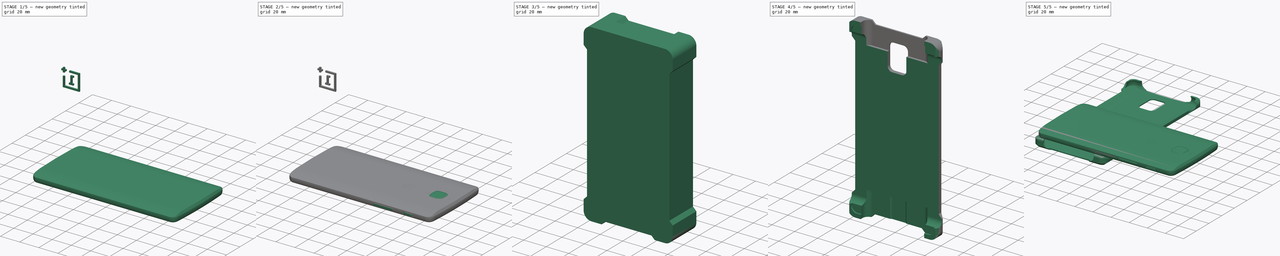
[diagram: build sequence overview — one tinted view per stage of 5, left to right]
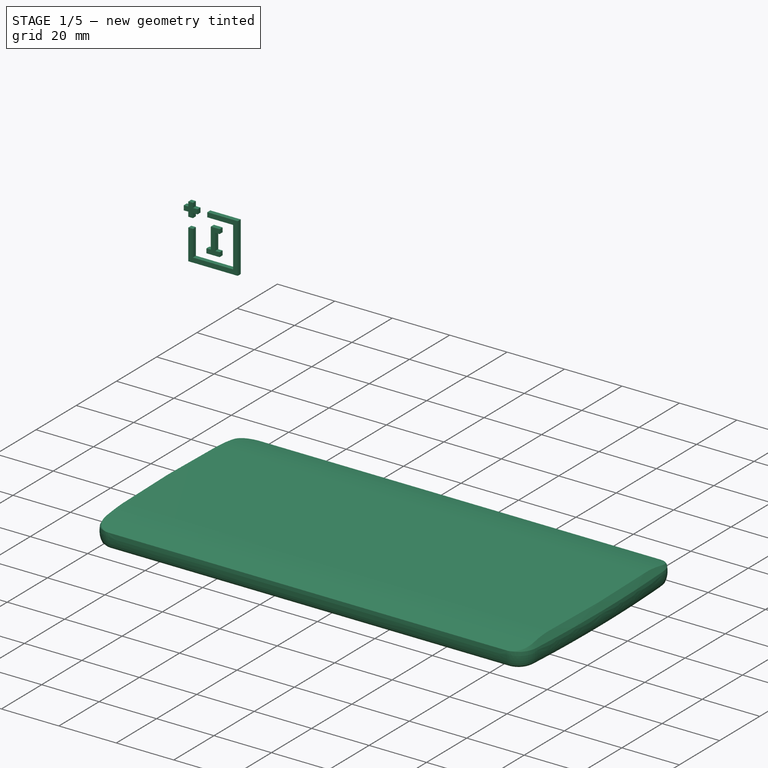
[diagram: stage 1 of 5 — iso view after this stage's code; geometry added in this stage tinted green]
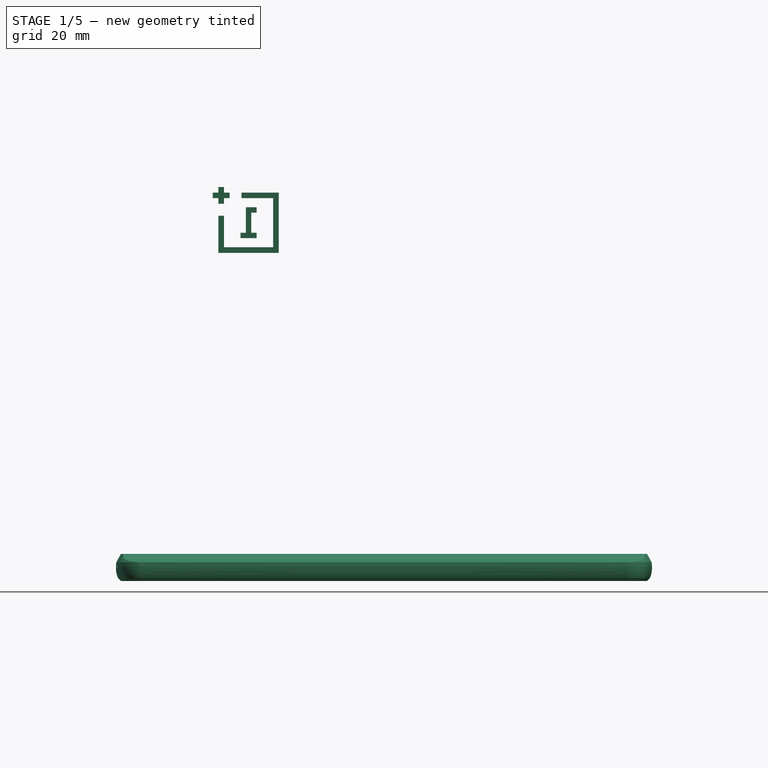
[diagram: stage 1 of 5 — front view after this stage's code; geometry added in this stage tinted green]
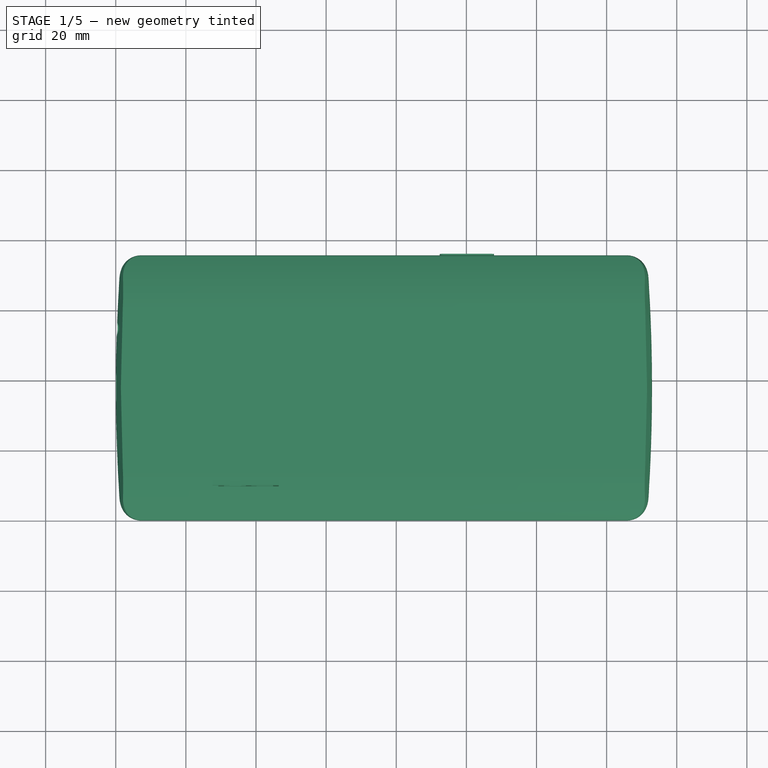
[diagram: stage 1 of 5 — top view after this stage's code; geometry added in this stage tinted green]
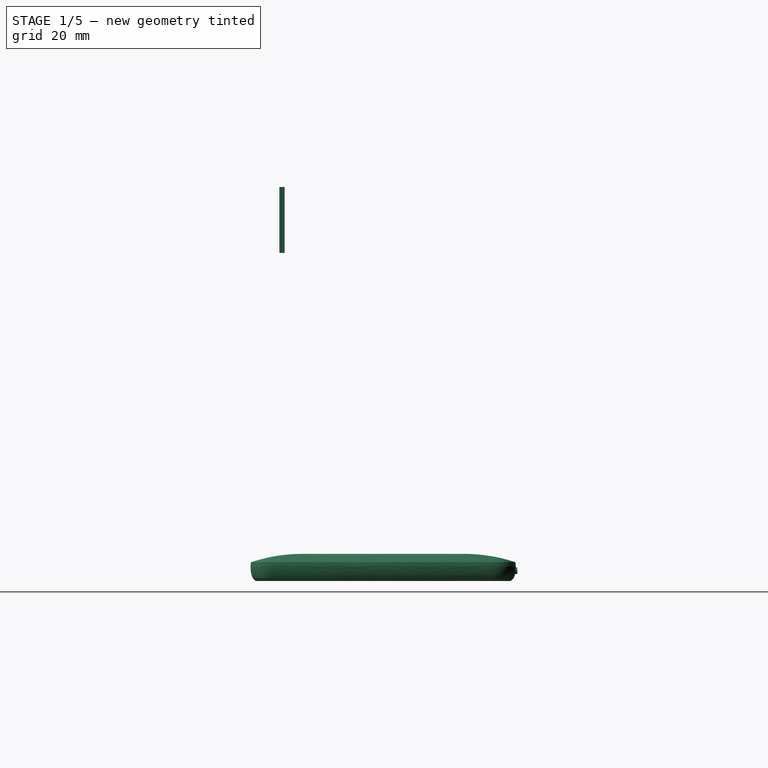
[diagram: stage 1 of 5 — right view after this stage's code; geometry added in this stage tinted green]
FCSTD DOCUMENT  (FreeCAD 0.17R13541 (Git))
Label: test108_op3
License: All rights reserved
LicenseURL: http://en.wikipedia.org/wiki/All_rights_reserved
objects: Sketcher::SketchObject×38, PartDesign::Plane×11, PartDesign::Pocket×11, Part::Extrusion×8, Part::Cut×7, PartDesign::Pad×6, PartDesign::SubtractivePipe×6, Part::FeaturePython×6, PartDesign::Chamfer×3, PartDesign::LinearPattern×2, Part::Feature×2, Spreadsheet::Sheet×1, PartDesign::Body×1, Part::MultiCommon×1, Part::Fillet×1, Part::Chamfer×1
note: 127 computed .brp shape members not serialized (recipe doc carries the construction recipe); baked Part::Feature solids carry a one-line shape summary decoded from their .brp

FEATURE [Sketcher::SketchObject] Sketch036
  Placement = pos=(0,0,0) rot=(0.57735,0.57735,0.57735;2.0944rad)
  sketch-geometry (12):
    g0: LineSegment StartX=0 StartY=0 StartZ=0 EndX=75.75 EndY=0 EndZ=0
    g1: LineSegment [constr] StartX=75.75 StartY=0 StartZ=0 EndX=75.75 EndY=7.75 EndZ=0
    g2: LineSegment [constr] StartX=0 StartY=7.75 StartZ=0 EndX=0 EndY=0 EndZ=0
    g3: LineSegment StartX=0 StartY=0 StartZ=0 EndX=5.8e-11 EndY=5.3 EndZ=0
    g4: LineSegment StartX=75.75 StartY=0 StartZ=0 EndX=75.75 EndY=5.3 EndZ=0
    g5: LineSegment [constr] StartX=5.8e-11 StartY=5.3 StartZ=0 EndX=75.75 EndY=5.3 EndZ=0
    g6: LineSegment [constr] StartX=0 StartY=7.75 StartZ=0 EndX=37.875 EndY=7.75 EndZ=0
    g7: LineSegment [constr] StartX=37.875 StartY=7.75 StartZ=0 EndX=75.75 EndY=7.75 EndZ=0
    g8: ArcOfCircle CenterX=14.7985 CenterY=-38.1682 CenterZ=0 NormalX=0 NormalY=0 NormalZ=1 AngleXU=0 Radius=45.9182 StartAngle=1.5708 EndAngle=1.89893
    g9: LineSegment StartX=14.7986 StartY=7.75 StartZ=0 EndX=37.875 EndY=7.75 EndZ=0
    g10: LineSegment StartX=37.875 StartY=7.75 StartZ=0 EndX=60.9514 EndY=7.75 EndZ=0
    g11: ArcOfCircle CenterX=60.9514 CenterY=-38.1684 CenterZ=0 NormalX=0 NormalY=0 NormalZ=1 AngleXU=0 Radius=45.9184 StartAngle=1.24266 EndAngle=1.5708
  constraints (34):
    c: Coincident(g0,g1)
    c: Coincident(g2,g0)
    c: Horizontal(g0)
    c: Vertical(g1)
    c: Vertical(g2)
    c: Coincident(g0,g-1)
    c: DistanceY(g1,g1) = 7.75
    c: Coincident(g3,g-1)
    c: PointOnObject(g3,g2)
    c: Coincident(g4,g0)
    c: PointOnObject(g4,g1)
    c: Distance(g3,g-1) = 5.3
    c: Coincident(g5,g3)
    c: Coincident(g5,g4)
    c: Horizontal(g5)
    c: DistanceX(g0,g0) = 75.75
    c: Coincident(g6,g2)
    c: Coincident(g7,g6)
    c: Coincident(g7,g1)
    c: Equal(g6,g7)
    c: Horizontal(g6)
    c: Coincident(g8,g3)
    c: Coincident(g9,g8)
    c: Coincident(g9,g6)
    c: Horizontal(g7)
    c: Tangent(g8,g9)
    c: Distance(g3,g8) = 15
    c: Horizontal(g9)
    c: Coincident(g10,g6)
    c: Horizontal(g10)
    c: Equal(g10,g9)
    c: Coincident(g11,g4)
    c: Coincident(g11,g10)
    c: Tangent(g11,g10)
FEATURE [Sketcher::SketchObject] Sketch038
  MapMode = 5
  Placement = pos=(0,0,0) rot=(0.57735,0.57735,-0.57735;2.0944rad)
  sketch-geometry (8):
    g0: LineSegment StartX=-3.5 StartY=0 StartZ=0 EndX=-7.75 EndY=0.74939 EndZ=0
    g1: LineSegment [constr] StartX=-7.75 StartY=0 StartZ=0 EndX=-6.69236 EndY=0 EndZ=0
    g2: LineSegment StartX=-7.75 StartY=0 StartZ=0 EndX=-7.75 EndY=0.74939 EndZ=0
    g3: LineSegment StartX=-7.75 StartY=0 StartZ=0 EndX=-3.5 EndY=0 EndZ=0
    g4: LineSegment StartX=-3.5 StartY=153 StartZ=0 EndX=-7.75 EndY=152.251 EndZ=0
    g5: LineSegment StartX=-7.75 StartY=152.251 StartZ=0 EndX=-7.75 EndY=153 EndZ=0
    g6: LineSegment [constr] StartX=-6.69236 StartY=153 StartZ=0 EndX=-7.75 EndY=153 EndZ=0
    g7: LineSegment StartX=-3.5 StartY=153 StartZ=0 EndX=-7.75 EndY=153 EndZ=0
  constraints (10):
    c: Coincident(g2,g1)
    c: Coincident(g2,g0)
    c: Vertical(g2)
    c: Coincident(g3,g1)
    c: Coincident(g3,g0)
    c: Coincident(g4,g5)
    c: Coincident(g5,g6)
    c: Vertical(g5)
    c: Coincident(g7,g4)
    c: Coincident(g7,g5)
FEATURE [Sketcher::SketchObject] Sketch039
  MapMode = 5
  Placement = pos=(0,0,0) rot=(0.707107,0.707107,0;3.14159rad)
  expr: Constraints[10] = Spreadsheet.Width
  expr: Constraints[9] = Spreadsheet.Length
  sketch-geometry (4):
    g0: LineSegment StartX=0 StartY=0 StartZ=0 EndX=75.75 EndY=0 EndZ=0
    g1: LineSegment StartX=75.75 StartY=0 StartZ=0 EndX=75.75 EndY=153 EndZ=0
    g2: LineSegment StartX=75.75 StartY=153 StartZ=0 EndX=0 EndY=153 EndZ=0
    g3: LineSegment StartX=0 StartY=153 StartZ=0 EndX=0 EndY=0 EndZ=0
  constraints (11):
    c: Coincident(g0,g1)
    c: Coincident(g1,g2)
    c: Coincident(g2,g3)
    c: Coincident(g3,g0)
    c: Horizontal(g0)
    c: Horizontal(g2)
    c: Vertical(g1)
    c: Vertical(g3)
    c: Coincident(g0,g-1)
    c: DistanceY(g1,g1) = 153
    c: DistanceX(g2,g2) = 75.75
FEATURE [Sketcher::SketchObject] Sketch037
  ExternalGeometry = -> [Sketch039,Sketch036]
  MapMode = 5
  Placement = pos=(0,0,0) rot=(0.707107,0.707107,0;3.14159rad)
  expr: Constraints[0] = Spreadsheet.BaseRound
  sketch-geometry (8):
    g0: ArcOfCircle CenterX=7 CenterY=7 CenterZ=0 NormalX=0 NormalY=0 NormalZ=1 AngleXU=0 Radius=7 StartAngle=3.1416 EndAngle=4.71239
    g1: ArcOfCircle CenterX=68.75 CenterY=7 CenterZ=0 NormalX=0 NormalY=0 NormalZ=1 AngleXU=0 Radius=7 StartAngle=4.71239 EndAngle=6.28318
    g2: ArcOfCircle CenterX=68.75 CenterY=146 CenterZ=0 NormalX=0 NormalY=0 NormalZ=1 AngleXU=0 Radius=7 StartAngle=3.05977e-06 EndAngle=1.57079
    g3: ArcOfCircle CenterX=7 CenterY=146 CenterZ=0 NormalX=0 NormalY=0 NormalZ=1 AngleXU=0 Radius=7 StartAngle=1.5708 EndAngle=3.14159
    g4: LineSegment StartX=6.99998 StartY=153 StartZ=0 EndX=68.75 EndY=153 EndZ=0
    g5: LineSegment StartX=75.75 StartY=146 StartZ=0 EndX=75.75 EndY=6.99998 EndZ=0
    g6: LineSegment StartX=68.75 StartY=3.3e-11 StartZ=0 EndX=6.99998 EndY=3.3e-11 EndZ=0
    g7: LineSegment StartX=3.3e-11 StartY=6.99998 StartZ=0 EndX=3.3e-11 EndY=146 EndZ=0
  constraints (28):
    c: Radius(g0) = 7
    c: PointOnObject(g0,g-1)
    c: PointOnObject(g0,g-2)
    c: PointOnObject(g2,g-5)
    c: PointOnObject(g3,g-6)
    c: Coincident(g4,g3)
    c: Coincident(g4,g2)
    c: Coincident(g5,g2)
    c: Coincident(g5,g1)
    c: Coincident(g6,g1)
    c: Coincident(g6,g0)
    c: Tangent(g6,g0)
    c: Coincident(g7,g0)
    c: Coincident(g7,g3)
    c: Tangent(g6,g1)
    c: Tangent(g5,g2)
    c: Tangent(g4,g3)
    c: Tangent(g7,g0)
    c: Horizontal(g6)
    c: Horizontal(g4)
    c: Vertical(g7)
    c: Vertical(g5)
    c: Equal(g1,g0)
    c: Equal(g3,g2)
    c: Equal(g3,g0)
    c: Tangent(g2,g4)
    c: Tangent(g3,g7)
    c: Tangent(g1,g5)
FEATURE [PartDesign::Plane] DatumPlane003
  MapMode = 2
  Placement = pos=(0,0,0) rot=(0.707107,0.707107,0;3.14159rad)
  Support = -> [Sketch039]
FEATURE [PartDesign::Plane] DatumPlane004
  MapMode = 2
  Placement = pos=(0,0,0) rot=(0.57735,-0.57735,-0.57735;2.0944rad)
  Support = -> [Sketch036]
FEATURE [PartDesign::Plane] DatumPlane005
  MapMode = 45
  Placement = pos=(3.3e-11,37.875,0) rot=(0,0.707107,0.707107;3.14159rad)
  Support = -> [Sketch037]
FEATURE [Sketcher::SketchObject] Sketch040
  ExternalGeometry = -> [Sketch036]
  MapMode = 5
  Placement = pos=(3.3e-11,37.875,0) rot=(0,0.707107,0.707107;3.14159rad)
  Support = -> [DatumPlane005]
  sketch-geometry (35):
    g0: LineSegment [constr] StartX=0 StartY=1.5 StartZ=0 EndX=0 EndY=0 EndZ=0
    g1: LineSegment [constr] StartX=0 StartY=0 StartZ=0 EndX=-1.5 EndY=0 EndZ=0
    g2: LineSegment [constr] StartX=0 StartY=1.5 StartZ=0 EndX=-1.5 EndY=0 EndZ=0
    g3-g6: Circle [constr] x4 (B-spline internal-alignment scaffolding for g7; pole/knot coordinates omitted)
    g7: BSplineCurve [constr] PolesCount=4 KnotsCount=2 Degree=3 IsPeriodic=0
    g8: GeomPoint [constr] X=-1.09685 Y=7.75 Z=0
    g9: GeomPoint [constr] X=-0.692588 Y=0.807412 Z=0
    g10: LineSegment [constr] StartX=-1.5 StartY=0 StartZ=0 EndX=-3.65347 EndY=0 EndZ=0
    g11: LineSegment [constr] StartX=-3.65347 StartY=0 StartZ=0 EndX=-3.65347 EndY=7.75 EndZ=0
    g12: LineSegment [constr] StartX=-3.65347 StartY=7.75 StartZ=0 EndX=-1.09685 EndY=7.75 EndZ=0
    g13: LineSegment StartX=3.70023 StartY=-1.29107 StartZ=0 EndX=3.70023 EndY=8.64985 EndZ=0
    g14: LineSegment [constr] StartX=-1.09685 StartY=7.75 StartZ=0 EndX=-1.09685 EndY=8.64985 EndZ=0
    g15: LineSegment StartX=-1.09685 StartY=8.64985 StartZ=0 EndX=3.70023 EndY=8.64985 EndZ=0
    g16: LineSegment StartX=-1.7353 StartY=-1.29107 StartZ=0 EndX=3.70023 EndY=-1.29107 EndZ=0
    g17: LineSegment StartX=-0.692588 StartY=0.807412 StartZ=0 EndX=-1.05094 EndY=0.449059 EndZ=0
    g18: LineSegment StartX=-1.05094 StartY=0.449059 StartZ=0 EndX=-1.13767 EndY=0.449059 EndZ=0
    g19: LineSegment StartX=-1.13767 StartY=0.449059 StartZ=0 EndX=-1.13767 EndY=0.362329 EndZ=0
    g20: LineSegment StartX=-1.13767 StartY=0.362329 StartZ=0 EndX=-1.31031 EndY=0.189687 EndZ=0
    g21: LineSegment StartX=-1.31031 StartY=0.189687 StartZ=0 EndX=-1.33362 EndY=0.189687 EndZ=0
    g22: LineSegment StartX=-1.33362 StartY=0.189687 StartZ=0 EndX=-1.33362 EndY=0.166384 EndZ=0
    g23: ArcOfCircle CenterX=-1.7353 CenterY=0.568071 CenterZ=0 NormalX=0 NormalY=0 NormalZ=1 AngleXU=0 Radius=0.568071 StartAngle=4.71239 EndAngle=5.49779
    g24: LineSegment StartX=-1.7353 StartY=0 StartZ=0 EndX=-1.7353 EndY=-1.29107 EndZ=0
    g25-g28: Circle [constr] x4 (B-spline internal-alignment scaffolding for g29; pole/knot coordinates omitted)
    g29: BSplineCurve PolesCount=4 KnotsCount=2 Degree=3 IsPeriodic=0
    g30: GeomPoint [constr] X=-0.692588 Y=0.807412 Z=0
    g31: GeomPoint [constr] X=-0.177275 Y=5.40587 Z=0
    g32: LineSegment StartX=-1.09685 StartY=8.64985 StartZ=0 EndX=-1.46249 EndY=8.64985 EndZ=0
    g33: LineSegment StartX=-1.46249 StartY=8.64985 StartZ=0 EndX=-1.46249 EndY=7.75 EndZ=0
    g34: LineSegment StartX=-0.177275 StartY=5.40587 StartZ=0 EndX=-1.46249 EndY=7.75 EndZ=0
  constraints (66):
    c: Distance(g0) = 1.5
    c: PointOnObject(g0,g-2)
    c: Horizontal(g1)
    c: Equal(g1,g0)
    c: Coincident(g2,g1)
    c: Coincident(g1,g0)
    c: Radius(g3) = 0.4
    c: PointOnObject(g6,g2)
    c: InternalAlignment(g3-g6 -> g7) x4
    c: InternalAlignment(g8,g7)
    c: InternalAlignment(g9,g7)
    c: Coincident(g1,g10)
    c: Horizontal(g10)
    c: Coincident(g10,g11)
    c: Vertical(g11)
    c: Coincident(g11,g12)
    c: Horizontal(g12)
    c: Coincident(g2,g0)
    c: PointOnObject(g0,g-2)
    c: Coincident(g0,g-1)
    c: Distance(g11) = 7.75
    c: Coincident(g3,g12)
    c: Vertical(g13)
    c: Coincident(g14,g3)
    c: Vertical(g14)
    c: Coincident(g14,g15)
    c: Coincident(g15,g13)
    c: Horizontal(g15)
    c: Coincident(g16,g13)
    c: Horizontal(g16)
    c: Coincident(g17,g6)
    c: PointOnObject(g17,g2)
    c: Coincident(g17,g18)
    c: Horizontal(g18)
    c: Coincident(g18,g19)
    c: PointOnObject(g19,g2)
    c: Vertical(g19)
    c: Coincident(g19,g20)
    c: PointOnObject(g20,g2)
    c: Coincident(g20,g21)
    c: Horizontal(g21)
    c: Coincident(g21,g22)
    c: PointOnObject(g22,g2)
    c: Vertical(g22)
    c: Coincident(g23,g22)
    c: PointOnObject(g23,g10)
    c: Coincident(g24,g23)
    c: Vertical(g24)
    c: Coincident(g16,g24)
    c: Tangent(g10,g23)
    c: Tangent(g2,g23)
    c: Coincident(g25,g6)
    c: Radius(g25) = 0.4
    c: Equal(g25,g26)
    c: Equal(g25,g27)
    c: Equal(g25,g28)
    c: InternalAlignment(g25-g28 -> g29) x4
    c: InternalAlignment(g30,g29)
    c: InternalAlignment(g31,g29)
    c: Coincident(g32,g14)
    c: Horizontal(g32)
    c: Coincident(g33,g32)
    c: PointOnObject(g33,g12)
    c: Vertical(g33)
    c: Coincident(g34,g28)
    c: Coincident(g34,g33)
FEATURE [Sketcher::SketchObject] Sketch
  ExternalGeometry = -> [Sketch037]
  MapMode = 5
  Placement = pos=(0,0,0) rot=(0.707107,0.707107,0;3.14159rad)
  Support = -> [DatumPlane003]
  expr: Constraints[137] = Spreadsheet.Length1
  expr: Constraints[138] = Spreadsheet.Length2
  expr: Constraints[106] = Spreadsheet.Length1
  expr: Constraints[107] = Spreadsheet.Length2
  expr: Constraints[67] = Spreadsheet.Length1
  expr: Constraints[51] = Spreadsheet.Length2
  expr: Constraints[122] = Spreadsheet.SmallRound
  expr: Constraints[17] = Spreadsheet.SmallRound
  expr: Constraints[68] = Spreadsheet.Length2
  expr: Constraints[89] = Spreadsheet.SmallRound
  expr: Constraints[50] = Spreadsheet.Length1
  expr: Constraints[36] = Spreadsheet.SmallRound
  sketch-geometry (68):
    g0: ArcOfCircle [constr] CenterX=7 CenterY=7 CenterZ=0 NormalX=0 NormalY=0 NormalZ=1 AngleXU=0 Radius=6.60217 StartAngle=3.1416 EndAngle=4.68677
    g1: GeomPoint X=37.875 Y=3.3e-11 Z=0
    g2: Circle [constr] CenterX=6.83087 CenterY=0.4 CenterZ=0 NormalX=0 NormalY=0 NormalZ=1 AngleXU=0 Radius=3
    g3: Circle [constr] CenterX=22.4375 CenterY=3.3e-11 CenterZ=0 NormalX=0 NormalY=0 NormalZ=1 AngleXU=0 Radius=3
    g4: Circle [constr] CenterX=37.875 CenterY=3.3e-11 CenterZ=0 NormalX=0 NormalY=0 NormalZ=1 AngleXU=0 Radius=3
    g5: BSplineCurve PolesCount=3 KnotsCount=2 Degree=2 IsPeriodic=0
    g6: GeomPoint [constr] X=6.83087 Y=0.4 Z=0
    g7: GeomPoint [constr] X=37.875 Y=3.3e-11 Z=0
    g8: LineSegment [constr] StartX=3.3e-11 StartY=6.99998 StartZ=0 EndX=7 EndY=7 EndZ=0
    g9: LineSegment [constr] StartX=6.83087 StartY=0.4 StartZ=0 EndX=22.4375 EndY=3.3e-11 EndZ=0
    g10: Circle [constr] CenterX=37.875 CenterY=3.3e-11 CenterZ=0 NormalX=0 NormalY=0 NormalZ=1 AngleXU=0 Radius=2
    g11: Circle [constr] CenterX=53.3125 CenterY=3.3e-11 CenterZ=0 NormalX=0 NormalY=0 NormalZ=1 AngleXU=0 Radius=2
    g12: Circle [constr] CenterX=68.9191 CenterY=0.4 CenterZ=0 NormalX=0 NormalY=0 NormalZ=1 AngleXU=0 Radius=2
    g13: BSplineCurve PolesCount=3 KnotsCount=2 Degree=2 IsPeriodic=0
    g14: GeomPoint [constr] X=37.875 Y=3.3e-11 Z=0
    g15: GeomPoint [constr] X=68.9191 Y=0.4 Z=0
    g16: ArcOfCircle [constr] CenterX=68.75 CenterY=7 CenterZ=0 NormalX=0 NormalY=0 NormalZ=1 AngleXU=0 Radius=6.60217 StartAngle=4.73801 EndAngle=6.28318
    g17: LineSegment [constr] StartX=68.75 StartY=7 StartZ=0 EndX=75.75 EndY=6.99998 EndZ=0
    g18: LineSegment [constr] StartX=68.9191 StartY=0.4 StartZ=0 EndX=53.3125 EndY=3.3e-11 EndZ=0
    g19-g22: Circle [constr] x4 (B-spline internal-alignment scaffolding for g23; pole/knot coordinates omitted)
    g23: BSplineCurve PolesCount=4 KnotsCount=2 Degree=3 IsPeriodic=0
    g24: GeomPoint [constr] X=6.83087 Y=0.4 Z=0
    g25: GeomPoint [constr] X=3.3e-11 Y=6.99998 Z=0
    g26-g29: Circle [constr] x4 (B-spline internal-alignment scaffolding for g30; pole/knot coordinates omitted)
    g30: BSplineCurve PolesCount=4 KnotsCount=2 Degree=3 IsPeriodic=0
    g31: GeomPoint [constr] X=68.9191 Y=0.4 Z=0
    g32: GeomPoint [constr] X=75.75 Y=6.99998 Z=0
    g33: GeomPoint X=75.75 Y=0 Z=0
    g34: LineSegment StartX=3.3e-11 StartY=6.99998 StartZ=0 EndX=3.3e-11 EndY=146 EndZ=0
    g35: LineSegment StartX=75.75 StartY=6.99998 StartZ=0 EndX=75.75 EndY=146 EndZ=0
    g36: ArcOfCircle [constr] CenterX=7 CenterY=146 CenterZ=0 NormalX=0 NormalY=0 NormalZ=1 AngleXU=0 Radius=6.60217 StartAngle=1.59642 EndAngle=3.14159
    g37: ArcOfCircle [constr] CenterX=68.75 CenterY=146 CenterZ=0 NormalX=0 NormalY=0 NormalZ=1 AngleXU=0 Radius=6.60217 StartAngle=3.05977e-06 EndAngle=1.54518
    g38: Circle [constr] CenterX=37.875 CenterY=153 CenterZ=0 NormalX=0 NormalY=0 NormalZ=1 AngleXU=0 Radius=3
    g39: Circle [constr] CenterX=22.4375 CenterY=153 CenterZ=0 NormalX=0 NormalY=0 NormalZ=1 AngleXU=0 Radius=3
    g40: Circle [constr] CenterX=6.83084 CenterY=152.6 CenterZ=0 NormalX=0 NormalY=0 NormalZ=1 AngleXU=0 Radius=3
    g41: BSplineCurve PolesCount=3 KnotsCount=2 Degree=2 IsPeriodic=0
    g42: GeomPoint [constr] X=37.875 Y=153 Z=0
    g43: GeomPoint [constr] X=6.83084 Y=152.6 Z=0
    g44: LineSegment [constr] StartX=6.83084 StartY=152.6 StartZ=0 EndX=22.4375 EndY=153 EndZ=0
    g45-g48: Circle [constr] x4 (B-spline internal-alignment scaffolding for g49; pole/knot coordinates omitted)
    g49: BSplineCurve PolesCount=4 KnotsCount=2 Degree=3 IsPeriodic=0
    g50: GeomPoint [constr] X=6.83084 Y=152.6 Z=0
    g51: GeomPoint [constr] X=3.3e-11 Y=146 Z=0
    g52: LineSegment [constr] StartX=68.9191 StartY=152.6 StartZ=0 EndX=53.3125 EndY=153 EndZ=0
    g53: Circle [constr] CenterX=68.9191 CenterY=152.6 CenterZ=0 NormalX=0 NormalY=0 NormalZ=1 AngleXU=0 Radius=3
    g54: Circle [constr] CenterX=53.3125 CenterY=153 CenterZ=0 NormalX=0 NormalY=0 NormalZ=1 AngleXU=0 Radius=3
    g55: Circle [constr] CenterX=37.875 CenterY=153 CenterZ=0 NormalX=0 NormalY=0 NormalZ=1 AngleXU=0 Radius=3
    g56: BSplineCurve PolesCount=3 KnotsCount=2 Degree=2 IsPeriodic=0
    g57: GeomPoint [constr] X=68.9191 Y=152.6 Z=0
    g58: GeomPoint [constr] X=37.875 Y=153 Z=0
    g59-g62: Circle [constr] x4 (B-spline internal-alignment scaffolding for g63; pole/knot coordinates omitted)
    g63: BSplineCurve PolesCount=4 KnotsCount=2 Degree=3 IsPeriodic=0
    g64: GeomPoint [constr] X=68.9191 Y=152.6 Z=0
    g65: GeomPoint [constr] X=75.75 Y=146 Z=0
    g66: LineSegment [constr] StartX=75.75 StartY=146 StartZ=0 EndX=68.75 EndY=146 EndZ=0
    g67: LineSegment [constr] StartX=7 StartY=146 StartZ=0 EndX=3.3e-11 EndY=146 EndZ=0
  constraints (135):
    c: Coincident(g0,g-4)
    c: Symmetric(g-4,g-3,g1)
    c: Coincident(g2,g0)
    c: Radius(g2) = 3
    c: Equal(g2,g3)
    c: Equal(g2,g4)
    c: Coincident(g4,g1)
    c: InternalAlignment(g2,g5)
    c: InternalAlignment(g3,g5)
    c: InternalAlignment(g4,g5)
    c: InternalAlignment(g6,g5)
    c: InternalAlignment(g7,g5)
    c: PointOnObject(g0,g8)
    c: Symmetric(g-7,g1,g3)
    c: Coincident(g9,g0)
    c: Tangent(g9,g0)
    c: Coincident(g9,g3)
    c: DistanceY(g-7,g0) = 0.4
    c: Coincident(g10,g1)
    c: Radius(g10) = 2
    c: Equal(g10,g11)
    c: Equal(g10,g12)
    c: InternalAlignment(g10,g13)
    c: InternalAlignment(g11,g13)
    c: InternalAlignment(g12,g13)
    c: InternalAlignment(g14,g13)
    c: InternalAlignment(g15,g13)
    c: Coincident(g16,g-3)
    c: Coincident(g17,g16)
    c: Coincident(g17,g-3)
    c: PointOnObject(g16,g17)
    c: Coincident(g18,g16)
    c: Coincident(g12,g16)
    c: Symmetric(g-7,g1,g11)
    c: Coincident(g18,g11)
    c: Tangent(g16,g18)
    c: DistanceY(g-7,g12) = 0.4
    c: Coincident(g19,g0)
    c: Radius(g19) = 0.4
    c: Equal(g19,g20)
    c: Equal(g19,g21)
    c: Equal(g19,g22)
    c: Coincident(g22,g8)
    c: InternalAlignment(g19-g22 -> g23) x4
    c: InternalAlignment(g24,g23)
    c: InternalAlignment(g25,g23)
    c: PointOnObject(g21,g-8)
    c: DistanceX(g-1,g20) = 1
    c: DistanceY(g21,g8) = 1.5
    c: Coincident(g26,g12)
    c: Radius(g26) = 0.6
    c: Equal(g26,g27)
    c: Equal(g26,g28)
    c: Equal(g26,g29)
    c: Coincident(g29,g17)
    c: InternalAlignment(g26-g29 -> g30) x4
    c: InternalAlignment(g31,g30)
    c: InternalAlignment(g32,g30)
    c: PointOnObject(g28,g-9)
    c: PointOnObject(g33,g-1)
    c: PointOnObject(g33,g-9)
    c: DistanceX(g27,g33) = 1
    c: DistanceY(g28,g17) = 1.5
    c: Coincident(g34,g8)
    c: Coincident(g35,g17)
    c: Coincident(g36,g-5)
    c: Coincident(g37,g-6)
    c: Coincident(g35,g-9)
    c: Coincident(g34,g-8)
    c: Radius(g38) = 3
    c: Equal(g38,g39)
    c: Equal(g38,g40)
    c: Coincident(g40,g36)
    c: InternalAlignment(g38,g41)
    c: InternalAlignment(g39,g41)
    c: InternalAlignment(g40,g41)
    c: InternalAlignment(g42,g41)
    c: InternalAlignment(g43,g41)
    c: Symmetric(g-10,g-10,g38)
    c: Symmetric(g-10,g38,g39)
    c: Coincident(g44,g36)
    c: Coincident(g44,g39)
    c: Tangent(g36,g44,g36) = 1.5708
    c: DistanceY(g36,g-10) = 0.4
    c: Coincident(g45,g36)
    c: Radius(g45) = 0.6
    c: Equal(g45,g46)
    c: Equal(g45,g47)
    c: Equal(g45,g48)
    c: Coincident(g48,g34)
    c: InternalAlignment(g45-g48 -> g49) x4
    c: InternalAlignment(g50,g49)
    c: InternalAlignment(g51,g49)
    c: PointOnObject(g47,g34)
    c: PointOnObject(g46,g44)
    c: PointOnObject(g27,g18)
    c: PointOnObject(g20,g9)
    c: Distance(g46,g-2) = 1
    c: DistanceY(g34,g47) = 1.5
    c: Coincident(g52,g37)
    c: Tangent(g37,g52)
    c: Coincident(g53,g37)
    c: Radius(g53) = 3
    c: Equal(g53,g54)
    c: Equal(g53,g55)
    c: Coincident(g55,g38)
    c: InternalAlignment(g53,g56)
    c: InternalAlignment(g54,g56)
    c: InternalAlignment(g55,g56)
    c: InternalAlignment(g57,g56)
    c: InternalAlignment(g58,g56)
    c: Symmetric(g-10,g38,g54)
    c: Coincident(g52,g54)
    c: DistanceY(g37,g-10) = 0.4
    c: Coincident(g59,g37)
    c: Radius(g59) = 0.5
    c: Equal(g59,g60)
    c: Equal(g59,g61)
    c: Equal(g59,g62)
    c: Coincident(g62,g35)
    c: InternalAlignment(g59-g62 -> g63) x4
    c: InternalAlignment(g64,g63)
    c: InternalAlignment(g65,g63)
    c: PointOnObject(g61,g35)
    c: PointOnObject(g60,g52)
    c: DistanceX(g60,g35) = 1
    c: DistanceY(g35,g61) = 1.5
    c: Coincident(g66,g35)
    c: Coincident(g66,g37)
    c: PointOnObject(g37,g66)
    c: Coincident(g67,g36)
    c: Coincident(g67,g34)
    c: PointOnObject(g36,g67)
    c: Coincident(g8,g-4)
    c: Coincident(g8,g0)
FEATURE [Spreadsheet::Sheet] Spreadsheet
  cells = A1=Rounding; B1=Sketch; D1=Phone; E1=Sketch039; G1=UsbHole; H1=Sketch043; J1=Headphone; K1=Sketch044; M1=SideSpeaker; N1=Sketch045; P1=SideMic; Q1=Sketch046; S1=PowerButton; T1=Sketch047; V1=SimSlot; W1=Sketch048; Y1=SimKey; Z1=Sketch049; AB1=Volume; AC1=Sketch050; AE1=Alert; AF1=Sketch051-055; AH1=MicBack; AI1=Sketch056; AK1=Camera; AN1=Flash; AQ1=Oplogo; AT1=HomeButton; AW1=FrontSpeaker; A2="SmallRound"; B2(SmallRound)=0.40000000000000002; D2="Length"; E2(Length)=153; G2="UsbHoleTop"; H2(UsbHoleTop)=2.9500000000000002; J2="HeadphoneTop"; K2(HeadphoneTop)=2.2000000000000002; M2="SideSpeakerRight"; N2(SideSpeakerRight)=14.4; P2="SideMicTop"; Q2(SideMicTop)=4; S2="PowerButtonRight"; T2(PowerButtonRight)=47; V2="SimSlotRight"; W2(SimSlotRight)=21.100000000000001; Y2="SimKeyRight"; Z2(SimKeyRight)==W2 + AA2; AA2=17.300000000000001; AB2="VolumeLeft"; AC2(VolumeLeft)=40.700000000000003; AE2="AlertLeft"; AF2(AlertLeft)=19.699999999999999; AH2="MicBackTop"; AI2(MicBackTop)=7.0999999999999996; AK2="CameraTop"; AL2(CameraTop)==AI2 + AM2; AM2=5.4000000000000004; AN2="FlashTop"; AO2(FlashTop)==AL2 + AP2; AP2=16; AQ2="OplogoLineWidth"; AR2(OplogoLineWidth)=0.80000000000000004; AT2="HomeButtonBot"; AU2(HomeButtonBot)=5.0999999999999996; AW2="FrontSpeakerTop"; AX2(FrontSpeakerTop)=6; A3="Length1"; B3(Length1)=1; D3="Width"; E3(Width)=75.75; G3="UsbHoleHeight"; H3(UsbHoleHeight)=2.5; J3="HeadphoneLeft"; K3(HeadphoneLeft)=19.100000000000001; M3="SideSpeakerD"; N3(SideSpeakerD)=1.5; P3="SideMicLeft"; Q3(SideMicLeft)=26; S3="PowerButtonTop"; T3(PowerButtonTop)=2; V3="SimSlotTop"; W3(SimSlotTop)=1.8999999999999999; Y3="SimKeyD"; Z3(SimKeyD)=1.1000000000000001; AB3="VolumeTop"; AC3(VolumeTop)=2; AE3="AlertTop"; AF3(AlertTop)=2; AH3="MicBackD"; AI3(MicBackD)=0.90000000000000002; AK3="CameraSide"; AL3(CameraSide)=14; AN3="FlashSide"; AO3(FlashSide)=3.3999999999999999; AQ3="OplogoOneTop"; AR3(OplogoOneTop)=1.3; AT3="HomeButtonHeight"; AU3(HomeButtonHeight)=6.7999999999999998; AW3="FrontSpeakerHeight"; AX3(FrontSpeakerHeight)=1.2; A4="Length2"; B4(Length2)=1.5; G4="UsbHoleWidth"; H4(UsbHoleWidth)=8.5999999999999996; J4="HeadphoneD"; K4(HeadphoneD)=4; M4="SideSpeakerLength"; N4(SideSpeakerLength)=12; P4="SideMicD"; Q4(SideMicD)=1.2; S4="PowerButtonLength"; T4(PowerButtonLength)=11.699999999999999; V4="SimSlotLength"; W4(SimSlotLength)=16.800000000000001; Y4="SimKeyDepth"; Z4(SimKeyDepth)=8; AB4="VolumeLength"; AC4(VolumeLength)=20.199999999999999; AE4="AlertHoleLength"; AF4(AlertHoleLength)=11.25; AH4="MicBackDepth"; AI4(MicBackDepth)=0.29999999999999999; AK4="CameraHeightOuter"; AL4(CameraHeightOuter)=0.90000000000000002; AN4="FlashHeight"; AO4(FlashHeight)=0.10000000000000001; AQ4="OplogoOneLeft"; AR4(OplogoOneLeft)=2.3500000000000001; AT4="HomeButtonWidth"; AU4(HomeButtonWidth)=13.4; AW4="FrontSpeakerWidth"; AX4(FrontSpeakerWidth)=11; A5="BaseRound"; B5(BaseRound)=7; G5="UsbHoleDepth"; H5(UsbHoleDepth)=7; J5="HeadphoneDepth"; K5(HeadphoneDepth)=14; M5="SideSpeakerDepth"; N5(SideSpeakerDepth)=4; P5="SideMicDepth"; Q5(SideMicDepth)=1; S5="PowerButtonWidth"; T5(PowerButtonWidth)=1.8999999999999999; V5="SimSlotHeight"; W5(SimSlotHeight)=1.8999999999999999; Y5="SimKeyChamfer"; Z5(SimKeyChamfer)=0.10000000000000001; AB5="VolumeWidth"; AC5(VolumeWidth)=1.8999999999999999; AE5="AlertHoleWidth"; AF5(AlertHoleWidth)=1.8500000000000001; AK5="CameraHeightInner"; AL5(CameraHeightInner)==AL4 - AM5; AM5=0.20000000000000001; AN5="FlashSplineSteep"; AO5(FlashSplineSteep)=1; AQ5="OplogoSide"; AR5(OplogoSide)=8.5999999999999996; AW5="FrontspeakerDepth"; AX5(FrontspeakerDepth)=0.20000000000000001; G6="UsbHoleChamfer"; H6(UsbHoleChamfer)=0.20000000000000001; J6="HeadphoneChamfer"; K6(HeadphoneChamfer)=0.20000000000000001; M6="SideSpeakerTop"; N6(SideSpeakerTop)=3.7000000000000002; S6="PowerButtonDepth"; T6(PowerButtonDepth)=0.80000000000000004; V6="SimSlotDepth"; W6(SimSlotDepth)=2; AB6="VolumeDepth"; AC6(VolumeDepth)=0.80000000000000004; AE6="AlertWidth"; AF6(AlertWidth)=1.8; AK6="CameraSideOut"; AL6(CameraSideOut)=12.5; AN6="FlashSplineStrength"; AO6(FlashSplineStrength)=4; AQ6="OplogoGap"; AR6(OplogoGap)=1.7; AT6="HomeButtonDepth"; AU6(HomeButtonDepth)=0.45000000000000001; AW6="FrontSpeakerGap"; AX6(FrontSpeakerGap)=0.20000000000000001; M7="SideSpeakerChamfer"; N7(SideSpeakerChamfer)=0.20000000000000001; S7="PowerButtonChamfer"; T7(PowerButtonChamfer)=0.29999999999999999; V7="SimSlotThickness"; W7(SimSlotThickness)=0.10000000000000001; AB7="VolumeChamfer"; AC7(VolumeChamfer)=0.29999999999999999; AE7="AlertHoleDepth"; AF7(AlertHoleDepth)=0.59999999999999998; AK7="CameraBrim"; AL7(CameraBrim)=0.29999999999999999; AQ7="OplogoTop"; AR7(OplogoTop)==CameraTop + AS7; AS7=34; +19 more cells
FEATURE [PartDesign::Pad] Pad
  Length = 153
  Length2 = 100
  Placement = pos=(0,0,0) rot=(0.57735,0.57735,0.57735;2.0944rad)
  Profile = -> Sketch036
  Type = 0
  expr: Length = Spreadsheet.Length
FEATURE [PartDesign::SubtractivePipe] SubtractivePipe  label="BaseShape"
  AuxilleryCurvelinear = true
  AuxillerySpineTangent = false
  BaseFeature = -> Pad
  Binormal = (0,0,0)
  Mode = 0
  Placement = pos=(0,0,0) rot=(0.57735,0.57735,0.57735;2.0944rad)
  Profile = -> Sketch040
  Refine = true
  Spine = -> Sketch
  SpineTangent = false
  Transformation = 0
  Transition = 0
FEATURE [Sketcher::SketchObject] Sketch043
  ExternalGeometry = -> [Sketch036]
  MapMode = 5
  Placement = pos=(0,0,0) rot=(0.57735,-0.57735,-0.57735;2.0944rad)
  Support = -> [DatumPlane004]
  expr: Constraints[10] = Spreadsheet.UsbHoleHeight
  expr: Constraints[17] = Spreadsheet.UsbHoleWidth
  expr: Constraints[9] = Spreadsheet.UsbHoleTop
  sketch-geometry (8):
    g0: ArcOfCircle CenterX=-40.925 CenterY=4.2 CenterZ=0 NormalX=0 NormalY=0 NormalZ=1 AngleXU=0 Radius=1.25 StartAngle=1.5708 EndAngle=4.71239
    g1: ArcOfCircle CenterX=-34.825 CenterY=4.2 CenterZ=0 NormalX=0 NormalY=0 NormalZ=1 AngleXU=0 Radius=1.25 StartAngle=4.71239 EndAngle=7.85398
    g2: LineSegment StartX=-40.925 StartY=2.95 StartZ=0 EndX=-34.825 EndY=2.95 EndZ=0
    g3: LineSegment StartX=-40.925 StartY=5.45 StartZ=0 EndX=-34.825 EndY=5.45 EndZ=0
    g4: LineSegment [constr] StartX=-37.875 StartY=7.75 StartZ=0 EndX=-37.875 EndY=0 EndZ=0
    g5: GeomPoint X=-42.175 Y=4.2 Z=0
    g6: GeomPoint X=-33.575 Y=4.2 Z=0
    g7: LineSegment [constr] StartX=-40.925 StartY=4.2 StartZ=0 EndX=-34.825 EndY=4.2 EndZ=0
  constraints (19):
    c: Tangent(g0,g3) = 1.5708
    c: Tangent(g0,g2) = -1.5708
    c: Tangent(g2,g1) = -1.5708
    c: Tangent(g3,g1) = 1.5708
    c: Horizontal(g2)
    c: Equal(g0,g1)
    c: Coincident(g4,g-3)
    c: Vertical(g4)
    c: Symmetric(g0,g1,g4)
    c: Distance(g1,g-1) = 2.95
    c: Distance(g1,g1) = 2.5
    c: PointOnObject(g5,g0)
    c: PointOnObject(g6,g1)
    c: Coincident(g7,g0)
    c: Coincident(g7,g1)
    c: PointOnObject(g6,g7)
    c: PointOnObject(g5,g7)
    c: Distance(g5,g6) = 8.6
    c: PointOnObject(g4,g-1)
FEATURE [PartDesign::Pocket] Pocket
  BaseFeature = -> SubtractivePipe
  Length = 7
  Length2 = 100
  Placement = pos=(0,0,0) rot=(0.57735,0.57735,0.57735;2.0944rad)
  Profile = -> Sketch043
  Type = 0
  expr: Length = Spreadsheet.UsbHoleDepth
FEATURE [Sketcher::SketchObject] Sketch044
  ExternalGeometry = -> [Sketch036]
  MapMode = 5
  Placement = pos=(0,0,0) rot=(0.57735,-0.57735,-0.57735;2.0944rad)
  Support = -> [DatumPlane004]
  expr: Constraints[8] = 1 / 2 * Spreadsheet.HeadphoneD
  expr: Constraints[7] = Spreadsheet.HeadphoneTop
  expr: Constraints[5] = Spreadsheet.HeadphoneLeft
  sketch-geometry (3):
    g0: Circle CenterX=-54.65 CenterY=4.2 CenterZ=0 NormalX=0 NormalY=0 NormalZ=1 AngleXU=0 Radius=2
    g1: LineSegment [constr] StartX=-54.65 StartY=4.2 StartZ=0 EndX=-56.65 EndY=4.2 EndZ=0
    g2: LineSegment [constr] StartX=-54.65 StartY=4.2 StartZ=0 EndX=-54.65 EndY=2.2 EndZ=0
  constraints (9):
    c: Coincident(g1,g0)
    c: Coincident(g2,g0)
    c: Vertical(g2)
    c: PointOnObject(g2,g0)
    c: PointOnObject(g1,g0)
    c: DistanceX(g-3,g1) = 19.1
    c: Horizontal(g1)
    c: DistanceY(g-3,g2) = 2.2
    c: Radius(g0) = 2
FEATURE [Sketcher::SketchObject] Sketch045
  MapMode = 5
  Placement = pos=(0,0,0) rot=(0.57735,-0.57735,-0.57735;2.0944rad)
  Support = -> [DatumPlane004]
  expr: Constraints[7] = 0.5 * Spreadsheet.SideSpeakerD
  expr: Constraints[6] = Spreadsheet.SideSpeakerTop
  expr: Constraints[5] = Spreadsheet.SideSpeakerRight
  sketch-geometry (3):
    g0: Circle CenterX=-15.15 CenterY=4.45 CenterZ=0 NormalX=0 NormalY=0 NormalZ=1 AngleXU=0 Radius=0.75
    g1: LineSegment [constr] StartX=-15.15 StartY=4.45 StartZ=0 EndX=-14.4 EndY=4.45 EndZ=0
    g2: LineSegment [constr] StartX=-15.15 StartY=4.45 StartZ=0 EndX=-15.15 EndY=3.7 EndZ=0
  constraints (9):
    c: Coincident(g1,g0)
    c: PointOnObject(g1,g0)
    c: Coincident(g2,g0)
    c: PointOnObject(g2,g0)
    c: Vertical(g2)
    c: DistanceX(g1,g-1) = 14.4
    c: DistanceY(g-1,g2) = 3.7
    c: Radius(g0) = 0.75
    c: Horizontal(g1)
FEATURE [Sketcher::SketchObject] Sketch046
  ExternalGeometry = -> [Sketch036]
  MapMode = 5
  Placement = pos=(0,0,0) rot=(0.57735,-0.57735,-0.57735;2.0944rad)
  Support = -> [DatumPlane004]
  expr: Constraints[6] = Spreadsheet.SideMicD / 2
  expr: Constraints[5] = Spreadsheet.SideMicLeft
  expr: Constraints[4] = Spreadsheet.SideMicTop
  sketch-geometry (3):
    g0: Circle CenterX=-49.15 CenterY=4.6 CenterZ=0 NormalX=0 NormalY=0 NormalZ=1 AngleXU=0 Radius=0.6
    g1: LineSegment [constr] StartX=-49.75 StartY=4.6 StartZ=0 EndX=-49.15 EndY=4.6 EndZ=0
    g2: LineSegment [constr] StartX=-49.15 StartY=4 StartZ=0 EndX=-49.15 EndY=4.6 EndZ=0
  constraints (9):
    c: PointOnObject(g1,g0)
    c: Coincident(g1,g0)
    c: PointOnObject(g2,g0)
    c: Coincident(g2,g0)
    c: DistanceY(g-3,g2) = 4
    c: DistanceX(g-3,g1) = 26
    c: Radius(g0) = 0.6
    c: Horizontal(g1)
    c: Vertical(g2)
FEATURE [PartDesign::Pocket] Pocket003
  BaseFeature = -> Pocket
  Length = 1
  Length2 = 100
  Placement = pos=(0,0,0) rot=(0.57735,0.57735,0.57735;2.0944rad)
  Profile = -> Sketch046
  Type = 0
  expr: Length = Spreadsheet.SideMicDepth
FEATURE [PartDesign::Pocket] Pocket001
  BaseFeature = -> Pocket003
  Length = 14
  Length2 = 100
  Placement = pos=(0,0,0) rot=(0.57735,0.57735,0.57735;2.0944rad)
  Profile = -> Sketch044
  Type = 0
  expr: Length = Spreadsheet.HeadphoneDepth
FEATURE [PartDesign::Pocket] Pocket002
  BaseFeature = -> Pocket001
  Length = 4
  Length2 = 100
  Placement = pos=(0,0,0) rot=(0.57735,0.57735,0.57735;2.0944rad)
  Profile = -> Sketch045
  Type = 0
  expr: Length = Spreadsheet.SideSpeakerDepth
FEATURE [PartDesign::LinearPattern] LinearPattern
  BaseFeature = -> Pocket002
  Direction = -> Sketch045 [H_Axis]
  Length = 12
  Occurrences = 6
  Originals = -> [Pocket002]
  Placement = pos=(0,0,0) rot=(0.57735,0.57735,0.57735;2.0944rad)
  Reversed = true
  expr: Length = Spreadsheet.SideSpeakerLength
FEATURE [PartDesign::Plane] DatumPlane
  MapMode = 6
  Placement = pos=(0,75.75,0) rot=(-1,0,0;1.5708rad)
  Support = -> [Sketch036,DatumPlane005]
FEATURE [Sketcher::SketchObject] Sketch047
  ExternalGeometry = -> [Sketch039]
  MapMode = 5
  Placement = pos=(0,75.75,0) rot=(-1,0,0;1.5708rad)
  Support = -> [DatumPlane]
  expr: Constraints[15] = Spreadsheet.PowerButtonLength
  expr: Constraints[12] = Spreadsheet.PowerButtonWidth
  expr: Constraints[11] = Spreadsheet.PowerButtonTop
  expr: Constraints[9] = Spreadsheet.PowerButtonRight
  sketch-geometry (7):
    g0: ArcOfCircle CenterX=93.35 CenterY=-2.95 CenterZ=0 NormalX=0 NormalY=0 NormalZ=1 AngleXU=0 Radius=0.95 StartAngle=1.5708 EndAngle=4.71239
    g1: ArcOfCircle CenterX=106.95 CenterY=-2.95 CenterZ=0 NormalX=0 NormalY=0 NormalZ=1 AngleXU=0 Radius=0.95 StartAngle=4.71239 EndAngle=7.85398
    g2: LineSegment StartX=93.35 StartY=-3.9 StartZ=0 EndX=106.95 EndY=-3.9 EndZ=0
    g3: LineSegment StartX=93.35 StartY=-2 StartZ=0 EndX=106.95 EndY=-2 EndZ=0
    g4: LineSegment [constr] StartX=93.35 StartY=-2.95 StartZ=0 EndX=106.95 EndY=-2.95 EndZ=0
    g5: GeomPoint X=106 Y=-2.95 Z=0
    g6: GeomPoint X=94.3 Y=-2.95 Z=0
  constraints (16):
    c: Tangent(g0,g3) = 1.5708
    c: Tangent(g0,g2) = -1.5708
    c: Tangent(g2,g1) = -1.5708
    c: Tangent(g3,g1) = 1.5708
    c: Equal(g0,g1)
    c: Coincident(g4,g0)
    c: Coincident(g4,g1)
    c: Horizontal(g4)
    c: PointOnObject(g5,g4)
    c: DistanceX(g5,g-3) = 47
    c: PointOnObject(g5,g1)
    c: DistanceY(g1,g-3) = 2
    c: DistanceY(g1,g1) = 1.9
    c: PointOnObject(g6,g0)
    c: PointOnObject(g6,g4)
    c: DistanceX(g6,g5) = 11.7
FEATURE [PartDesign::Pad] Pad001
  BaseFeature = -> LinearPattern
  Length = 0.4
  Length2 = 5
  Placement = pos=(0,0,0) rot=(0.57735,0.57735,0.57735;2.0944rad)
  Profile = -> Sketch047
  Type = 4
  expr: Length = Spreadsheet.PowerButtonDepth - 0.40000000000000002
FEATURE [Sketcher::SketchObject] Sketch048
  ExternalGeometry = -> [Sketch039]
  MapMode = 5
  Placement = pos=(0,75.75,0) rot=(-1,0,0;1.5708rad)
  Support = -> [DatumPlane]
  expr: Constraints[24] = Spreadsheet.SimSlotThickness
  expr: Constraints[15] = Spreadsheet.SimSlotRight
  expr: Constraints[14] = Spreadsheet.SimSlotTop
  expr: Constraints[13] = Spreadsheet.SimSlotHeight
  expr: Constraints[12] = Spreadsheet.SimSlotLength
  sketch-geometry (11):
    g0: ArcOfCircle CenterX=116.05 CenterY=-2.85 CenterZ=0 NormalX=0 NormalY=0 NormalZ=1 AngleXU=0 Radius=0.95 StartAngle=1.5708 EndAngle=4.71239
    g1: ArcOfCircle CenterX=132.85 CenterY=-2.85 CenterZ=0 NormalX=0 NormalY=0 NormalZ=1 AngleXU=0 Radius=0.95 StartAngle=4.71239 EndAngle=7.85398
    g2: LineSegment StartX=116.05 StartY=-3.8 StartZ=0 EndX=132.85 EndY=-3.8 EndZ=0
    g3: LineSegment StartX=116.05 StartY=-1.9 StartZ=0 EndX=132.85 EndY=-1.9 EndZ=0
    g4: LineSegment [constr] StartX=116.05 StartY=-2.85 StartZ=0 EndX=132.85 EndY=-2.85 EndZ=0
    g5: GeomPoint X=131.9 Y=-2.85 Z=0
    g6: GeomPoint X=115.1 Y=-2.85 Z=0
    g7: ArcOfCircle CenterX=116.05 CenterY=-2.85 CenterZ=0 NormalX=0 NormalY=0 NormalZ=1 AngleXU=0 Radius=0.85 StartAngle=1.5708 EndAngle=4.71239
    g8: ArcOfCircle CenterX=132.85 CenterY=-2.85 CenterZ=0 NormalX=0 NormalY=0 NormalZ=1 AngleXU=0 Radius=0.85 StartAngle=4.71239 EndAngle=7.85398
    g9: LineSegment StartX=116.05 StartY=-3.7 StartZ=0 EndX=132.85 EndY=-3.7 EndZ=0
    g10: LineSegment StartX=116.05 StartY=-2 StartZ=0 EndX=132.85 EndY=-2 EndZ=0
  constraints (25):
    c: Tangent(g0,g3) = 1.5708
    c: Tangent(g0,g2) = -1.5708
    c: Tangent(g2,g1) = -1.5708
    c: Tangent(g3,g1) = 1.5708
    c: Horizontal(g2)
    c: Equal(g0,g1)
    c: Coincident(g4,g0)
    c: Coincident(g4,g1)
    c: PointOnObject(g5,g1)
    c: PointOnObject(g6,g0)
    c: PointOnObject(g6,g4)
    c: PointOnObject(g5,g4)
    c: DistanceX(g6,g5) = 16.8
    c: DistanceY(g1,g1) = 1.9
    c: DistanceY(g1,g-3) = 1.9
    c: DistanceX(g5,g-3) = 21.1
    c: Tangent(g7,g10) = 1.5708
    c: Tangent(g7,g9) = -1.5708
    c: Tangent(g9,g8) = -1.5708
    c: Tangent(g10,g8) = 1.5708
    c: Horizontal(g9)
    c: Equal(g7,g8)
    c: Coincident(g7,g0)
    c: Coincident(g8,g1)
    c: DistanceY(g8,g1) = 0.1
FEATURE [PartDesign::Pocket] Pocket004
  BaseFeature = -> Pad001
  Length = 2
  Length2 = 100
  Placement = pos=(0,0,0) rot=(0.57735,0.57735,0.57735;2.0944rad)
  Profile = -> Sketch048
  Type = 0
  expr: Length = Spreadsheet.SimSlotDepth
FEATURE [Sketcher::SketchObject] Sketch074
  Placement = pos=(0,0,0) rot=(1,0,0;1.5708rad)
  sketch-geometry (32):
    g0: LineSegment StartX=37.4917 StartY=100.767 StartZ=0 EndX=37.4917 EndY=104.4 EndZ=0
    g1: LineSegment StartX=37.4917 StartY=104.4 StartZ=0 EndX=39.025 EndY=104.4 EndZ=0
    g2: LineSegment StartX=39.025 StartY=104.4 StartZ=0 EndX=39.025 EndY=103.633 EndZ=0
    g3: LineSegment StartX=39.025 StartY=103.633 StartZ=0 EndX=38.2583 EndY=103.633 EndZ=0
    g4: LineSegment StartX=38.2583 StartY=103.633 StartZ=0 EndX=38.2583 EndY=100.767 EndZ=0
    g5: LineSegment StartX=38.2583 StartY=100.767 StartZ=0 EndX=39.025 EndY=100.767 EndZ=0
    g6: LineSegment StartX=39.025 StartY=100.767 StartZ=0 EndX=39.025 EndY=100 EndZ=0
    g7: LineSegment StartX=39.025 StartY=100 StartZ=0 EndX=36.725 EndY=100 EndZ=0
    g8: LineSegment StartX=36.725 StartY=100 StartZ=0 EndX=36.725 EndY=100.767 EndZ=0
    g9: LineSegment StartX=36.725 StartY=100.767 StartZ=0 EndX=37.4917 EndY=100.767 EndZ=0
    g10: LineSegment StartX=36.875 StartY=106.5 StartZ=0 EndX=42.175 EndY=106.5 EndZ=0
    g11: LineSegment StartX=42.175 StartY=106.5 StartZ=0 EndX=42.175 EndY=97.9 EndZ=0
    g12: LineSegment StartX=42.175 StartY=97.9 StartZ=0 EndX=33.575 EndY=97.9 EndZ=0
    g13: LineSegment StartX=33.575 StartY=97.9 StartZ=0 EndX=33.575 EndY=103.2 EndZ=0
    g14: LineSegment StartX=33.575 StartY=103.2 StartZ=0 EndX=34.375 EndY=103.2 EndZ=0
    g15: LineSegment StartX=34.375 StartY=103.2 StartZ=0 EndX=34.375 EndY=98.7 EndZ=0
    g16: LineSegment StartX=34.375 StartY=98.7 StartZ=0 EndX=41.375 EndY=98.7 EndZ=0
    g17: LineSegment StartX=41.375 StartY=98.7 StartZ=0 EndX=41.375 EndY=105.7 EndZ=0
    g18: LineSegment StartX=41.375 StartY=105.7 StartZ=0 EndX=36.875 EndY=105.7 EndZ=0
    g19: LineSegment StartX=36.875 StartY=105.7 StartZ=0 EndX=36.875 EndY=106.5 EndZ=0
    g20: LineSegment StartX=34.375 StartY=104.9 StartZ=0 EndX=34.375 EndY=105.7 EndZ=0
    g21: LineSegment StartX=34.375 StartY=105.7 StartZ=0 EndX=35.175 EndY=105.7 EndZ=0
    g22: LineSegment StartX=35.175 StartY=105.7 StartZ=0 EndX=35.175 EndY=106.5 EndZ=0
    g23: LineSegment StartX=35.175 StartY=106.5 StartZ=0 EndX=34.375 EndY=106.5 EndZ=0
    g24: LineSegment StartX=34.375 StartY=106.5 StartZ=0 EndX=34.375 EndY=107.3 EndZ=0
    g25: LineSegment StartX=34.375 StartY=107.3 StartZ=0 EndX=33.575 EndY=107.3 EndZ=0
    g26: LineSegment StartX=33.575 StartY=107.3 StartZ=0 EndX=33.575 EndY=106.5 EndZ=0
    g27: LineSegment StartX=33.575 StartY=106.5 StartZ=0 EndX=32.775 EndY=106.5 EndZ=0
    g28: LineSegment StartX=32.775 StartY=106.5 StartZ=0 EndX=32.775 EndY=105.7 EndZ=0
    g29: LineSegment StartX=32.775 StartY=105.7 StartZ=0 EndX=33.575 EndY=105.7 EndZ=0
    g30: LineSegment StartX=33.575 StartY=105.7 StartZ=0 EndX=33.575 EndY=104.9 EndZ=0
    g31: LineSegment StartX=33.575 StartY=104.9 StartZ=0 EndX=34.375 EndY=104.9 EndZ=0
  constraints (33):
    c: Coincident(g0,g1)
    c: Coincident(g1,g2)
    c: Coincident(g2,g3)
    c: Coincident(g3,g4)
    c: Coincident(g4,g5)
    c: Coincident(g5,g6)
    c: Coincident(g6,g7)
    c: Coincident(g7,g8)
    c: Coincident(g8,g9)
    c: Horizontal(g9)
    c: Coincident(g9,g0)
    c: Coincident(g10,g11)
    c: Coincident(g11,g12)
    c: Coincident(g12,g13)
    c: Coincident(g13,g14)
    c: Coincident(g14,g15)
    c: Coincident(g15,g16)
    c: Coincident(g16,g17)
    c: Coincident(g17,g18)
    c: Coincident(g18,g19)
    c: Coincident(g19,g10)
    c: Coincident(g20,g21)
    c: Coincident(g21,g22)
    c: Coincident(g22,g23)
    c: Coincident(g23,g24)
    c: Coincident(g24,g25)
    c: Coincident(g25,g26)
    c: Coincident(g26,g27)
    c: Coincident(g27,g28)
    c: Coincident(g28,g29)
    c: Coincident(g29,g30)
    c: Coincident(g30,g31)
    c: Coincident(g31,g20)
FEATURE [Part::Feature] Shell001
  shape: bbox 9.4 x 2e-07 x 9.4 mm, 3 faces, 0 solids (baked)
FEATURE [Part::FeaturePython] Scale  # Draft clone (typed FeaturePython)
  Fuse = false
  Objects = -> [Shell001]
  Placement = pos=(-37.875,0,-102.2) rot=(0,0,1;0rad)
  Scale = (2,2,2)
FEATURE [Part::FeaturePython] Clone002  label="Scale001"  # Draft clone (typed FeaturePython)
  AttacherType = Attacher::AttachEngine3D
  Fuse = false
  Objects = -> [Scale]
  Placement = pos=(-37.875,8.75,-102.2) rot=(0,0,1;0rad)
  Scale = (1,1,1)
FEATURE [Part::Extrusion] Extrude007
  Base = -> Clone002
  Dir = (0,1,0)
  DirMode = 2
  FaceMakerClass = Part::FaceMakerBullseye
  LengthFwd = 1
  LengthRev = 0.5
  Solid = false
  Symmetric = false
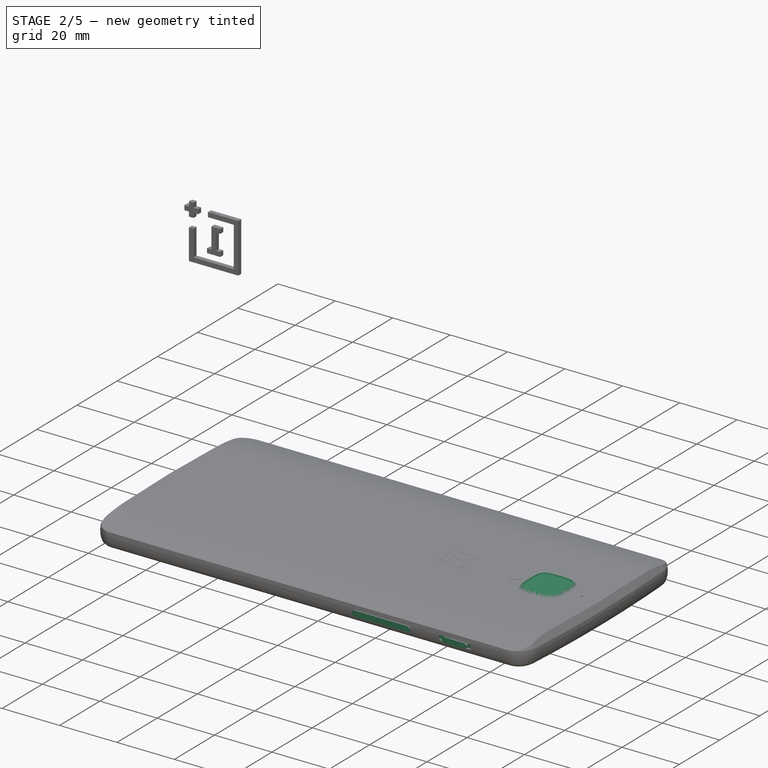
[diagram: stage 2 of 5 — iso view after this stage's code; geometry added in this stage tinted green]
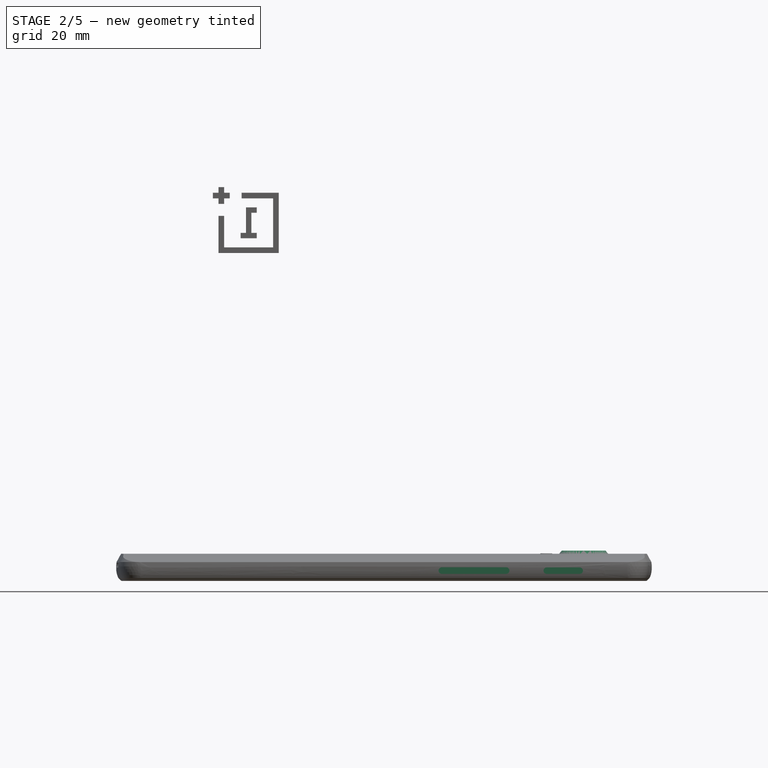
[diagram: stage 2 of 5 — front view after this stage's code; geometry added in this stage tinted green]
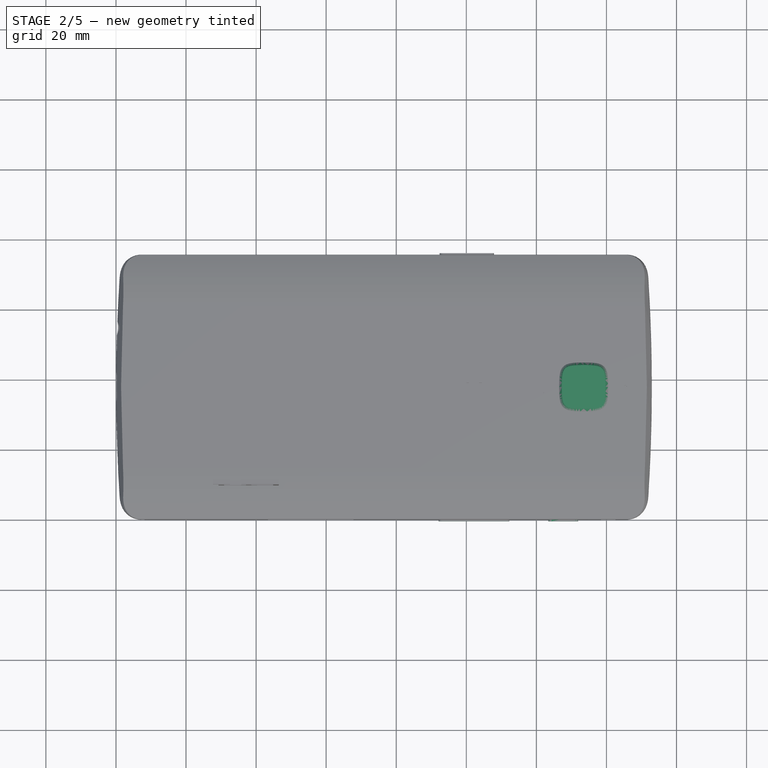
[diagram: stage 2 of 5 — top view after this stage's code; geometry added in this stage tinted green]
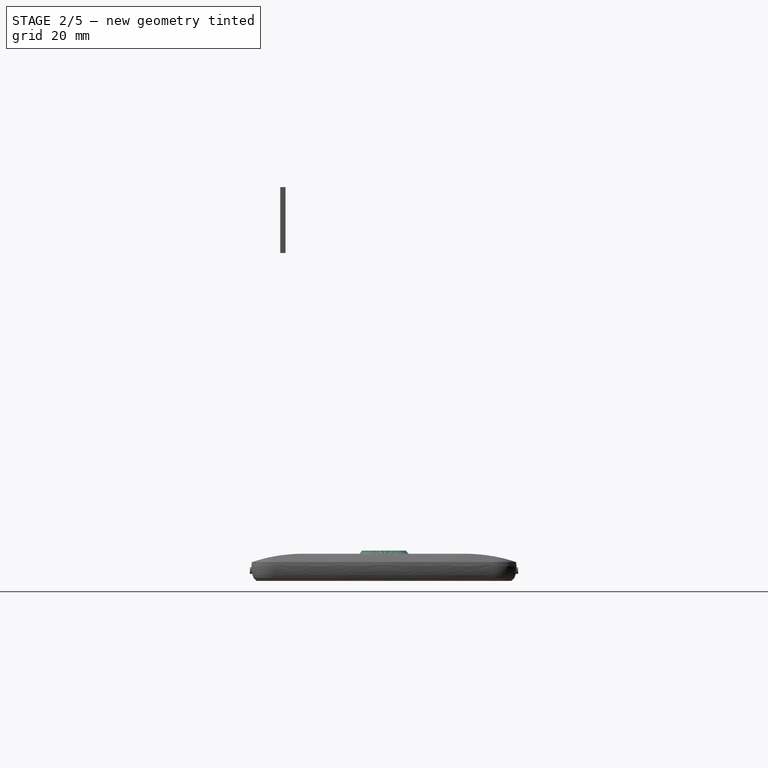
[diagram: stage 2 of 5 — right view after this stage's code; geometry added in this stage tinted green]
FEATURE [Sketcher::SketchObject] Sketch049
  ExternalGeometry = -> [Sketch039,Sketch048]
  MapMode = 5
  Placement = pos=(0,75.75,0) rot=(-1,0,0;1.5708rad)
  Support = -> [DatumPlane]
  expr: Constraints[6] = Spreadsheet.SimKeyD / 2
  expr: Constraints[5] = Spreadsheet.SimKeyRight
  sketch-geometry (3):
    g0: Circle CenterX=114.05 CenterY=-2.85 CenterZ=0 NormalX=0 NormalY=0 NormalZ=1 AngleXU=0 Radius=0.55
    g1: LineSegment [constr] StartX=116.05 StartY=-2.85 StartZ=0 EndX=132.85 EndY=-2.85 EndZ=0
    g2: GeomPoint X=114.6 Y=-2.85 Z=0
  constraints (7):
    c: Coincident(g1,g-5)
    c: Coincident(g1,g-4)
    c: PointOnObject(g0,g1)
    c: PointOnObject(g2,g0)
    c: PointOnObject(g2,g1)
    c: DistanceX(g2,g-3) = 38.4
    c: Radius(g0) = 0.55
FEATURE [PartDesign::Pocket] Pocket005
  BaseFeature = -> Pocket004
  Length = 8
  Length2 = 100
  Placement = pos=(0,0,0) rot=(0.57735,0.57735,0.57735;2.0944rad)
  Profile = -> Sketch049
  Type = 0
  expr: Length = Spreadsheet.SimKeyDepth
FEATURE [PartDesign::Plane] DatumPlane006
  MapMode = 6
  Placement = pos=(0,0,0) rot=(0,-0.707107,0.707107;3.14159rad)
  Support = -> [Sketch036,DatumPlane005]
FEATURE [Sketcher::SketchObject] Sketch050
  ExternalGeometry = -> [Sketch039]
  MapMode = 5
  Placement = pos=(0,0,0) rot=(0,-0.707107,0.707107;3.14159rad)
  Support = -> [DatumPlane006]
  expr: Constraints[15] = Spreadsheet.VolumeTop
  expr: Constraints[14] = Spreadsheet.VolumeWidth
  expr: Constraints[13] = Spreadsheet.VolumeLength
  expr: Constraints[12] = Spreadsheet.VolumeLeft
  sketch-geometry (7):
    g0: ArcOfCircle CenterX=-111.35 CenterY=-2.95 CenterZ=0 NormalX=0 NormalY=0 NormalZ=1 AngleXU=0 Radius=0.95 StartAngle=1.5708 EndAngle=4.71239
    g1: ArcOfCircle CenterX=-93.05 CenterY=-2.95 CenterZ=0 NormalX=0 NormalY=0 NormalZ=1 AngleXU=0 Radius=0.95 StartAngle=4.71239 EndAngle=7.85398
    g2: LineSegment StartX=-111.35 StartY=-3.9 StartZ=0 EndX=-93.05 EndY=-3.9 EndZ=0
    g3: LineSegment StartX=-111.35 StartY=-2 StartZ=0 EndX=-93.05 EndY=-2 EndZ=0
    g4: LineSegment [constr] StartX=-111.35 StartY=-2.95 StartZ=0 EndX=-93.05 EndY=-2.95 EndZ=0
    g5: GeomPoint X=-112.3 Y=-2.95 Z=0
    g6: GeomPoint X=-92.1 Y=-2.95 Z=0
  constraints (16):
    c: Tangent(g0,g3) = 1.5708
    c: Tangent(g0,g2) = -1.5708
    c: Tangent(g2,g1) = -1.5708
    c: Tangent(g3,g1) = 1.5708
    c: Horizontal(g2)
    c: Equal(g0,g1)
    c: Coincident(g4,g0)
    c: Coincident(g4,g1)
    c: PointOnObject(g5,g0)
    c: PointOnObject(g6,g1)
    c: PointOnObject(g5,g4)
    c: PointOnObject(g6,g4)
    c: DistanceX(g-3,g5) = 40.7
    c: DistanceX(g5,g6) = 20.2
    c: DistanceY(g0,g0) = 1.9
    c: DistanceY(g0,g-3) = 2
FEATURE [PartDesign::Pad] Pad002
  BaseFeature = -> Pocket005
  Length = 0.4
  Length2 = 10
  Placement = pos=(0,0,0) rot=(0.57735,0.57735,0.57735;2.0944rad)
  Profile = -> Sketch050
  Type = 4
  expr: Length = Spreadsheet.VolumeDepth - 0.40000000000000002
FEATURE [Sketcher::SketchObject] Sketch051
  ExternalGeometry = -> [Sketch039]
  MapMode = 5
  Placement = pos=(0,0,0) rot=(0,-0.707107,0.707107;3.14159rad)
  Support = -> [DatumPlane006]
  expr: Constraints[15] = Spreadsheet.AlertTop
  expr: Constraints[14] = Spreadsheet.AlertHoleWidth
  expr: Constraints[13] = Spreadsheet.AlertLeft
  expr: Constraints[12] = Spreadsheet.AlertHoleLength
  sketch-geometry (7):
    g0: ArcOfCircle CenterX=-132.375 CenterY=-2.925 CenterZ=0 NormalX=0 NormalY=0 NormalZ=1 AngleXU=0 Radius=0.925 StartAngle=1.5708 EndAngle=4.71239
    g1: ArcOfCircle CenterX=-122.975 CenterY=-2.925 CenterZ=0 NormalX=0 NormalY=0 NormalZ=1 AngleXU=0 Radius=0.925 StartAngle=4.71239 EndAngle=7.85398
    g2: LineSegment StartX=-132.375 StartY=-3.85 StartZ=0 EndX=-122.975 EndY=-3.85 EndZ=0
    g3: LineSegment StartX=-132.375 StartY=-2 StartZ=0 EndX=-122.975 EndY=-2 EndZ=0
    g4: LineSegment [constr] StartX=-132.375 StartY=-2.925 StartZ=0 EndX=-122.975 EndY=-2.925 EndZ=0
    g5: GeomPoint X=-133.3 Y=-2.925 Z=0
    g6: GeomPoint X=-122.05 Y=-2.925 Z=0
  constraints (16):
    c: Tangent(g0,g3) = 1.5708
    c: Tangent(g0,g2) = -1.5708
    c: Tangent(g2,g1) = -1.5708
    c: Tangent(g3,g1) = 1.5708
    c: Horizontal(g2)
    c: Equal(g0,g1)
    c: Coincident(g4,g0)
    c: Coincident(g4,g1)
    c: PointOnObject(g6,g1)
    c: PointOnObject(g5,g0)
    c: PointOnObject(g5,g4)
    c: PointOnObject(g6,g4)
    c: DistanceX(g5,g6) = 11.25
    c: DistanceX(g-3,g5) = 19.7
    c: DistanceY(g0,g0) = 1.85
    c: DistanceY(g0,g-3) = 2
FEATURE [PartDesign::Pocket] Pocket006
  BaseFeature = -> Pad002
  Length = 1
  Length2 = 100
  Placement = pos=(0,0,0) rot=(0.57735,0.57735,0.57735;2.0944rad)
  Profile = -> Sketch051
  Type = 0
  expr: Length = 0.40000000000000002 + Spreadsheet.AlertHoleDepth
FEATURE [PartDesign::Plane] DatumPlane007
  AttachmentOffset = pos=(0,0,0) rot=(0,0,1;3.14159rad)
  MapMode = 6
  Placement = pos=(0,1,0) rot=(0,-0.707107,0.707107;3.14159rad)
  Support = -> [Pocket006,Sketch039]
FEATURE [Sketcher::SketchObject] Sketch052
  ExternalGeometry = -> [Sketch039]
  MapMode = 5
  Placement = pos=(0,1,0) rot=(0,-0.707107,0.707107;3.14159rad)
  Support = -> [DatumPlane007]
  expr: Constraints[27] = Spreadsheet.AlertLeft
  expr: Constraints[28] = Spreadsheet.AlertTop
  expr: Constraints[25] = Spreadsheet.AlertHoleLength / 2
  expr: Constraints[21] = Spreadsheet.AlertHoleWidth
  expr: Constraints[13] = Spreadsheet.AlertLength
  expr: Constraints[8] = Spreadsheet.AlertWidth
  sketch-geometry (14):
    g0: LineSegment [constr] StartX=-126.884 StartY=-2.925 StartZ=0 EndX=-128.466 EndY=-2.925 EndZ=0
    g1: GeomPoint X=-127.675 Y=-2.925 Z=0
    g2: ArcOfCircle CenterX=-131.025 CenterY=-2.925 CenterZ=0 NormalX=0 NormalY=0 NormalZ=1 AngleXU=0 Radius=0.9 StartAngle=1.5708 EndAngle=4.71239
    g3: ArcOfCircle CenterX=-124.325 CenterY=-2.925 CenterZ=0 NormalX=0 NormalY=0 NormalZ=1 AngleXU=0 Radius=0.9 StartAngle=4.71239 EndAngle=7.85398
    g4: LineSegment StartX=-131.025 StartY=-3.825 StartZ=0 EndX=-124.325 EndY=-3.825 EndZ=0
    g5: LineSegment StartX=-131.025 StartY=-2.025 StartZ=0 EndX=-124.325 EndY=-2.025 EndZ=0
    g6: GeomPoint X=-131.925 Y=-2.925 Z=0
    g7: GeomPoint X=-123.425 Y=-2.925 Z=0
    g8: ArcOfCircle [constr] CenterX=-132.375 CenterY=-2.925 CenterZ=0 NormalX=0 NormalY=0 NormalZ=1 AngleXU=0 Radius=0.925 StartAngle=1.5708 EndAngle=4.71239
    g9: ArcOfCircle [constr] CenterX=-122.975 CenterY=-2.925 CenterZ=0 NormalX=0 NormalY=0 NormalZ=1 AngleXU=0 Radius=0.925 StartAngle=4.71239 EndAngle=7.85398
    g10: LineSegment [constr] StartX=-132.375 StartY=-3.85 StartZ=0 EndX=-122.975 EndY=-3.85 EndZ=0
    g11: LineSegment [constr] StartX=-132.375 StartY=-2 StartZ=0 EndX=-122.975 EndY=-2 EndZ=0
    g12: GeomPoint X=-122.05 Y=-2.925 Z=0
    g13: GeomPoint X=-133.3 Y=-2.925 Z=0
  constraints (29):
    c: Symmetric(g0,g0,g1)
    c: Tangent(g2,g5) = 1.5708
    c: Tangent(g2,g4) = -1.5708
    c: Tangent(g4,g3) = -1.5708
    c: Tangent(g5,g3) = 1.5708
    c: Horizontal(g4)
    c: PointOnObject(g2,g0)
    c: Symmetric(g2,g3,g1)
    c: DistanceY(g2,g2) = 1.8
    c: PointOnObject(g6,g2)
    c: PointOnObject(g7,g3)
    c: PointOnObject(g7,g0)
    c: PointOnObject(g6,g0)
    c: DistanceX(g6,g7) = 8.5
    c: Tangent(g8,g11) = 1.5708
    c: Tangent(g8,g10) = -1.5708
    c: Tangent(g10,g9) = -1.5708
    c: Tangent(g11,g9) = 1.5708
    c: Horizontal(g10)
    c: Equal(g8,g9)
    c: PointOnObject(g9,g0)
    c: DistanceY(g9,g9) = 1.85
    c: PointOnObject(g12,g9)
    c: Symmetric(g8,g9,g1)
    c: PointOnObject(g12,g0)
    c: DistanceX(g1,g12) = 5.625
    c: Symmetric(g13,g12,g1)
    c: DistanceX(g-3,g13) = 19.7
    c: DistanceY(g8,g-3) = 2
FEATURE [PartDesign::Pad] Pad003
  BaseFeature = -> Pocket006
  Length = 1.4
  Length2 = 100
  Placement = pos=(0,0,0) rot=(0.57735,0.57735,0.57735;2.0944rad)
  Profile = -> Sketch052
  Type = 0
  expr: Length = Spreadsheet.AlertDepth
FEATURE [PartDesign::Plane] DatumPlane008
  MapMode = 6
  Placement = pos=(0,-0.4,0) rot=(0.57735,-0.57735,0.57735;2.0944rad)
  Support = -> [Pad003,Sketch036]
FEATURE [Sketcher::SketchObject] Sketch053
  ExternalGeometry = -> [Sketch052]
  MapMode = 5
  Placement = pos=(0,-0.4,0) rot=(0.57735,-0.57735,0.57735;2.0944rad)
  Support = -> [DatumPlane008]
  sketch-geometry (4):
    g0: LineSegment StartX=0.813815 StartY=-134.036 StartZ=0 EndX=5.32845 EndY=-129.522 EndZ=0
    g1: LineSegment [constr] StartX=2.925 StartY=-131.025 StartZ=0 EndX=2.925 EndY=-124.325 EndZ=0
    g2: GeomPoint X=2.925 Y=-131.925 Z=0
    g3: LineSegment StartX=5.20298 StartY=-134.203 StartZ=0 EndX=0.746213 EndY=-129.746 EndZ=0
  constraints (4):
    c: PointOnObject(g2,g1)
    c: PointOnObject(g2,g0)
    c: Perpendicular(g0,g3)
    c: PointOnObject(g2,g3)
FEATURE [PartDesign::Plane] DatumPlane009
  MapMode = 7
  Placement = pos=(134.036,-0.4,0.813815) rot=(0.678598,0.678598,0.281085;2.59356rad)
  Support = -> [Sketch053]
FEATURE [PartDesign::Plane] DatumPlane010
  MapMode = 7
  Placement = pos=(134.203,-0.4,5.20298) rot=(0.357407,0.357407,0.862856;1.71777rad)
  Support = -> [Sketch053]
FEATURE [Sketcher::SketchObject] Sketch054
  MapMode = 5
  Placement = pos=(134.036,-0.4,0.813815) rot=(0.678598,0.678598,0.281085;2.59356rad)
  Support = -> [DatumPlane009]
  expr: Constraints[10] = Spreadsheet.RidgesTaper
  expr: Constraints[9] = Spreadsheet.RidgesDepth
  sketch-geometry (4):
    g0: LineSegment StartX=-0.1 StartY=0 StartZ=0 EndX=0 EndY=-0.214451 EndZ=0
    g1: LineSegment StartX=0 StartY=-0.214451 StartZ=0 EndX=0.1 EndY=0 EndZ=0
    g2: LineSegment StartX=0.1 StartY=0 StartZ=0 EndX=0 EndY=0.214451 EndZ=0
    g3: LineSegment StartX=0 StartY=0.214451 StartZ=0 EndX=-0.1 EndY=0 EndZ=0
  constraints (12):
    c: Coincident(g0,g1)
    c: Coincident(g1,g2)
    c: Coincident(g2,g3)
    c: Coincident(g3,g0)
    c: Equal(g0,g1)
    c: Equal(g0,g2)
    c: Equal(g0,g3)
    c: PointOnObject(g3,g-1)
    c: PointOnObject(g0,g-2)
    c: DistanceX(g-1,g1) = 0.1
    c: Angle(g-2,g2) = 0.436332
    c: PointOnObject(g1,g-1)
FEATURE [Sketcher::SketchObject] Sketch055
  MapMode = 5
  Placement = pos=(134.203,-0.4,5.20298) rot=(0.357407,0.357407,0.862856;1.71777rad)
  Support = -> [DatumPlane010]
  expr: Constraints[10] = Spreadsheet.RidgesTaper
  expr: Constraints[9] = Spreadsheet.RidgesDepth
  sketch-geometry (4):
    g0: LineSegment StartX=-0.1 StartY=0 StartZ=0 EndX=0 EndY=-0.214451 EndZ=0
    g1: LineSegment StartX=0 StartY=-0.214451 StartZ=0 EndX=0.1 EndY=0 EndZ=0
    g2: LineSegment StartX=0.1 StartY=0 StartZ=0 EndX=0 EndY=0.214451 EndZ=0
    g3: LineSegment StartX=0 StartY=0.214451 StartZ=0 EndX=-0.1 EndY=0 EndZ=0
  constraints (12):
    c: Coincident(g0,g1)
    c: Coincident(g1,g2)
    c: Coincident(g2,g3)
    c: Coincident(g3,g0)
    c: Equal(g0,g1)
    c: Equal(g0,g2)
    c: Equal(g0,g3)
    c: PointOnObject(g3,g-1)
    c: PointOnObject(g0,g-2)
    c: DistanceX(g-1,g1) = 0.1
    c: Angle(g-2,g2) = 0.436332
    c: PointOnObject(g1,g-1)
FEATURE [PartDesign::Plane] DatumPlane011
  MapMode = 1
  Placement = pos=(0,37.875,7.75) rot=(0,0,1;0rad)
  Support = -> [Sketch036]
FEATURE [Sketcher::SketchObject] Sketch056
  ExternalGeometry = -> [Sketch039]
  MapMode = 5
  Placement = pos=(0,37.875,7.75) rot=(0,0,1;0rad)
  Support = -> [DatumPlane011]
  expr: Constraints[4] = Spreadsheet.MicBackD / 2
  expr: Constraints[3] = Spreadsheet.MicBackTop
  sketch-geometry (2):
    g0: Circle CenterX=145.45 CenterY=0 CenterZ=0 NormalX=0 NormalY=0 NormalZ=1 AngleXU=0 Radius=0.45
    g1: GeomPoint X=145.9 Y=0 Z=0
  constraints (5):
    c: PointOnObject(g0,g-1)
    c: PointOnObject(g1,g0)
    c: PointOnObject(g1,g-1)
    c: Distance(g1,g-3) = 7.1
    c: Radius(g0) = 0.45
FEATURE [PartDesign::Pocket] Pocket007
  BaseFeature = -> Pad003
  Length = 0.3
  Length2 = 100
  Placement = pos=(0,0,0) rot=(0.57735,0.57735,0.57735;2.0944rad)
  Profile = -> Sketch056
  Type = 0
  expr: Length = Spreadsheet.MicBackDepth
FEATURE [Sketcher::SketchObject] Sketch057
  ExternalGeometry = -> [Sketch039]
  MapMode = 5
  Placement = pos=(0,37.875,7.75) rot=(0,0,1;0rad)
  Support = -> [DatumPlane011]
  expr: Constraints[31] = Spreadsheet.CameraSplineStrength
  expr: Constraints[30] = Spreadsheet.CameraSplineSteep
  expr: Constraints[13] = Spreadsheet.CameraTop
  expr: Constraints[12] = Spreadsheet.CameraSide
  sketch-geometry (35):
    g0: LineSegment [constr] StartX=126.5 StartY=7 StartZ=0 EndX=140.5 EndY=7 EndZ=0
    g1: LineSegment [constr] StartX=140.5 StartY=7 StartZ=0 EndX=140.5 EndY=-7 EndZ=0
    g2: LineSegment [constr] StartX=140.5 StartY=-7 StartZ=0 EndX=126.5 EndY=-7 EndZ=0
    g3: LineSegment [constr] StartX=126.5 StartY=-7 StartZ=0 EndX=126.5 EndY=7 EndZ=0
    g4: GeomPoint X=140.5 Y=0 Z=0
    g5-g8: Circle [constr] x4 (B-spline internal-alignment scaffolding for g9; pole/knot coordinates omitted)
    g9: BSplineCurve PolesCount=4 KnotsCount=2 Degree=3 IsPeriodic=0
    g10: GeomPoint [constr] X=126.5 Y=0 Z=0
    g11: GeomPoint [constr] X=133.5 Y=-7 Z=0
    g12: LineSegment [constr] StartX=126.5 StartY=-7 StartZ=0 EndX=140.5 EndY=7 EndZ=0
    g13: LineSegment [constr] StartX=126.5 StartY=7 StartZ=0 EndX=140.5 EndY=-7 EndZ=0
    g14-g17: Circle [constr] x4 (B-spline internal-alignment scaffolding for g18; pole/knot coordinates omitted)
    g18: BSplineCurve PolesCount=4 KnotsCount=2 Degree=3 IsPeriodic=0
    g19: GeomPoint [constr] X=126.5 Y=0 Z=0
    g20: GeomPoint [constr] X=133.5 Y=7 Z=0
    g21-g24: Circle [constr] x4 (B-spline internal-alignment scaffolding for g25; pole/knot coordinates omitted)
    g25: BSplineCurve PolesCount=4 KnotsCount=2 Degree=3 IsPeriodic=0
    g26: GeomPoint [constr] X=133.5 Y=7 Z=0
    g27: GeomPoint [constr] X=140.5 Y=0 Z=0
    g28-g31: Circle [constr] x4 (B-spline internal-alignment scaffolding for g32; pole/knot coordinates omitted)
    g32: BSplineCurve PolesCount=4 KnotsCount=2 Degree=3 IsPeriodic=0
    g33: GeomPoint [constr] X=140.5 Y=0 Z=0
    g34: GeomPoint [constr] X=133.5 Y=-7 Z=0
  constraints (63):
    c: Coincident(g0,g1)
    c: Coincident(g1,g2)
    c: Coincident(g2,g3)
    c: Coincident(g3,g0)
    c: Horizontal(g0)
    c: Horizontal(g2)
    c: Vertical(g1)
    c: Vertical(g3)
    c: PointOnObject(g4,g1)
    c: PointOnObject(g4,g-1)
    c: Equal(g1,g0)
    c: Symmetric(g0,g1,g4)
    c: Distance(g1) = 14
    c: Distance(g4,g-3) = 12.5
    c: Equal(g5,g8)
    c: InternalAlignment(g5-g8 -> g9) x4
    c: InternalAlignment(g10,g9)
    c: InternalAlignment(g11,g9)
    c: PointOnObject(g7,g2)
    c: PointOnObject(g8,g2)
    c: Symmetric(g2,g1,g8)
    c: Symmetric(g2,g0,g5)
    c: Coincident(g12,g2)
    c: Coincident(g12,g0)
    c: Coincident(g13,g0)
    c: Coincident(g13,g1)
    c: Symmetric(g6,g7,g12)
    c: Distance(g7,g8) = 5
    c: Radius(g6) = 4
    c: Equal(g6,g7)
    c: Coincident(g14,g5)
    c: Radius(g14) = 1
    c: Equal(g14,g17)
    c: InternalAlignment(g14-g17 -> g18) x4
    c: InternalAlignment(g19,g18)
    c: InternalAlignment(g20,g18)
    c: Coincident(g21,g17)
    c: Radius(g21) = 1
    c: Equal(g21,g24)
    c: Coincident(g24,g4)
    c: InternalAlignment(g21-g24 -> g25) x4
    c: InternalAlignment(g26,g25)
    c: InternalAlignment(g27,g25)
    c: Coincident(g28,g4)
    c: Radius(g28) = 1
    c: Equal(g28,g31)
    c: Coincident(g31,g8)
    c: InternalAlignment(g28-g31 -> g32) x4
    c: InternalAlignment(g33,g32)
    c: InternalAlignment(g34,g32)
    c: Symmetric(g0,g0,g17)
    c: Equal(g6,g15)
    c: Equal(g6,g16)
    c: Equal(g6,g22)
    c: Equal(g6,g23)
    c: Equal(g6,g29)
    c: Equal(g6,g30)
    c: Symmetric(g7,g30,g8)
    c: Symmetric(g6,g15,g5)
    c: Symmetric(g30,g29,g13)
    c: Symmetric(g29,g23,g4)
    c: Symmetric(g23,g22,g12)
    c: Symmetric(g22,g16,g17)
FEATURE [PartDesign::Pad] Pad004
  BaseFeature = -> Pocket007
  Length = 0.9
  Length2 = 100
  Placement = pos=(0,0,0) rot=(0.57735,0.57735,0.57735;2.0944rad)
  Profile = -> Sketch057
  Type = 0
  expr: Length = Spreadsheet.CameraHeightOuter
FEATURE [Sketcher::SketchObject] Sketch058
  ExternalGeometry = -> [Sketch057]
  MapMode = 5
  Placement = pos=(3.3e-11,37.875,0) rot=(0,0.707107,0.707107;3.14159rad)
  Support = -> [DatumPlane005]
  expr: Constraints[2] = Spreadsheet.CameraHeightOuter
  expr: Constraints[7] = Spreadsheet.CameraSideOut / 2
  sketch-geometry (6):
    g0: LineSegment [constr] StartX=-126.5 StartY=7.75 StartZ=0 EndX=-126.5 EndY=8.65 EndZ=0
    g1: GeomPoint X=-133.5 Y=7.75 Z=0
    g2: LineSegment [constr] StartX=-133.5 StartY=7.75 StartZ=0 EndX=-133.5 EndY=14.0576 EndZ=0
    g3: LineSegment StartX=-127.25 StartY=8.65 StartZ=0 EndX=-126.5 EndY=7.75 EndZ=0
    g4: LineSegment StartX=-126.5 StartY=8.65 StartZ=0 EndX=-126.5 EndY=7.75 EndZ=0
    g5: LineSegment StartX=-127.25 StartY=8.65 StartZ=0 EndX=-126.5 EndY=8.65 EndZ=0
  constraints (14):
    c: Coincident(g0,g-3)
    c: Vertical(g0)
    c: Distance(g0) = 0.9
    c: Symmetric(g-4,g0,g1)
    c: Coincident(g2,g1)
    c: Vertical(g2)
    c: Coincident(g3,g0)
    c: DistanceX(g1,g3) = 6.25
    c: Vertical(g4)
    c: Coincident(g0,g4)
    c: Coincident(g5,g3)
    c: Horizontal(g5)
    c: Coincident(g5,g4)
    c: Coincident(g4,g0)
FEATURE [PartDesign::SubtractivePipe] SubtractivePipe001
  AuxilleryCurvelinear = true
  AuxillerySpineTangent = false
  BaseFeature = -> Pad004
  Binormal = (0,0,0)
  Mode = 0
  Placement = pos=(0,0,0) rot=(0.57735,0.57735,0.57735;2.0944rad)
  Profile = -> Sketch058
  Spine = -> Sketch057
  SpineTangent = false
  Transformation = 0
  Transition = 0
FEATURE [PartDesign::Plane] DatumPlane012
  MapMode = 5
  Placement = pos=(0,0,8.65) rot=(0,0,-1;1.5708rad)
  Support = -> [SubtractivePipe001]
FEATURE [Sketcher::SketchObject] Sketch059
  ExternalGeometry = -> [Sketch057]
  MapMode = 5
  Placement = pos=(0,0,8.65) rot=(0,0,-1;1.5708rad)
  Support = -> [DatumPlane012]
  expr: Constraints[28] = Spreadsheet.CameraSideOut / Spreadsheet.CameraSide * Spreadsheet.CameraSplineSteep
  expr: Constraints[25] = Spreadsheet.CameraSideOut - 2 * Spreadsheet.CameraBrim
  expr: Constraints[15] = Spreadsheet.CameraSplineStrength
  sketch-geometry (36):
    g0: LineSegment [constr] StartX=-44.875 StartY=133.5 StartZ=0 EndX=-30.875 EndY=133.5 EndZ=0
    g1: LineSegment [constr] StartX=-37.875 StartY=140.5 StartZ=0 EndX=-37.875 EndY=126.5 EndZ=0
    g2-g5: Circle [constr] x4 (B-spline internal-alignment scaffolding for g6; pole/knot coordinates omitted)
    g6: BSplineCurve PolesCount=4 KnotsCount=2 Degree=3 IsPeriodic=0
    g7: GeomPoint [constr] X=-43.825 Y=133.5 Z=0
    g8: GeomPoint [constr] X=-37.875 Y=139.45 Z=0
    g9: LineSegment [constr] StartX=-43.825 StartY=139.45 StartZ=0 EndX=-31.925 EndY=139.45 EndZ=0
    g10: LineSegment [constr] StartX=-31.925 StartY=139.45 StartZ=0 EndX=-31.925 EndY=127.55 EndZ=0
    g11: LineSegment [constr] StartX=-31.925 StartY=127.55 StartZ=0 EndX=-43.825 EndY=127.55 EndZ=0
    g12: LineSegment [constr] StartX=-43.825 StartY=127.55 StartZ=0 EndX=-43.825 EndY=139.45 EndZ=0
    g13: LineSegment [constr] StartX=-43.825 StartY=139.45 StartZ=0 EndX=-31.925 EndY=127.55 EndZ=0
    g14: LineSegment [constr] StartX=-43.825 StartY=127.55 StartZ=0 EndX=-31.925 EndY=139.45 EndZ=0
    g15-g18: Circle [constr] x4 (B-spline internal-alignment scaffolding for g19; pole/knot coordinates omitted)
    g19: BSplineCurve PolesCount=4 KnotsCount=2 Degree=3 IsPeriodic=0
    g20: GeomPoint [constr] X=-43.825 Y=133.5 Z=0
    g21: GeomPoint [constr] X=-37.875 Y=127.55 Z=0
    g22-g25: Circle [constr] x4 (B-spline internal-alignment scaffolding for g26; pole/knot coordinates omitted)
    g26: BSplineCurve PolesCount=4 KnotsCount=2 Degree=3 IsPeriodic=0
    g27: GeomPoint [constr] X=-37.875 Y=127.55 Z=0
    g28: GeomPoint [constr] X=-31.925 Y=133.5 Z=0
    g29-g32: Circle [constr] x4 (B-spline internal-alignment scaffolding for g33; pole/knot coordinates omitted)
    g33: BSplineCurve PolesCount=4 KnotsCount=2 Degree=3 IsPeriodic=0
    g34: GeomPoint [constr] X=-37.875 Y=139.45 Z=0
    g35: GeomPoint [constr] X=-31.925 Y=133.5 Z=0
  constraints (64):
    c: Coincident(g0,g-4)
    c: Coincident(g0,g-6)
    c: Coincident(g1,g-5)
    c: Coincident(g1,g-6)
    c: PointOnObject(g2,g0)
    c: Radius(g2) = 1
    c: Equal(g2,g5)
    c: PointOnObject(g5,g1)
    c: InternalAlignment(g2-g5 -> g6) x4
    c: InternalAlignment(g7,g6)
    c: InternalAlignment(g8,g6)
    c: Equal(g4,g3)
    c: Radius(g4) = 4
    c: Coincident(g9,g10)
    c: Coincident(g10,g11)
    c: Coincident(g11,g12)
    c: Coincident(g12,g9)
    c: Horizontal(g9)
    c: Horizontal(g11)
    c: Vertical(g10)
    c: Vertical(g12)
    c: Equal(g9,g10)
    c: Distance(g9) = 11.9
    c: Symmetric(g9,g11,g2)
    c: Symmetric(g9,g9,g5)
    c: DistanceY(g2,g3) = 4.46429
    c: Coincident(g13,g9)
    c: Coincident(g13,g10)
    c: Coincident(g14,g11)
    c: Coincident(g14,g9)
    c: Symmetric(g4,g3,g13)
    c: PointOnObject(g3,g12)
    c: Coincident(g15,g2)
    c: Equal(g15,g18)
    c: InternalAlignment(g15-g18 -> g19) x4
    c: InternalAlignment(g20,g19)
    c: InternalAlignment(g21,g19)
    c: PointOnObject(g18,g1)
    c: PointOnObject(g18,g11)
    c: Symmetric(g3,g16,g2)
    c: Equal(g3,g16)
    c: Equal(g17,g3)
    c: Symmetric(g16,g17,g14)
    c: Coincident(g22,g18)
    c: Equal(g22,g25)
    c: PointOnObject(g25,g0)
    c: InternalAlignment(g22-g25 -> g26) x4
    c: InternalAlignment(g27,g26)
    c: InternalAlignment(g28,g26)
    c: PointOnObject(g25,g10)
    c: Symmetric(g17,g23,g18)
    c: Symmetric(g23,g24,g13)
    c: Equal(g3,g23)
    c: Equal(g24,g3)
    c: Coincident(g29,g5)
    c: Equal(g29,g32)
    c: Coincident(g32,g25)
    c: InternalAlignment(g29-g32 -> g33) x4
    c: InternalAlignment(g34,g33)
    c: InternalAlignment(g35,g33)
    c: Symmetric(g31,g24,g25)
    c: Symmetric(g30,g4,g5)
    c: Equal(g30,g3)
    c: Equal(g3,g31)
FEATURE [PartDesign::Pocket] Pocket008
  BaseFeature = -> SubtractivePipe001
  Length = 0.2
  Length2 = 100
  Placement = pos=(0,0,0) rot=(0.57735,0.57735,0.57735;2.0944rad)
  Profile = -> Sketch059
  Type = 0
  expr: Length = Spreadsheet.CameraHeightOuter - Spreadsheet.CameraHeightInner
FEATURE [Sketcher::SketchObject] Sketch060
  ExternalGeometry = -> [Sketch039]
  MapMode = 5
  Placement = pos=(0,37.875,7.75) rot=(0,0,1;0rad)
  Support = -> [DatumPlane011]
  expr: Constraints[30] = Spreadsheet.FlashSplineStrength / 5
  expr: Constraints[28] = Spreadsheet.FlashSplineSteep
  expr: Constraints[10] = Spreadsheet.FlashTop
  expr: Constraints[9] = Spreadsheet.FlashSide
  sketch-geometry (36):
    g0: LineSegment [constr] StartX=121.1 StartY=1.7 StartZ=0 EndX=124.5 EndY=1.7 EndZ=0
    g1: LineSegment [constr] StartX=124.5 StartY=1.7 StartZ=0 EndX=124.5 EndY=-1.7 EndZ=0
    g2: LineSegment [constr] StartX=124.5 StartY=-1.7 StartZ=0 EndX=121.1 EndY=-1.7 EndZ=0
    g3: LineSegment [constr] StartX=121.1 StartY=-1.7 StartZ=0 EndX=121.1 EndY=1.7 EndZ=0
    g4: GeomPoint X=124.5 Y=0 Z=0
    g5: LineSegment [constr] StartX=121.1 StartY=1.7 StartZ=0 EndX=124.5 EndY=-1.7 EndZ=0
    g6: LineSegment [constr] StartX=121.1 StartY=-1.7 StartZ=0 EndX=124.5 EndY=1.7 EndZ=0
    g7: GeomPoint X=121.1 Y=0 Z=0
    g8-g11: Circle [constr] x4 (B-spline internal-alignment scaffolding for g12; pole/knot coordinates omitted)
    g12: BSplineCurve PolesCount=4 KnotsCount=2 Degree=3 IsPeriodic=0
    g13: GeomPoint [constr] X=121.1 Y=0 Z=0
    g14: GeomPoint [constr] X=122.8 Y=-1.7 Z=0
    g15-g18: Circle [constr] x4 (B-spline internal-alignment scaffolding for g19; pole/knot coordinates omitted)
    g19: BSplineCurve PolesCount=4 KnotsCount=2 Degree=3 IsPeriodic=0
    g20: GeomPoint [constr] X=122.8 Y=-1.7 Z=0
    g21: GeomPoint [constr] X=124.5 Y=0 Z=0
    g22-g25: Circle [constr] x4 (B-spline internal-alignment scaffolding for g26; pole/knot coordinates omitted)
    g26: BSplineCurve PolesCount=4 KnotsCount=2 Degree=3 IsPeriodic=0
    g27: GeomPoint [constr] X=121.1 Y=0 Z=0
    g28: GeomPoint [constr] X=122.8 Y=1.7 Z=0
    g29-g32: Circle [constr] x4 (B-spline internal-alignment scaffolding for g33; pole/knot coordinates omitted)
    g33: BSplineCurve PolesCount=4 KnotsCount=2 Degree=3 IsPeriodic=0
    g34: GeomPoint [constr] X=122.8 Y=1.7 Z=0
    g35: GeomPoint [constr] X=124.5 Y=0 Z=0
  constraints (65):
    c: Coincident(g0,g1)
    c: Coincident(g1,g2)
    c: Coincident(g2,g3)
    c: Coincident(g3,g0)
    c: Horizontal(g0)
    c: Horizontal(g2)
    c: Vertical(g1)
    c: Vertical(g3)
    c: Equal(g0,g1)
    c: Distance(g1) = 3.4
    c: Distance(g1,g-3) = 28.5
    c: PointOnObject(g4,g-1)
    c: Symmetric(g0,g1,g4)
    c: Coincident(g5,g0)
    c: Coincident(g5,g1)
    c: Coincident(g6,g2)
    c: Coincident(g6,g0)
    c: PointOnObject(g7,g3)
    c: PointOnObject(g7,g-1)
    c: Coincident(g8,g7)
    c: Radius(g8) = 0.2
    c: Equal(g8,g11)
    c: InternalAlignment(g8-g11 -> g12) x4
    c: InternalAlignment(g13,g12)
    c: InternalAlignment(g14,g12)
    c: DistanceY(g9,g7) = 1
    c: Symmetric(g9,g10,g6)
    c: Radius(g9) = 0.8
    c: Equal(g9,g10)
    c: Symmetric(g2,g1,g11)
    c: Coincident(g15,g11)
    c: Equal(g15,g18)
    c: InternalAlignment(g15-g18 -> g19) x4
    c: InternalAlignment(g20,g19)
    c: InternalAlignment(g21,g19)
    c: Symmetric(g16,g17,g5)
    c: Coincident(g18,g4)
    c: Symmetric(g10,g16,g11)
    c: Equal(g16,g17)
    c: Equal(g15,g8)
    c: Equal(g9,g16)
    c: Coincident(g22,g7)
    c: Radius(g22) = 0.2
    c: Equal(g22,g25)
    c: InternalAlignment(g22-g25 -> g26) x4
    c: InternalAlignment(g27,g26)
    c: InternalAlignment(g28,g26)
    c: Equal(g23,g24)
    c: Equal(g23,g9)
    c: Symmetric(g23,g24,g5)
    c: Symmetric(g23,g9,g7)
    c: Symmetric(g0,g0,g25)
    c: Coincident(g29,g25)
    c: Radius(g29) = 0.2
    c: Equal(g29,g32)
    c: Coincident(g32,g4)
    c: InternalAlignment(g29-g32 -> g33) x4
    c: InternalAlignment(g34,g33)
    c: InternalAlignment(g35,g33)
    c: Symmetric(g30,g31,g6)
    c: Equal(g31,g30)
    c: Equal(g30,g9)
    c: Symmetric(g24,g30,g25)
    c: Symmetric(g31,g17,g4)
    c: PointOnObject(g10,g2)
FEATURE [PartDesign::Pad] Pad005
  BaseFeature = -> Pocket008
  Length = 0.1
  Length2 = 100
  Placement = pos=(0,0,0) rot=(0.57735,0.57735,0.57735;2.0944rad)
  Profile = -> Sketch060
  Type = 0
  expr: Length = Spreadsheet.FlashHeight
FEATURE [Sketcher::SketchObject] Sketch061
  AttachmentOffset = pos=(0,0,0) rot=(0,0,1;3.14159rad)
  ExternalGeometry = -> [Sketch039]
  MapMode = 5
  Placement = pos=(0,37.875,7.75) rot=(0,0,1;3.14159rad)
  Support = -> [DatumPlane011]
  expr: Constraints[68] = Spreadsheet.OplogoTop
  expr: Constraints[48] = Spreadsheet.OplogoOneLeft
  expr: Constraints[56] = Spreadsheet.OplogoSide
  expr: Constraints[46] = Spreadsheet.OplogoLineWidth
  expr: Constraints[64] = Spreadsheet.OplogoOneTop
  expr: Constraints[65] = Spreadsheet.OplogoGap
  sketch-geometry (42):
    g0: LineSegment StartX=-106.5 StartY=-4.3 StartZ=0 EndX=-97.9 EndY=-4.3 EndZ=0
    g1: LineSegment StartX=-97.9 StartY=-4.3 StartZ=0 EndX=-97.9 EndY=4.3 EndZ=0
    g2: LineSegment StartX=-97.9 StartY=4.3 StartZ=0 EndX=-103.2 EndY=4.3 EndZ=0
    g3: LineSegment StartX=-103.2 StartY=4.3 StartZ=0 EndX=-103.2 EndY=3.5 EndZ=0
    g4: LineSegment StartX=-103.2 StartY=3.5 StartZ=0 EndX=-98.7 EndY=3.5 EndZ=0
    g5: LineSegment StartX=-98.7 StartY=3.5 StartZ=0 EndX=-98.7 EndY=-3.5 EndZ=0
    g6: LineSegment StartX=-98.7 StartY=-3.5 StartZ=0 EndX=-105.7 EndY=-3.5 EndZ=0
    g7: LineSegment StartX=-105.7 StartY=-3.5 StartZ=0 EndX=-105.7 EndY=1 EndZ=0
    g8: LineSegment StartX=-105.7 StartY=1 StartZ=0 EndX=-106.5 EndY=1 EndZ=0
    g9: LineSegment StartX=-104.4 StartY=0.383333 StartZ=0 EndX=-100.767 EndY=0.383333 EndZ=0
    g10: LineSegment StartX=-100.767 StartY=0.383333 StartZ=0 EndX=-100.767 EndY=1.15 EndZ=0
    g11: LineSegment StartX=-100.767 StartY=1.15 StartZ=0 EndX=-100 EndY=1.15 EndZ=0
    g12: LineSegment StartX=-100 StartY=1.15 StartZ=0 EndX=-100 EndY=-1.15 EndZ=0
    g13: LineSegment StartX=-100 StartY=-1.15 StartZ=0 EndX=-100.767 EndY=-1.15 EndZ=0
    g14: LineSegment StartX=-100.767 StartY=-1.15 StartZ=0 EndX=-100.767 EndY=-0.383333 EndZ=0
    g15: LineSegment StartX=-100.767 StartY=-0.383333 StartZ=0 EndX=-103.633 EndY=-0.383333 EndZ=0
    g16: LineSegment StartX=-103.633 StartY=-0.383333 StartZ=0 EndX=-103.633 EndY=-1.15 EndZ=0
    g17: LineSegment StartX=-103.633 StartY=-1.15 StartZ=0 EndX=-104.4 EndY=-1.15 EndZ=0
    g18: LineSegment StartX=-104.4 StartY=-1.15 StartZ=0 EndX=-104.4 EndY=0.383333 EndZ=0
    g19: LineSegment [constr] StartX=-104.9 StartY=4.3 StartZ=0 EndX=-103.2 EndY=4.3 EndZ=0
    g20: LineSegment [constr] StartX=-106.5 StartY=2.7 StartZ=0 EndX=-106.5 EndY=1 EndZ=0
    g21: LineSegment [constr] StartX=-106.5 StartY=-4.3 StartZ=0 EndX=-97.9 EndY=4.3 EndZ=0
    g22: LineSegment [constr] StartX=-97.9 StartY=-4.3 StartZ=0 EndX=-106.5 EndY=4.3 EndZ=0
    g23: GeomPoint X=-102.2 Y=0 Z=0
    g24: LineSegment [constr] StartX=-100.767 StartY=-0.383333 StartZ=0 EndX=-100.767 EndY=0.383333 EndZ=0
    g25: LineSegment StartX=-106.5 StartY=1 StartZ=0 EndX=-106.5 EndY=-4.3 EndZ=0
    g26: LineSegment StartX=-104.9 StartY=4.3 StartZ=0 EndX=-105.7 EndY=4.3 EndZ=0
    g27: LineSegment StartX=-105.7 StartY=4.3 StartZ=0 EndX=-105.7 EndY=5.1 EndZ=0
    g28: LineSegment StartX=-105.7 StartY=5.1 StartZ=0 EndX=-106.5 EndY=5.1 EndZ=0
    g29: LineSegment StartX=-106.5 StartY=5.1 StartZ=0 EndX=-106.5 EndY=4.3 EndZ=0
    g30: LineSegment StartX=-106.5 StartY=4.3 StartZ=0 EndX=-107.3 EndY=4.3 EndZ=0
    g31: LineSegment StartX=-107.3 StartY=4.3 StartZ=0 EndX=-107.3 EndY=3.5 EndZ=0
    g32: LineSegment StartX=-107.3 StartY=3.5 StartZ=0 EndX=-106.5 EndY=3.5 EndZ=0
    g33: LineSegment StartX=-106.5 StartY=3.5 StartZ=0 EndX=-106.5 EndY=2.7 EndZ=0
    g34: LineSegment StartX=-106.5 StartY=2.7 StartZ=0 EndX=-105.7 EndY=2.7 EndZ=0
    g35: LineSegment StartX=-105.7 StartY=2.7 StartZ=0 EndX=-105.7 EndY=3.5 EndZ=0
    g36: LineSegment StartX=-105.7 StartY=3.5 StartZ=0 EndX=-104.9 EndY=3.5 EndZ=0
    g37: LineSegment StartX=-104.9 StartY=3.5 StartZ=0 EndX=-104.9 EndY=4.3 EndZ=0
    g38: LineSegment [constr] StartX=-106.5 StartY=4.3 StartZ=0 EndX=-105.7 EndY=4.3 EndZ=0
    g39: LineSegment [constr] StartX=-105.7 StartY=4.3 StartZ=0 EndX=-105.7 EndY=3.5 EndZ=0
    g40: LineSegment [constr] StartX=-105.7 StartY=3.5 StartZ=0 EndX=-106.5 EndY=3.5 EndZ=0
    g41: LineSegment [constr] StartX=-106.5 StartY=3.5 StartZ=0 EndX=-106.5 EndY=4.3 EndZ=0
  constraints (116):
    c: Coincident(g0,g1)
    c: Coincident(g1,g2)
    c: Vertical(g1)
    c: Coincident(g2,g3)
    c: Horizontal(g2)
    c: Coincident(g3,g4)
    c: Coincident(g4,g5)
    c: Coincident(g5,g6)
    c: Vertical(g5)
    c: Coincident(g6,g7)
    c: Coincident(g7,g8)
    c: Vertical(g7)
    c: Horizontal(g8)
    c: Coincident(g9,g10)
    c: Horizontal(g9)
    c: Coincident(g10,g11)
    c: Vertical(g10)
    c: Coincident(g11,g12)
    c: Horizontal(g11)
    c: Coincident(g12,g13)
    c: Vertical(g12)
    c: Coincident(g13,g14)
    c: Horizontal(g13)
    c: Coincident(g14,g15)
    c: Vertical(g14)
    c: Coincident(g15,g16)
    c: Horizontal(g15)
    c: Coincident(g16,g17)
    c: Vertical(g16)
    c: Coincident(g17,g18)
    c: Horizontal(g17)
    c: Coincident(g18,g9)
    c: Equal(g11,g13)
    c: Equal(g10,g11)
    c: Equal(g14,g13)
    c: Equal(g16,g14)
    c: Equal(g17,g16)
    c: Equal(g8,g3)
    c: Horizontal(g4)
    c: Horizontal(g6)
    c: Horizontal(g0)
    c: Vertical(g3)
    c: Coincident(g19,g2)
    c: Coincident(g20,g8)
    c: Vertical(g20)
    c: Horizontal(g19)
    c: DistanceX(g8,g8) = 0.8
    c: Equal(g20,g19)
    c: DistanceY(g6,g17) = 2.35
    c: PointOnObject(g4,g21)
    c: PointOnObject(g6,g21)
    c: Coincident(g0,g21)
    c: Coincident(g1,g21)
    c: PointOnObject(g5,g22)
    c: Perpendicular(g22,g21)
    c: Coincident(g0,g22)
    c: Distance(g0) = 8.6
    c: PointOnObject(g23,g21)
    c: PointOnObject(g23,g22)
    c: Vertical(g18)
    c: Equal(g24,g10)
    c: Coincident(g24,g9)
    c: Coincident(g14,g24)
    c: Symmetric(g17,g11,g23)
    c: DistanceX(g7,g9) = 1.3
    c: Distance(g20) = 1.7
    c: Coincident(g25,g0)
    c: Coincident(g25,g8)
    c: Distance(g0,g-3) = 46.5
    c: Symmetric(g1,g0,g-1)
    c: Coincident(g26,g27)
    c: Coincident(g27,g28)
    c: Coincident(g28,g29)
    c: Coincident(g29,g30)
    c: Coincident(g30,g31)
    c: Coincident(g31,g32)
    c: Coincident(g32,g33)
    c: Coincident(g33,g34)
    c: Coincident(g34,g35)
    c: Coincident(g35,g36)
    c: Coincident(g36,g37)
    c: Coincident(g37,g19)
    c: Equal(g37,g3)
    c: Equal(g8,g34)
    c: PointOnObject(g22,g19)
    c: PointOnObject(g22,g20)
    c: Coincident(g33,g20)
    c: Equal(g25,g2)
    c: Coincident(g26,g19)
    c: Coincident(g38,g39)
    c: Coincident(g39,g40)
    c: Coincident(g40,g41)
    c: Coincident(g41,g38)
    c: Horizontal(g38)
    c: Horizontal(g40)
    c: Vertical(g39)
    c: Vertical(g41)
    c: Equal(g41,g38)
    c: Coincident(g38,g22)
    c: Coincident(g40,g32)
    c: Equal(g39,g3)
    c: Coincident(g35,g39)
    c: Coincident(g29,g22)
    c: Coincident(g26,g38)
    c: Equal(g26,g27)
    c: Equal(g29,g30)
    c: Equal(g32,g33)
    c: Equal(g35,g36)
    c: Vertical(g37)
    c: Vertical(g31)
    c: Horizontal(g28)
    c: Horizontal(g34)
    c: Equal(g30,g31)
    c: Equal(g37,g26)
    c: Horizontal(g30)
    c: Vertical(g27)
FEATURE [PartDesign::Pocket] Pocket009
  BaseFeature = -> Pad005
  Length = 0.05
  Length2 = 100
  Placement = pos=(0,0,0) rot=(0.57735,0.57735,0.57735;2.0944rad)
  Profile = -> Sketch061
  Type = 0
  expr: Length = Spreadsheet.OplogoDepth
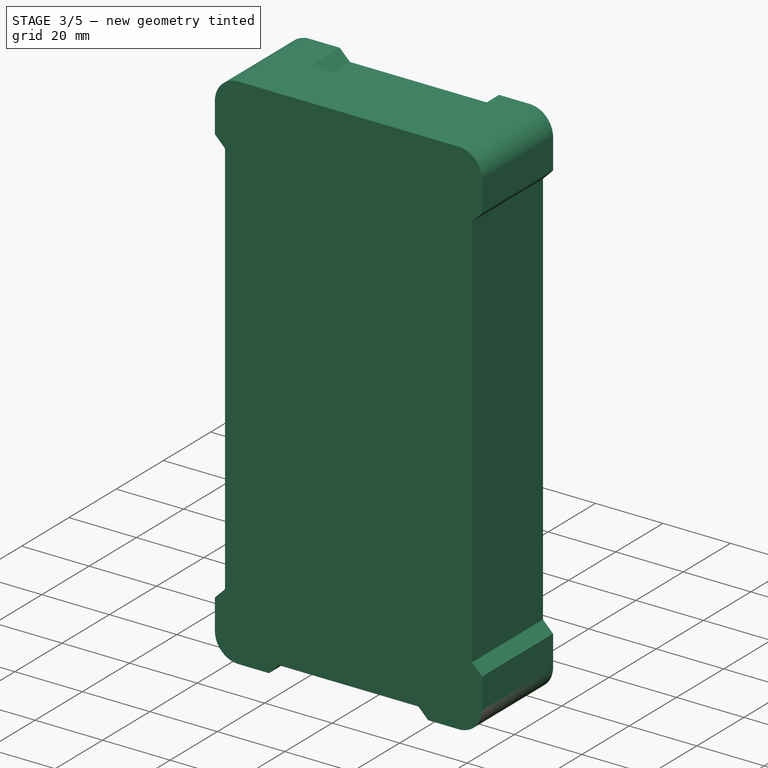
[diagram: stage 3 of 5 — iso view after this stage's code; geometry added in this stage tinted green]
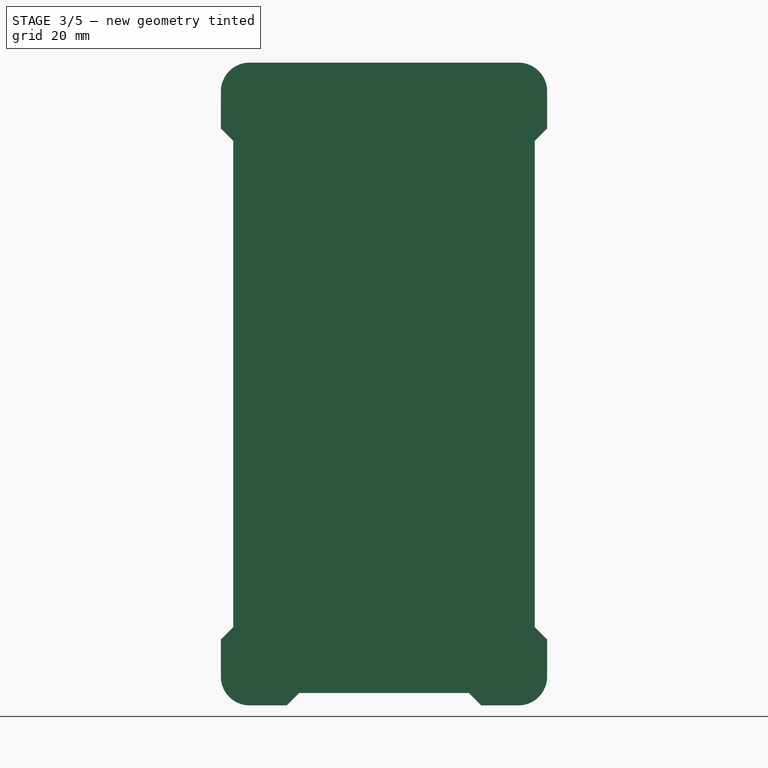
[diagram: stage 3 of 5 — front view after this stage's code; geometry added in this stage tinted green]
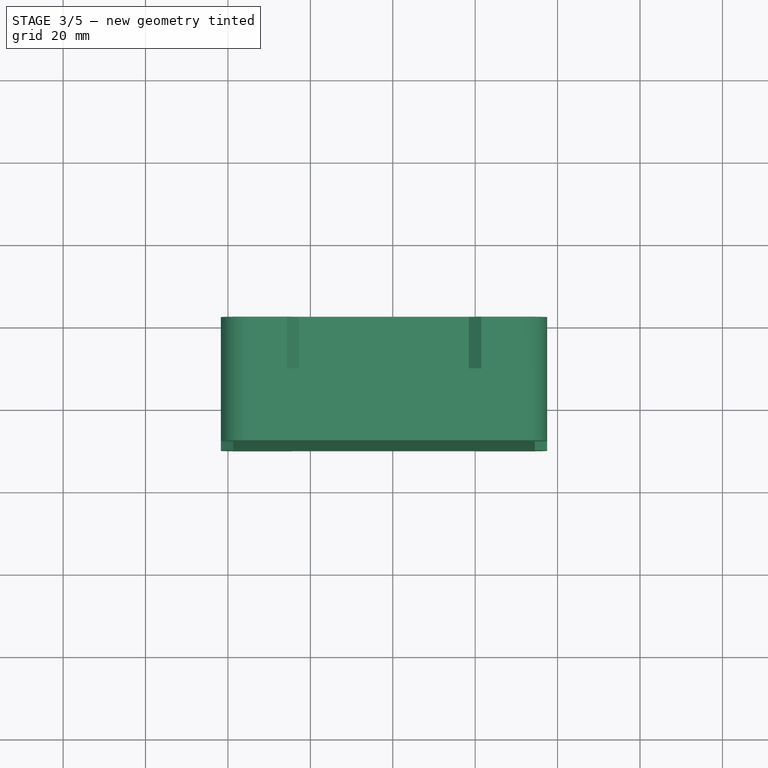
[diagram: stage 3 of 5 — top view after this stage's code; geometry added in this stage tinted green]
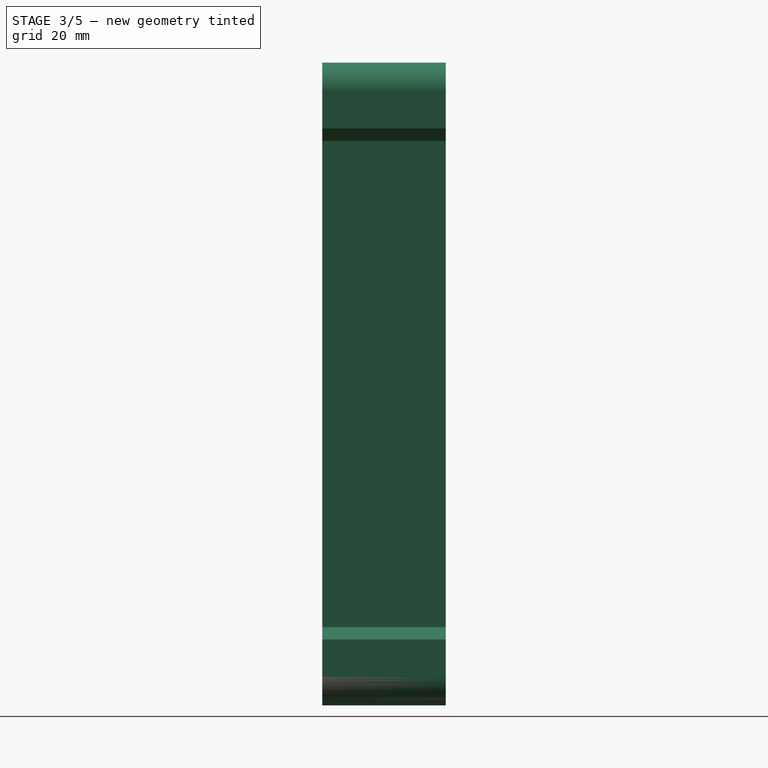
[diagram: stage 3 of 5 — right view after this stage's code; geometry added in this stage tinted green]
FEATURE [Sketcher::SketchObject] Sketch062
  ExternalGeometry = -> [Sketch036]
  MapMode = 5
  Placement = pos=(0,0,0) rot=(0.707107,0.707107,0;3.14159rad)
  Support = -> [DatumPlane003]
  expr: Constraints[14] = Spreadsheet.HomeButtonBot
  expr: Constraints[13] = Spreadsheet.HomeButtonHeight
  expr: Constraints[12] = Spreadsheet.HomeButtonWidth
  sketch-geometry (9):
    g0: ArcOfCircle CenterX=34.575 CenterY=8.5 CenterZ=0 NormalX=0 NormalY=0 NormalZ=1 AngleXU=0 Radius=3.4 StartAngle=1.5708 EndAngle=4.71239
    g1: ArcOfCircle CenterX=41.175 CenterY=8.5 CenterZ=0 NormalX=0 NormalY=0 NormalZ=1 AngleXU=0 Radius=3.4 StartAngle=4.71239 EndAngle=7.85398
    g2: LineSegment StartX=34.575 StartY=5.1 StartZ=0 EndX=41.175 EndY=5.1 EndZ=0
    g3: LineSegment StartX=34.575 StartY=11.9 StartZ=0 EndX=41.175 EndY=11.9 EndZ=0
    g4: LineSegment [constr] StartX=34.575 StartY=8.5 StartZ=0 EndX=41.175 EndY=8.5 EndZ=0
    g5: GeomPoint X=31.175 Y=8.5 Z=0
    g6: GeomPoint X=44.575 Y=8.5 Z=0
    g7: GeomPoint X=37.875 Y=11.9 Z=0
    g8: LineSegment [constr] StartX=37.875 StartY=11.9 StartZ=0 EndX=37.875 EndY=0 EndZ=0
  constraints (20):
    c: Tangent(g0,g3) = 1.5708
    c: Tangent(g0,g2) = -1.5708
    c: Tangent(g2,g1) = -1.5708
    c: Tangent(g3,g1) = 1.5708
    c: Horizontal(g2)
    c: Equal(g0,g1)
    c: Coincident(g4,g0)
    c: Coincident(g4,g1)
    c: PointOnObject(g5,g0)
    c: PointOnObject(g6,g1)
    c: PointOnObject(g5,g4)
    c: PointOnObject(g6,g4)
    c: DistanceX(g5,g6) = 13.4
    c: DistanceY(g1,g1) = 6.8
    c: DistanceY(g-3,g1) = 5.1
    c: PointOnObject(g7,g3)
    c: Symmetric(g0,g1,g7)
    c: Coincident(g8,g7)
    c: Coincident(g8,g-3)
    c: Vertical(g8)
FEATURE [PartDesign::Pocket] Pocket010
  BaseFeature = -> Pocket009
  Length = 0.45
  Length2 = 100
  Placement = pos=(0,0,0) rot=(0.57735,0.57735,0.57735;2.0944rad)
  Profile = -> Sketch062
  Type = 0
  expr: Length = Spreadsheet.HomeButtonDepth
FEATURE [Sketcher::SketchObject] Sketch063
  ExternalGeometry = -> [Sketch039,Sketch036]
  MapMode = 5
  Placement = pos=(0,0,0) rot=(0.707107,0.707107,0;3.14159rad)
  Support = -> [DatumPlane003]
  expr: Constraints[33] = Spreadsheet.FrontSpeakerTop
  expr: Constraints[32] = Spreadsheet.FrontSpeakerWidth
  expr: Constraints[19] = Spreadsheet.FrontSpeakerHeight
  expr: Constraints[18] = Spreadsheet.FrontSpeakerGap
  sketch-geometry (16):
    g0: LineSegment [constr] StartX=37.875 StartY=0 StartZ=0 EndX=37.875 EndY=153 EndZ=0
    g1: ArcOfCircle [constr] CenterX=31.575 CenterY=146.3 CenterZ=0 NormalX=0 NormalY=0 NormalZ=1 AngleXU=0 Radius=0.8 StartAngle=1.5708 EndAngle=4.71239
    g2: ArcOfCircle [constr] CenterX=44.175 CenterY=146.3 CenterZ=0 NormalX=0 NormalY=0 NormalZ=1 AngleXU=0 Radius=0.8 StartAngle=4.71239 EndAngle=7.85398
    g3: LineSegment [constr] StartX=31.575 StartY=145.5 StartZ=0 EndX=44.175 EndY=145.5 EndZ=0
    g4: LineSegment [constr] StartX=31.575 StartY=147.1 StartZ=0 EndX=44.175 EndY=147.1 EndZ=0
    g5: ArcOfCircle [constr] CenterX=31.575 CenterY=146.3 CenterZ=0 NormalX=0 NormalY=0 NormalZ=1 AngleXU=0 Radius=0.6 StartAngle=1.5708 EndAngle=4.71239
    g6: ArcOfCircle [constr] CenterX=44.175 CenterY=146.3 CenterZ=0 NormalX=0 NormalY=0 NormalZ=1 AngleXU=0 Radius=0.6 StartAngle=4.71239 EndAngle=7.85398
    g7: LineSegment [constr] StartX=31.575 StartY=145.7 StartZ=0 EndX=44.175 EndY=145.7 EndZ=0
    g8: LineSegment [constr] StartX=31.575 StartY=146.9 StartZ=0 EndX=44.175 EndY=146.9 EndZ=0
    g9: LineSegment [constr] StartX=31.575 StartY=146.3 StartZ=0 EndX=44.175 EndY=146.3 EndZ=0
    g10: ArcOfCircle CenterX=31.575 CenterY=146.3 CenterZ=0 NormalX=0 NormalY=0 NormalZ=1 AngleXU=0 Radius=0.7 StartAngle=1.5708 EndAngle=4.71239
    g11: ArcOfCircle CenterX=44.175 CenterY=146.3 CenterZ=0 NormalX=0 NormalY=0 NormalZ=1 AngleXU=0 Radius=0.7 StartAngle=4.71239 EndAngle=7.85398
    g12: LineSegment StartX=31.575 StartY=145.6 StartZ=0 EndX=44.175 EndY=145.6 EndZ=0
    g13: LineSegment StartX=31.575 StartY=147 StartZ=0 EndX=44.175 EndY=147 EndZ=0
    g14: GeomPoint X=32.375 Y=146.3 Z=0
    g15: GeomPoint X=43.375 Y=146.3 Z=0
  constraints (34):
    c: Coincident(g0,g-4)
    c: PointOnObject(g0,g-3)
    c: Vertical(g0)
    c: Tangent(g1,g4) = 1.5708
    c: Tangent(g1,g3) = -1.5708
    c: Tangent(g3,g2) = -1.5708
    c: Tangent(g4,g2) = 1.5708
    c: Horizontal(g3)
    c: Tangent(g5,g8) = 1.5708
    c: Tangent(g5,g7) = -1.5708
    c: Tangent(g7,g6) = -1.5708
    c: Tangent(g8,g6) = 1.5708
    c: Horizontal(g7)
    c: Coincident(g5,g1)
    c: Coincident(g6,g2)
    c: Coincident(g9,g1)
    c: Coincident(g9,g2)
    c: Symmetric(g1,g2,g0)
    c: DistanceY(g5,g1) = 0.2
    c: DistanceY(g5,g5) = 1.2
    c: Tangent(g10,g13) = 1.5708
    c: Tangent(g10,g12) = -1.5708
    c: Tangent(g12,g11) = -1.5708
    c: Tangent(g13,g11) = 1.5708
    c: Horizontal(g12)
    c: Coincident(g10,g1)
    c: Coincident(g11,g2)
    c: Symmetric(g6,g2,g11)
    c: PointOnObject(g14,g1)
    c: PointOnObject(g14,g9)
    c: PointOnObject(g15,g2)
    c: PointOnObject(g15,g9)
    c: DistanceX(g14,g15) = 11
    c: DistanceY(g10,g0) = 6
FEATURE [Sketcher::SketchObject] Sketch064
  ExternalGeometry = -> [Sketch039]
  MapMode = 5
  Placement = pos=(3.3e-11,37.875,0) rot=(0,0.707107,0.707107;3.14159rad)
  Support = -> [DatumPlane005]
  expr: Constraints[17] = Spreadsheet.FrontSpeakerGap / 2
  expr: Constraints[16] = Spreadsheet.FrontspeakerDepth
  expr: Constraints[15] = Spreadsheet.FrontSpeakerTop
  sketch-geometry (7):
    g0: LineSegment StartX=-146.9 StartY=0 StartZ=0 EndX=-147 EndY=-0.2 EndZ=0
    g1: LineSegment StartX=-147 StartY=-0.2 StartZ=0 EndX=-147.1 EndY=0 EndZ=0
    g2: LineSegment StartX=-147.1 StartY=0 StartZ=0 EndX=-147 EndY=0.2 EndZ=0
    g3: LineSegment StartX=-147 StartY=0.2 StartZ=0 EndX=-146.9 EndY=0 EndZ=0
    g4: LineSegment [constr] StartX=-146.9 StartY=0 StartZ=0 EndX=-147.1 EndY=0 EndZ=0
    g5: LineSegment [constr] StartX=-147 StartY=-0.2 StartZ=0 EndX=-147 EndY=0.2 EndZ=0
    g6: GeomPoint X=-147 Y=0 Z=0
  constraints (18):
    c: Coincident(g0,g1)
    c: Coincident(g1,g2)
    c: Coincident(g2,g3)
    c: Coincident(g3,g0)
    c: Equal(g0,g1)
    c: Equal(g0,g2)
    c: Equal(g0,g3)
    c: PointOnObject(g1,g-1)
    c: PointOnObject(g0,g-1)
    c: Coincident(g4,g0)
    c: Coincident(g4,g1)
    c: Coincident(g5,g0)
    c: Coincident(g5,g2)
    c: PointOnObject(g6,g5)
    c: PointOnObject(g6,g4)
    c: DistanceX(g-3,g6) = 6
    c: DistanceY(g6,g2) = 0.2
    c: DistanceX(g1,g6) = 0.1
FEATURE [PartDesign::SubtractivePipe] SubtractivePipe002
  AuxilleryCurvelinear = true
  AuxillerySpineTangent = false
  BaseFeature = -> Pocket010
  Binormal = (0,0,0)
  Mode = 0
  Placement = pos=(0,0,0) rot=(0.57735,0.57735,0.57735;2.0944rad)
  Profile = -> Sketch064
  Spine = -> Sketch063
  SpineTangent = false
  Transformation = 0
  Transition = 0
FEATURE [PartDesign::Chamfer] Chamfer003
  Base = -> SubtractivePipe002 [Edge317]
  BaseFeature = -> SubtractivePipe002
  Placement = pos=(0,0,0) rot=(0.57735,0.57735,0.57735;2.0944rad)
  Size = 0.3
  expr: Size = Spreadsheet.PowerButtonChamfer
FEATURE [PartDesign::Chamfer] Chamfer004
  Base = -> Chamfer003 [Edge17]
  BaseFeature = -> Chamfer003
  Placement = pos=(0,0,0) rot=(0.57735,0.57735,0.57735;2.0944rad)
  Size = 0.1
  expr: Size = Spreadsheet.SimKeyChamfer
FEATURE [PartDesign::Chamfer] Chamfer005
  Base = -> Chamfer004 [Edge373]
  BaseFeature = -> Chamfer004
  Placement = pos=(0,0,0) rot=(0.57735,0.57735,0.57735;2.0944rad)
  Size = 0.3
  expr: Size = Spreadsheet.VolumeChamfer
FEATURE [Sketcher::SketchObject] Sketch066
  MapMode = 5
  Placement = pos=(0,0,0) rot=(1,0,0;1.5708rad)
  sketch-geometry (8):
    g0: ArcOfCircle CenterX=6.87531 CenterY=146 CenterZ=0 NormalX=0 NormalY=0 NormalZ=1 AngleXU=0 Radius=7.5 StartAngle=1.57451 EndAngle=3.14531
    g1: ArcOfCircle CenterX=68.8747 CenterY=146 CenterZ=0 NormalX=0 NormalY=0 NormalZ=1 AngleXU=0 Radius=7.5 StartAngle=0.0036721 EndAngle=1.57447
    g2: ArcOfCircle CenterX=68.8747 CenterY=6.99997 CenterZ=0 NormalX=0 NormalY=0 NormalZ=1 AngleXU=0 Radius=7.5 StartAngle=4.70877 EndAngle=6.27956
    g3: ArcOfCircle CenterX=6.87533 CenterY=6.99999 CenterZ=0 NormalX=0 NormalY=0 NormalZ=1 AngleXU=0 Radius=7.5 StartAngle=3.14461 EndAngle=4.7154
    g4: LineSegment StartX=68.8475 StartY=-0.49998 StartZ=0 EndX=6.89795 EndY=-0.49998 EndZ=0
    g5: LineSegment StartX=-0.624639 StartY=6.97737 StartZ=0 EndX=-0.624639 EndY=145.972 EndZ=0
    g6: LineSegment StartX=6.84745 StartY=153.5 StartZ=0 EndX=68.8471 EndY=153.5 EndZ=0
    g7: LineSegment StartX=76.3746 StartY=146.028 StartZ=0 EndX=76.3746 EndY=6.9728 EndZ=0
  constraints (20):
    c: Radius(g0) = 7.5
    c: Equal(g0,g1)
    c: Equal(g1,g2)
    c: Equal(g2,g3)
    c: Coincident(g4,g2)
    c: Coincident(g4,g3)
    c: Horizontal(g4)
    c: Coincident(g5,g3)
    c: Coincident(g5,g0)
    c: Vertical(g5)
    c: Coincident(g6,g0)
    c: Coincident(g6,g1)
    c: Horizontal(g6)
    c: Coincident(g7,g1)
    c: Coincident(g7,g2)
    c: Vertical(g7)
    c: Angle(g0) = 1.5708
    c: Angle(g1) = 1.5708
    c: Angle(g2) = 1.5708
    c: Angle(g3) = 1.5708
FEATURE [Part::Feature] Shell  label="BadBase"
  shape: bbox 76.01 x 7.75 x 153.3 mm, 74 faces, 0 solids (baked)
FEATURE [Sketcher::SketchObject] Sketch067
  ExternalGeometry = -> [Shell]
  MapMode = 2
  sketch-geometry (30):
    g0: LineSegment StartX=1.26927 StartY=8.75 StartZ=0 EndX=74.4807 EndY=8.75 EndZ=0
    g1: Circle [constr] CenterX=1.26927 CenterY=8.75 CenterZ=0 NormalX=0 NormalY=0 NormalZ=1 AngleXU=0 Radius=1
    g2: Circle [constr] CenterX=-0.757913 CenterY=8.75 CenterZ=0 NormalX=0 NormalY=0 NormalZ=1 AngleXU=0 Radius=1
    g3: Circle [constr] CenterX=-1.38634 CenterY=6.61503 CenterZ=0 NormalX=0 NormalY=0 NormalZ=1 AngleXU=0 Radius=1
    g4: BSplineCurve [constr] PolesCount=3 KnotsCount=2 Degree=2 IsPeriodic=0
    g5: GeomPoint [constr] X=1.26927 Y=8.75 Z=0
    g6: GeomPoint [constr] X=-1.38634 Y=6.61503 Z=0
    g7: LineSegment [constr] StartX=37.875 StartY=13.2699 StartZ=0 EndX=37.875 EndY=-5.9187 EndZ=0
    g8: Circle [constr] CenterX=-1.38634 CenterY=6.61503 CenterZ=0 NormalX=0 NormalY=0 NormalZ=1 AngleXU=0 Radius=0.4
    g9: Circle [constr] CenterX=-2.76171 CenterY=2.86914 CenterZ=0 NormalX=0 NormalY=0 NormalZ=1 AngleXU=0 Radius=0.4
    g10: Circle [constr] CenterX=0.186462 CenterY=-0.3 CenterZ=0 NormalX=0 NormalY=0 NormalZ=1 AngleXU=0 Radius=0.4
    g11: BSplineCurve PolesCount=3 KnotsCount=2 Degree=2 IsPeriodic=0
    g12: GeomPoint [constr] X=-1.38634 Y=6.61503 Z=0
    g13: GeomPoint [constr] X=0.186462 Y=-0.3 Z=0
    g14: LineSegment StartX=0.186462 StartY=-0.3 StartZ=0 EndX=75.5635 EndY=-0.3 EndZ=0
    g15: Circle [constr] CenterX=74.4807 CenterY=8.75 CenterZ=0 NormalX=0 NormalY=0 NormalZ=1 AngleXU=0 Radius=2
    g16: Circle [constr] CenterX=76.5079 CenterY=8.75 CenterZ=0 NormalX=0 NormalY=0 NormalZ=1 AngleXU=0 Radius=2
    g17: Circle [constr] CenterX=77.1363 CenterY=6.61503 CenterZ=0 NormalX=0 NormalY=0 NormalZ=1 AngleXU=0 Radius=2
    g18: BSplineCurve [constr] PolesCount=3 KnotsCount=2 Degree=2 IsPeriodic=0
    g19: GeomPoint [constr] X=74.4807 Y=8.75 Z=0
    g20: GeomPoint [constr] X=77.1363 Y=6.61503 Z=0
    g21: Circle [constr] CenterX=77.1363 CenterY=6.61503 CenterZ=0 NormalX=0 NormalY=0 NormalZ=1 AngleXU=0 Radius=0.7
    g22: Circle [constr] CenterX=78.5117 CenterY=2.86914 CenterZ=0 NormalX=0 NormalY=0 NormalZ=1 AngleXU=0 Radius=0.7
    g23: Circle [constr] CenterX=75.5635 CenterY=-0.3 CenterZ=0 NormalX=0 NormalY=0 NormalZ=1 AngleXU=0 Radius=0.7
    g24: BSplineCurve PolesCount=3 KnotsCount=2 Degree=2 IsPeriodic=0
    g25: GeomPoint [constr] X=77.1363 Y=6.61503 Z=0
    g26: GeomPoint [constr] X=75.5635 Y=-0.3 Z=0
    g27: Circle [constr] CenterX=37.875 CenterY=7.75 CenterZ=0 NormalX=0 NormalY=0 NormalZ=1 AngleXU=0 Radius=36.6194
    g28: LineSegment StartX=-1.38634 StartY=6.61503 StartZ=0 EndX=1.26927 EndY=8.75 EndZ=0
    g29: LineSegment StartX=77.1363 StartY=6.61503 StartZ=0 EndX=74.4807 EndY=8.75 EndZ=0
  constraints (56):
    c: Horizontal(g0)
    c: Coincident(g1,g0)
    c: Radius(g1) = 1
    c: Equal(g1,g2)
    c: Equal(g1,g3)
    c: InternalAlignment(g1,g4)
    c: InternalAlignment(g2,g4)
    c: InternalAlignment(g3,g4)
    c: InternalAlignment(g5,g4)
    c: InternalAlignment(g6,g4)
    c: Vertical(g7)
    c: PointOnObject(g2,g0)
    c: Coincident(g8,g3)
    c: Radius(g8) = 0.4
    c: Equal(g8,g9)
    c: Equal(g8,g10)
    c: InternalAlignment(g8,g11)
    c: InternalAlignment(g9,g11)
    c: InternalAlignment(g10,g11)
    c: InternalAlignment(g12,g11)
    c: InternalAlignment(g13,g11)
    c: Coincident(g14,g10)
    c: Horizontal(g14)
    c: Coincident(g15,g0)
    c: Radius(g15) = 2
    c: Equal(g15,g16)
    c: Equal(g15,g17)
    c: InternalAlignment(g15,g18)
    c: InternalAlignment(g16,g18)
    c: InternalAlignment(g17,g18)
    c: InternalAlignment(g19,g18)
    c: InternalAlignment(g20,g18)
    c: Coincident(g21,g17)
    c: Radius(g21) = 0.7
    c: Equal(g21,g22)
    c: Equal(g21,g23)
    c: Coincident(g23,g14)
    c: InternalAlignment(g21,g24)
    c: InternalAlignment(g22,g24)
    c: InternalAlignment(g23,g24)
    c: InternalAlignment(g25,g24)
    c: InternalAlignment(g26,g24)
    c: Symmetric(g17,g3,g7)
    c: Symmetric(g22,g9,g7)
    c: Symmetric(g2,g16,g7)
    c: Symmetric(g14,g10,g7)
    c: DistanceY(g10,g-1) = 0.3
    c: Distance(g-3,g0) = 1
    c: PointOnObject(g-4,g7)
    c: PointOnObject(g0,g27)
    c: Coincident(g27,g-4)
    c: PointOnObject(g0,g27)
    c: Coincident(g28,g3)
    c: Coincident(g28,g0)
    c: Coincident(g29,g17)
    c: Coincident(g29,g0)
FEATURE [Part::Extrusion] Extrude  label="Lengthwise"
  Base = -> Sketch067
  Dir = (0,0,1)
  DirMode = 2
  FaceMakerClass = Part::FaceMakerBullseye
  LengthFwd = 154.5
  LengthRev = 1.5
  Solid = true
  Symmetric = false
  expr: LengthFwd = Spreadsheet.Length + 1.5
FEATURE [Sketcher::SketchObject] Sketch070
  ExternalGeometry = -> [Shell]
  Placement = pos=(0,0,0) rot=(1,0,0;1.5708rad)
  sketch-geometry (34):
    g0: LineSegment [constr] StartX=-1.71697 StartY=-1.5 StartZ=0 EndX=77.467 EndY=-1.5 EndZ=0
    g1: LineSegment [constr] StartX=77.467 StartY=-1.5 StartZ=0 EndX=77.467 EndY=154.5 EndZ=0
    g2: LineSegment [constr] StartX=77.467 StartY=154.5 StartZ=0 EndX=-1.71697 EndY=154.5 EndZ=0
    g3: LineSegment [constr] StartX=-1.71697 StartY=154.5 StartZ=0 EndX=-1.71697 EndY=-1.5 EndZ=0
    g4: LineSegment [constr] StartX=5.28303 StartY=154.5 StartZ=0 EndX=70.467 EndY=154.5 EndZ=0
    g5: LineSegment [constr] StartX=77.467 StartY=147.5 StartZ=0 EndX=77.467 EndY=5.5 EndZ=0
    g6: LineSegment [constr] StartX=70.467 StartY=-1.5 StartZ=0 EndX=5.28303 EndY=-1.5 EndZ=0
    g7: LineSegment [constr] StartX=-1.71697 StartY=5.5 StartZ=0 EndX=-1.71697 EndY=147.5 EndZ=0
    g8: ArcOfCircle CenterX=5.28303 CenterY=147.5 CenterZ=0 NormalX=0 NormalY=0 NormalZ=1 AngleXU=0 Radius=7 StartAngle=1.5708 EndAngle=3.14159
    g9: ArcOfCircle CenterX=70.467 CenterY=147.5 CenterZ=0 NormalX=0 NormalY=0 NormalZ=1 AngleXU=0 Radius=7 StartAngle=0 EndAngle=1.5708
    g10: ArcOfCircle CenterX=70.467 CenterY=5.5 CenterZ=0 NormalX=0 NormalY=0 NormalZ=1 AngleXU=0 Radius=7 StartAngle=4.71239 EndAngle=6.28319
    g11: ArcOfCircle CenterX=5.28303 CenterY=5.5 CenterZ=0 NormalX=0 NormalY=0 NormalZ=1 AngleXU=0 Radius=7 StartAngle=3.14159 EndAngle=4.71239
    g12: LineSegment StartX=-1.71697 StartY=5.5 StartZ=0 EndX=-1.71697 EndY=14.5 EndZ=0
    g13: LineSegment StartX=-1.71697 StartY=14.5 StartZ=0 EndX=1.28303 EndY=17.5 EndZ=0
    g14: LineSegment StartX=1.28303 StartY=17.5 StartZ=0 EndX=1.28303 EndY=135.5 EndZ=0
    g15: LineSegment StartX=1.28303 StartY=135.5 StartZ=0 EndX=-1.71697 EndY=138.5 EndZ=0
    g16: LineSegment StartX=-1.71697 StartY=138.5 StartZ=0 EndX=-1.71697 EndY=147.5 EndZ=0
    g17: LineSegment StartX=5.28303 StartY=154.5 StartZ=0 EndX=14.283 EndY=154.5 EndZ=0
    g18: LineSegment StartX=14.283 StartY=154.5 StartZ=0 EndX=17.283 EndY=151.5 EndZ=0
    g19: LineSegment StartX=17.283 StartY=151.5 StartZ=0 EndX=58.467 EndY=151.5 EndZ=0
    g20: LineSegment StartX=58.467 StartY=151.5 StartZ=0 EndX=61.467 EndY=154.5 EndZ=0
    g21: LineSegment StartX=61.467 StartY=154.5 StartZ=0 EndX=70.467 EndY=154.5 EndZ=0
    g22: LineSegment StartX=77.467 StartY=147.5 StartZ=0 EndX=77.467 EndY=138.5 EndZ=0
    g23: LineSegment StartX=77.467 StartY=138.5 StartZ=0 EndX=74.467 EndY=135.5 EndZ=0
    g24: LineSegment StartX=74.467 StartY=135.5 StartZ=0 EndX=74.467 EndY=17.5 EndZ=0
    g25: LineSegment StartX=74.467 StartY=17.5 StartZ=0 EndX=77.467 EndY=14.5 EndZ=0
    g26: LineSegment StartX=77.467 StartY=14.5 StartZ=0 EndX=77.467 EndY=5.5 EndZ=0
    g27: LineSegment StartX=70.467 StartY=-1.5 StartZ=0 EndX=61.467 EndY=-1.5 EndZ=0
    g28: LineSegment StartX=61.467 StartY=-1.5 StartZ=0 EndX=58.467 EndY=1.5 EndZ=0
    g29: LineSegment StartX=58.467 StartY=1.5 StartZ=0 EndX=17.283 EndY=1.5 EndZ=0
    g30: LineSegment StartX=17.283 StartY=1.5 StartZ=0 EndX=14.283 EndY=-1.5 EndZ=0
    g31: LineSegment StartX=14.283 StartY=-1.5 StartZ=0 EndX=5.28303 EndY=-1.5 EndZ=0
    g32: LineSegment [constr] StartX=37.875 StartY=-1.5 StartZ=0 EndX=37.875 EndY=76.5 EndZ=0
    g33: LineSegment [constr] StartX=37.875 StartY=76.5 StartZ=0 EndX=-1.71697 EndY=76.5 EndZ=0
  constraints (92):
    c: Coincident(g0,g1)
    c: Coincident(g1,g2)
    c: Coincident(g2,g3)
    c: Coincident(g3,g0)
    c: Horizontal(g2)
    c: Vertical(g1)
    c: Vertical(g3)
    c: Horizontal(g4)
    c: Vertical(g5)
    c: Vertical(g7)
    c: Tangent(g7,g8) = 1.5708
    c: Tangent(g4,g8) = 1.5708
    c: Tangent(g4,g9) = 1.5708
    c: Tangent(g5,g9) = 1.5708
    c: Tangent(g5,g10) = 1.5708
    c: Tangent(g6,g10) = 1.5708
    c: Tangent(g6,g11) = 1.5708
    c: Tangent(g7,g11) = 1.5708
    c: Radius(g8) = 7
    c: Equal(g8,g9)
    c: Equal(g8,g10)
    c: Equal(g8,g11)
    c: PointOnObject(g6,g0)
    c: PointOnObject(g7,g3)
    c: PointOnObject(g4,g2)
    c: PointOnObject(g5,g1)
    c: DistanceX(g1) = 77.467
    c: DistanceY(g1) = 154.5
    c: DistanceX(g0) = -1.71697
    c: DistanceY(g0) = -1.5
    c: Coincident(g7,g12)
    c: Vertical(g12)
    c: Coincident(g12,g13)
    c: Coincident(g13,g14)
    c: Vertical(g14)
    c: Coincident(g14,g15)
    c: Coincident(g15,g16)
    c: Coincident(g16,g7)
    c: Coincident(g4,g17)
    c: Coincident(g17,g18)
    c: Coincident(g18,g19)
    c: Horizontal(g19)
    c: Coincident(g19,g20)
    c: Coincident(g20,g21)
    c: Coincident(g21,g4)
    c: Horizontal(g21)
    c: Horizontal(g17)
    c: Coincident(g5,g22)
    c: Vertical(g22)
    c: Coincident(g22,g23)
    c: Coincident(g23,g24)
    c: Vertical(g24)
    c: Coincident(g24,g25)
    c: Coincident(g25,g26)
    c: Coincident(g26,g5)
    c: Vertical(g26)
    c: Coincident(g6,g27)
    c: Horizontal(g27)
    c: Coincident(g27,g28)
    c: Coincident(g28,g29)
    c: Horizontal(g29)
    c: Coincident(g29,g30)
    c: Coincident(g30,g31)
    c: Coincident(g31,g6)
    c: PointOnObject(g32,g0)
    c: Vertical(g32)
    c: Coincident(g33,g32)
    c: PointOnObject(g33,g3)
    c: Horizontal(g33)
    c: Symmetric(g2,g0,g32)
    c: Symmetric(g30,g27,g32)
    c: Horizontal(g31)
    c: DistanceY(g0) = -1.5
    c: Symmetric(g29,g28,g32)
    c: Symmetric(g12,g15,g33)
    c: Symmetric(g14,g13,g33)
    c: Equal(g17,g21)
    c: Equal(g17,g31)
    c: Equal(g12,g26)
    c: Equal(g26,g22)
    c: Equal(g30,g18)
    c: Equal(g18,g20)
    c: Equal(g29,g19)
    c: Equal(g13,g25)
    c: Equal(g25,g23)
    c: Equal(g24,g14)
    c: Equal(g30,g13)
    c: Equal(g31,g12)
    c: Angle(g13) = 0.785398
    c: Parallel(g13,g30)
    c: DistanceY(g0,g12) = 16
    c: Distance(g29,g0) = 3
FEATURE [Part::Extrusion] Extrude003  label="Depthwise"
  Base = -> Sketch070
  Dir = (0,-1,0)
  DirMode = 2
  FaceMakerClass = Part::FaceMakerBullseye
  LengthFwd = 10
  LengthRev = 20
  Solid = true
  Symmetric = false
FEATURE [Sketcher::SketchObject] Sketch072
  ExternalGeometry = -> [Shell]
  MapMode = 5
  Placement = pos=(0,0,154.5) rot=(0,0,1;0rad)
  Support = -> [Extrude]
  sketch-geometry (7):
    g0: LineSegment [constr] StartX=37.875 StartY=7.75 StartZ=0 EndX=37.875 EndY=0 EndZ=0
    g1: LineSegment StartX=15 StartY=7.45 StartZ=0 EndX=60.75 EndY=7.45 EndZ=0
    g2: LineSegment StartX=65.75 StartY=2.45 StartZ=0 EndX=65.75 EndY=-10 EndZ=0
    g3: LineSegment StartX=65.75 StartY=-10 StartZ=0 EndX=10 EndY=-10 EndZ=0
    g4: LineSegment StartX=10 StartY=-10 StartZ=0 EndX=10 EndY=2.45 EndZ=0
    g5: ArcOfCircle CenterX=15 CenterY=2.45 CenterZ=0 NormalX=0 NormalY=0 NormalZ=1 AngleXU=0 Radius=5 StartAngle=1.5708 EndAngle=3.14159
    g6: ArcOfCircle CenterX=60.75 CenterY=2.45 CenterZ=0 NormalX=0 NormalY=0 NormalZ=1 AngleXU=0 Radius=5 StartAngle=0 EndAngle=1.5708
  constraints (19):
    c: Coincident(g0,g-3)
    c: PointOnObject(g0,g-1)
    c: Vertical(g0)
    c: Coincident(g2,g3)
    c: Coincident(g3,g4)
    c: Horizontal(g1)
    c: Horizontal(g3)
    c: Vertical(g2)
    c: Vertical(g4)
    c: Tangent(g4,g5) = 1.5708
    c: Tangent(g1,g5) = 1.5708
    c: Tangent(g1,g6) = 1.5708
    c: Tangent(g2,g6) = 1.5708
    c: Radius(g6) = 5
    c: Equal(g6,g5)
    c: Distance(g4,g-2) = 10
    c: Symmetric(g4,g2,g0)
    c: Distance(g0,g1) = 0.3
    c: Distance(g2,g-1) = 10
FEATURE [Part::Extrusion] Extrude005  label="Tophole"
  Base = -> Sketch072
  Dir = (0,0,1)
  DirMode = 2
  FaceMakerClass = Part::FaceMakerBullseye
  LengthFwd = 0
  LengthRev = 20
  Solid = true
  Symmetric = false
FEATURE [Part::FeaturePython] Clone001  label="Phone"  # Draft clone (typed FeaturePython)
  AttacherType = Attacher::AttachEngine3D
  Fuse = false
  Objects = -> [Chamfer005]
  Scale = (1,1,1)
FEATURE [Sketcher::SketchObject] Sketch073
  ExternalGeometry = -> [Clone001]
  Placement = pos=(0,0,0) rot=(1,0,0;1.5708rad)
  sketch-geometry (9):
    g0: LineSegment StartX=33.625 StartY=141.75 StartZ=0 EndX=42.125 EndY=141.75 EndZ=0
    g1: LineSegment StartX=46.125 StartY=137.75 StartZ=0 EndX=46.125 EndY=123.1 EndZ=0
    g2: LineSegment StartX=42.125 StartY=119.1 StartZ=0 EndX=33.625 EndY=119.1 EndZ=0
    g3: LineSegment StartX=29.625 StartY=123.1 StartZ=0 EndX=29.625 EndY=137.75 EndZ=0
    g4: ArcOfCircle CenterX=33.625 CenterY=137.75 CenterZ=0 NormalX=0 NormalY=0 NormalZ=1 AngleXU=0 Radius=4 StartAngle=1.5708 EndAngle=3.14159
    g5: ArcOfCircle CenterX=42.125 CenterY=137.75 CenterZ=0 NormalX=0 NormalY=0 NormalZ=1 AngleXU=0 Radius=4 StartAngle=0 EndAngle=1.5708
    g6: ArcOfCircle CenterX=42.125 CenterY=123.1 CenterZ=0 NormalX=0 NormalY=0 NormalZ=1 AngleXU=0 Radius=4 StartAngle=4.71239 EndAngle=6.28319
    g7: ArcOfCircle CenterX=33.625 CenterY=123.1 CenterZ=0 NormalX=0 NormalY=0 NormalZ=1 AngleXU=0 Radius=4 StartAngle=3.14159 EndAngle=4.71239
    g8: LineSegment [constr] StartX=37.875 StartY=139.75 StartZ=0 EndX=37.875 EndY=124.5 EndZ=0
  constraints (22):
    c: Horizontal(g0)
    c: Horizontal(g2)
    c: Vertical(g1)
    c: Vertical(g3)
    c: Tangent(g3,g4) = 1.5708
    c: Tangent(g0,g4) = 1.5708
    c: Tangent(g0,g5) = 1.5708
    c: Tangent(g1,g5) = 1.5708
    c: Tangent(g1,g6) = 1.5708
    c: Tangent(g2,g6) = 1.5708
    c: Tangent(g2,g7) = 1.5708
    c: Tangent(g3,g7) = 1.5708
    c: Radius(g5) = 4
    c: Equal(g5,g4)
    c: Equal(g5,g7)
    c: Equal(g5,g6)
    c: Distance(g-3,g0) = 2
    c: Distance(g-4,g1) = 2
    c: Coincident(g8,g-3)
    c: Coincident(g8,g-5)
    c: Symmetric(g4,g5,g8)
    c: Distance(g-6,g2) = 2
FEATURE [Part::Extrusion] Extrude006
  Base = -> Sketch073
  Dir = (0,-1,0)
  DirMode = 2
  FaceMakerClass = Part::FaceMakerBullseye
  LengthFwd = 0
  LengthRev = 10
  Solid = true
  Symmetric = false
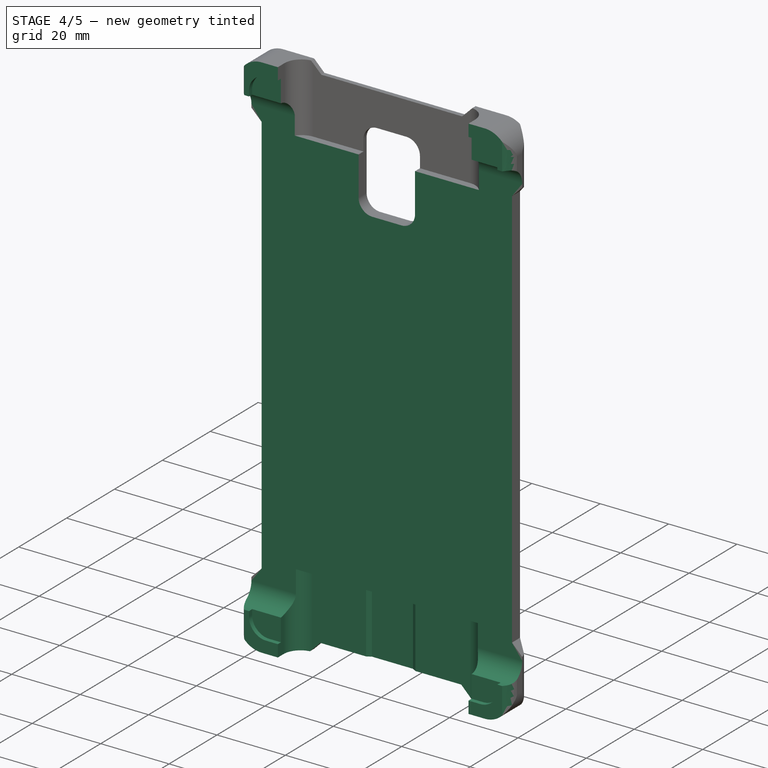
[diagram: stage 4 of 5 — iso view after this stage's code; geometry added in this stage tinted green]
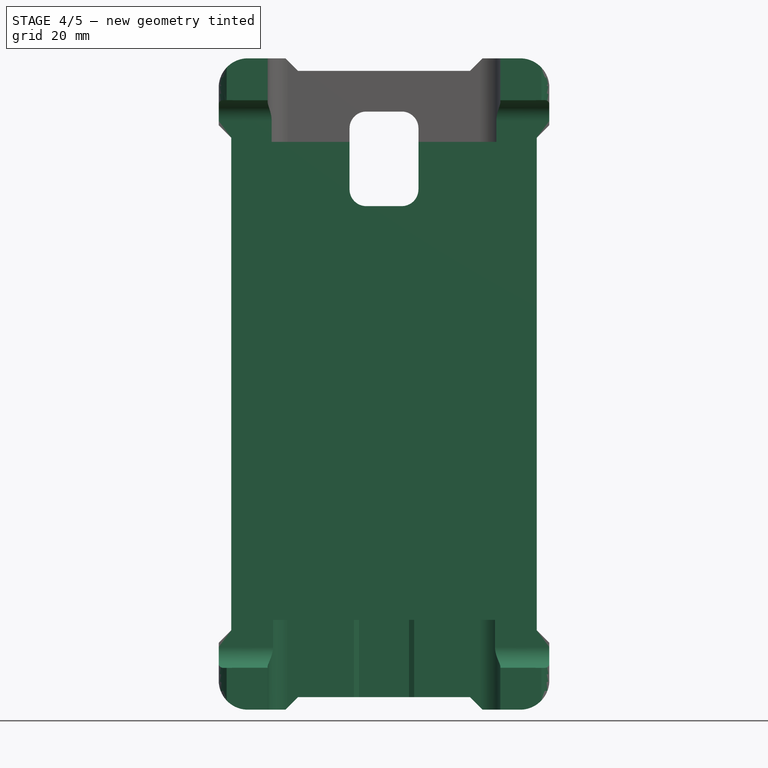
[diagram: stage 4 of 5 — front view after this stage's code; geometry added in this stage tinted green]
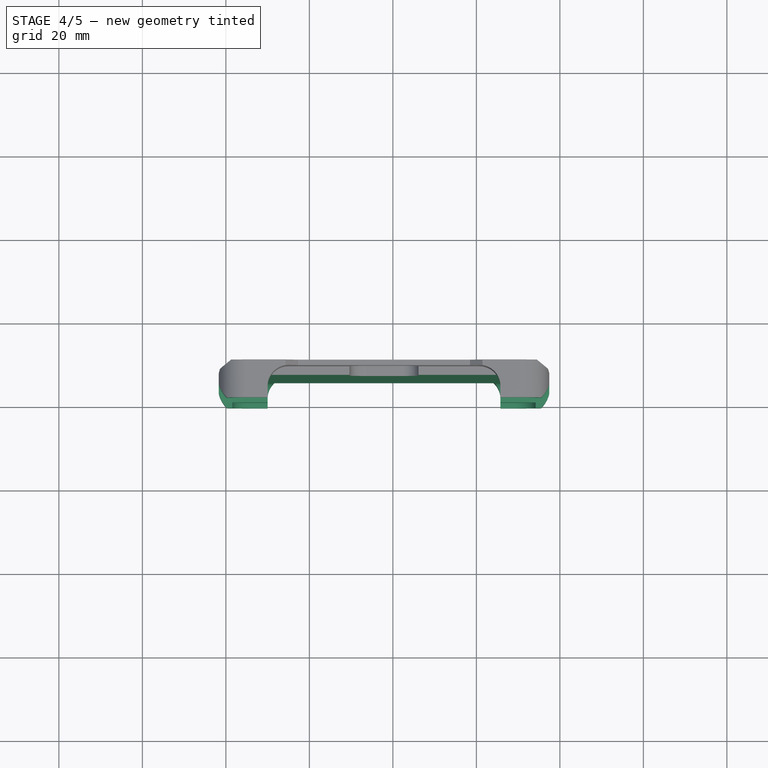
[diagram: stage 4 of 5 — top view after this stage's code; geometry added in this stage tinted green]
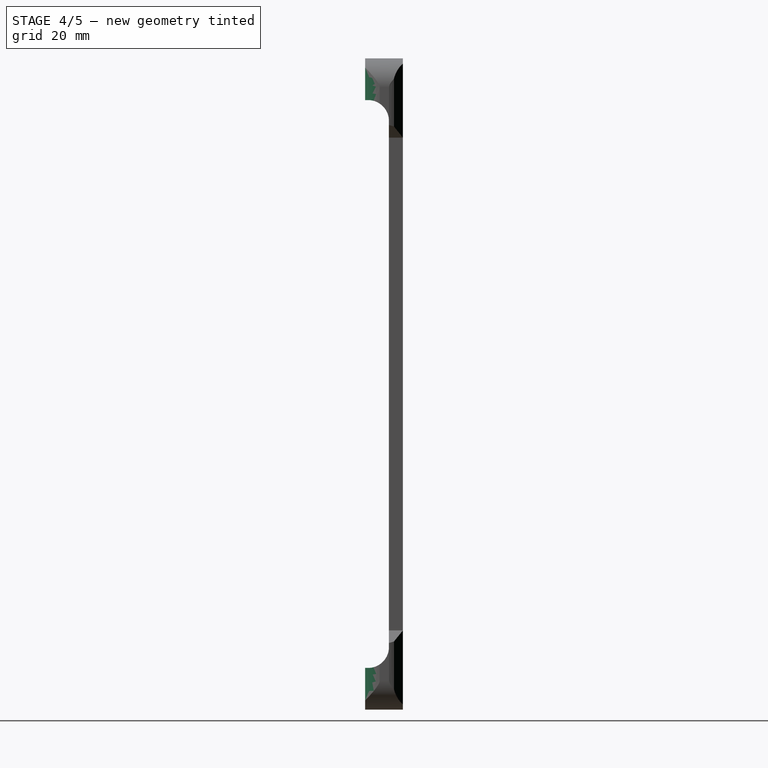
[diagram: stage 4 of 5 — right view after this stage's code; geometry added in this stage tinted green]
FEATURE [Sketcher::SketchObject] Sketch068
  ExternalGeometry = -> [Extrude]
  Placement = pos=(0,0,0) rot=(0.57735,0.57735,0.57735;2.0944rad)
  sketch-geometry (9):
    g0: LineSegment [constr] StartX=0.807412 StartY=152.307 StartZ=0 EndX=0.807412 EndY=0.692588 EndZ=0
    g1: LineSegment [constr] StartX=5.40587 StartY=0.177275 StartZ=0 EndX=5.40587 EndY=152.823 EndZ=0
    g2: LineSegment StartX=-1 StartY=8.5 StartZ=0 EndX=0.405865 EndY=8.5 EndZ=0
    g3: LineSegment StartX=5.40587 StartY=13.5 StartZ=0 EndX=5.40587 EndY=139.5 EndZ=0
    g4: LineSegment StartX=0.405865 StartY=144.5 StartZ=0 EndX=-1 EndY=144.5 EndZ=0
    g5: LineSegment [constr] StartX=-1 StartY=144.5 StartZ=0 EndX=-1 EndY=-1.5 EndZ=0
    g6: ArcOfCircle CenterX=0.405865 CenterY=13.5 CenterZ=0 NormalX=0 NormalY=0 NormalZ=1 AngleXU=0 Radius=5 StartAngle=4.71239 EndAngle=6.28319
    g7: ArcOfCircle CenterX=0.405865 CenterY=139.5 CenterZ=0 NormalX=0 NormalY=0 NormalZ=1 AngleXU=0 Radius=5 StartAngle=0 EndAngle=1.5708
    g8: LineSegment StartX=-1 StartY=8.5 StartZ=0 EndX=-1 EndY=144.5 EndZ=0
  constraints (16):
    c: Horizontal(g2)
    c: Vertical(g3)
    c: Horizontal(g4)
    c: Coincident(g5,g4)
    c: Vertical(g5)
    c: PointOnObject(g2,g5)
    c: Tangent(g2,g6) = -1.5708
    c: Tangent(g3,g6) = -1.5708
    c: Tangent(g3,g7) = -1.5708
    c: Tangent(g4,g7) = -1.5708
    c: Radius(g7) = 5
    c: Equal(g7,g6)
    c: Distance(g5,g2) = 10
    c: Coincident(g8,g2)
    c: Coincident(g8,g4)
    c: PointOnObject(g3,g1)
FEATURE [Part::Extrusion] Extrude001  label="Sidehole"
  Base = -> Sketch068
  Dir = (1,0,0)
  DirMode = 2
  FaceMakerClass = Part::FaceMakerBullseye
  LengthFwd = 100
  LengthRev = 10
  Solid = true
  Symmetric = false
FEATURE [Sketcher::SketchObject] Sketch069
  ExternalGeometry = -> [Shell]
  Placement = pos=(0,0,0) rot=(1,0,0;1.5708rad)
  sketch-geometry (10):
    g0: LineSegment StartX=1.5684 StartY=7.02073 StartZ=0 EndX=1.5684 EndY=145.979 EndZ=0
    g1: LineSegment StartX=6.5684 StartY=150.979 StartZ=0 EndX=69.1816 EndY=150.979 EndZ=0
    g2: LineSegment StartX=74.1816 StartY=145.979 StartZ=0 EndX=74.1816 EndY=7.02073 EndZ=0
    g3: LineSegment StartX=69.1816 StartY=2.02073 StartZ=0 EndX=6.5684 EndY=2.02073 EndZ=0
    g4: ArcOfCircle CenterX=6.5684 CenterY=7.02073 CenterZ=0 NormalX=0 NormalY=0 NormalZ=1 AngleXU=0 Radius=5 StartAngle=3.14159 EndAngle=4.71239
    g5: ArcOfCircle CenterX=6.5684 CenterY=145.979 CenterZ=0 NormalX=0 NormalY=0 NormalZ=1 AngleXU=0 Radius=5 StartAngle=1.5708 EndAngle=3.14159
    g6: ArcOfCircle CenterX=69.1816 CenterY=145.979 CenterZ=0 NormalX=0 NormalY=0 NormalZ=1 AngleXU=0 Radius=5 StartAngle=0 EndAngle=1.5708
    g7: ArcOfCircle CenterX=69.1816 CenterY=7.02073 CenterZ=0 NormalX=0 NormalY=0 NormalZ=1 AngleXU=0 Radius=5 StartAngle=4.71239 EndAngle=6.28319
    g8: LineSegment [constr] StartX=1.7353 StartY=76.5 StartZ=0 EndX=37.875 EndY=76.5 EndZ=0
    g9: LineSegment [constr] StartX=37.875 StartY=1.7353 StartZ=0 EndX=37.875 EndY=76.5 EndZ=0
  constraints (21):
    c: Vertical(g0)
    c: Vertical(g2)
    c: Tangent(g3,g4) = 1.5708
    c: Tangent(g0,g4) = 1.5708
    c: Tangent(g0,g5) = 1.5708
    c: Tangent(g1,g5) = 1.5708
    c: Tangent(g1,g6) = 1.5708
    c: Tangent(g2,g6) = 1.5708
    c: Tangent(g2,g7) = 1.5708
    c: Tangent(g3,g7) = 1.5708
    c: Radius(g4) = 5
    c: Equal(g4,g5)
    c: Equal(g4,g6)
    c: Equal(g4,g7)
    c: Vertical(g9)
    c: Symmetric(g7,g4,g9)
    c: Symmetric(g7,g6,g8)
    c: Horizontal(g1)
    c: Coincident(g9,g8)
    c: Coincident(g-3,g9)
    c: Symmetric(g-4,g-4,g8)
FEATURE [Part::Extrusion] Extrude002  label="Screenhole"
  Base = -> Sketch069
  Dir = (0,-1,0)
  DirMode = 2
  FaceMakerClass = Part::FaceMakerBullseye
  LengthFwd = 4
  LengthRev = 1
  Solid = true
  Symmetric = false
FEATURE [Sketcher::SketchObject] Sketch071
  ExternalGeometry = -> [Shell]
  sketch-geometry (15):
    g0: LineSegment [constr] StartX=37.875 StartY=7.75 StartZ=0 EndX=37.875 EndY=0 EndZ=0
    g1: LineSegment [constr] StartX=0 StartY=0 StartZ=0 EndX=75.75 EndY=0 EndZ=0
    g2: LineSegment [constr] StartX=75.75 StartY=0 StartZ=0 EndX=75.75 EndY=7.75 EndZ=0
    g3: LineSegment [constr] StartX=75.75 StartY=7.75 StartZ=0 EndX=0 EndY=7.75 EndZ=0
    g4: LineSegment [constr] StartX=0 StartY=7.75 StartZ=0 EndX=0 EndY=0 EndZ=0
    g5: LineSegment StartX=10 StartY=-10 StartZ=0 EndX=65.75 EndY=-10 EndZ=0
    g6: LineSegment StartX=65.75 StartY=-10 StartZ=0 EndX=65.75 EndY=2.05 EndZ=0
    g7: LineSegment StartX=10 StartY=2.05 StartZ=0 EndX=10 EndY=-10 EndZ=0
    g8: ArcOfCircle CenterX=15 CenterY=2.05 CenterZ=0 NormalX=0 NormalY=0 NormalZ=1 AngleXU=0 Radius=5 StartAngle=1.5708 EndAngle=3.14159
    g9: ArcOfCircle CenterX=60.75 CenterY=2.05 CenterZ=0 NormalX=0 NormalY=0 NormalZ=1 AngleXU=0 Radius=5 StartAngle=0 EndAngle=1.5708
    g10: LineSegment StartX=15 StartY=7.05 StartZ=0 EndX=30.6626 EndY=7.05 EndZ=0
    g11: LineSegment StartX=30.6626 StartY=7.05 StartZ=0 EndX=31.875 EndY=7.75 EndZ=0
    g12: LineSegment StartX=31.875 StartY=7.75 StartZ=0 EndX=43.875 EndY=7.75 EndZ=0
    g13: LineSegment StartX=43.875 StartY=7.75 StartZ=0 EndX=45.0874 EndY=7.05 EndZ=0
    g14: LineSegment StartX=45.0874 StartY=7.05 StartZ=0 EndX=60.75 EndY=7.05 EndZ=0
  constraints (42):
    c: Coincident(g0,g-3)
    c: Vertical(g0)
    c: PointOnObject(g0,g-1)
    c: Coincident(g1,g2)
    c: Coincident(g2,g3)
    c: Coincident(g3,g4)
    c: Coincident(g4,g1)
    c: Horizontal(g1)
    c: Horizontal(g3)
    c: Vertical(g2)
    c: Vertical(g4)
    c: Coincident(g1,g-1)
    c: Symmetric(g3,g2,g0)
    c: Coincident(g5,g6)
    c: Coincident(g7,g5)
    c: Horizontal(g5)
    c: Vertical(g6)
    c: Vertical(g7)
    c: Tangent(g7,g8) = -1.5708
    c: Tangent(g6,g9) = -1.5708
    c: Radius(g9) = 5
    c: Equal(g9,g8)
    c: Distance(g7,g4) = 10
    c: Symmetric(g6,g7,g0)
    c: Distance(g5,g1) = 10
    c: Horizontal(g10)
    c: Coincident(g10,g11)
    c: Coincident(g11,g12)
    c: Horizontal(g12)
    c: Coincident(g12,g13)
    c: Coincident(g13,g14)
    c: Horizontal(g14)
    c: Coincident(g14,g9)
    c: Coincident(g10,g8)
    c: Tangent(g8,g10)
    c: Tangent(g14,g9)
    c: Symmetric(g10,g13,g0)
    c: Distance(g12) = 12
    c: Distance(g8,g3) = 0.7
    c: Equal(g11,g13)
    c: Angle(g11) = 0.523599
    c: PointOnObject(g12,g3)
FEATURE [Part::Extrusion] Extrude004  label="Bottomhole"
  Base = -> Sketch071
  Dir = (0,0,1)
  DirMode = 2
  FaceMakerClass = Part::FaceMakerBullseye
  LengthFwd = 20
  LengthRev = 10
  Solid = true
  Symmetric = false
FEATURE [Part::MultiCommon] Common
  Shapes = -> [Extrude,Extrude003]
FEATURE [Part::Cut] Cut
  Base = -> Common
  Tool = -> Extrude001
FEATURE [Part::Cut] Cut001
  Base = -> Cut
  Tool = -> Extrude002
FEATURE [Part::Cut] Cut002
  Base = -> Cut001
  Tool = -> Extrude004
FEATURE [Part::Cut] Cut003
  Base = -> Cut002
  Tool = -> Extrude005
FEATURE [Part::Cut] Cut004
  Base = -> Cut003
  Tool = -> Extrude006
FEATURE [Part::Cut] Cut005
  Base = -> Cut004
  Tool = -> Extrude007
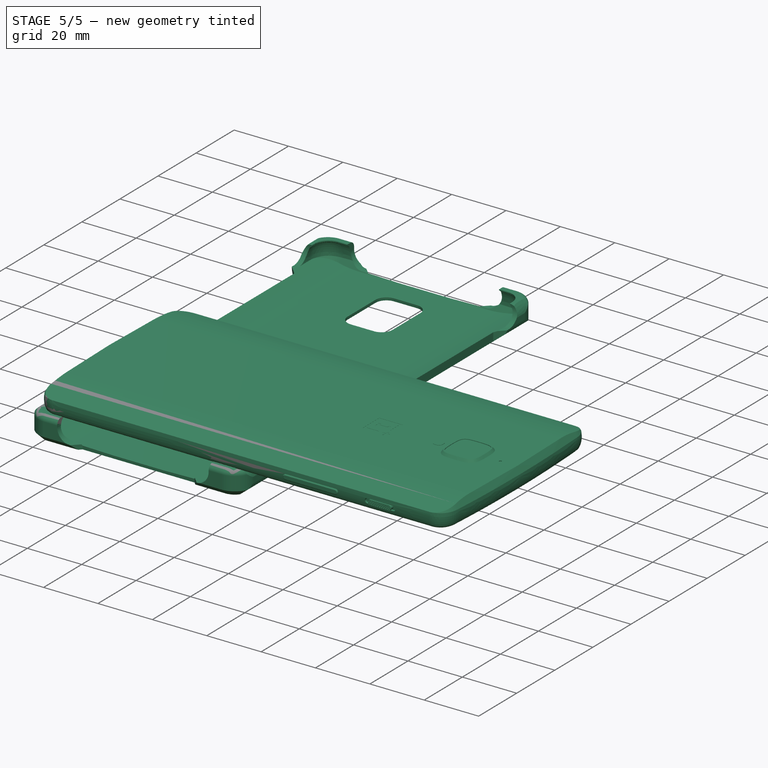
[diagram: stage 5 of 5 — iso view after this stage's code; geometry added in this stage tinted green]
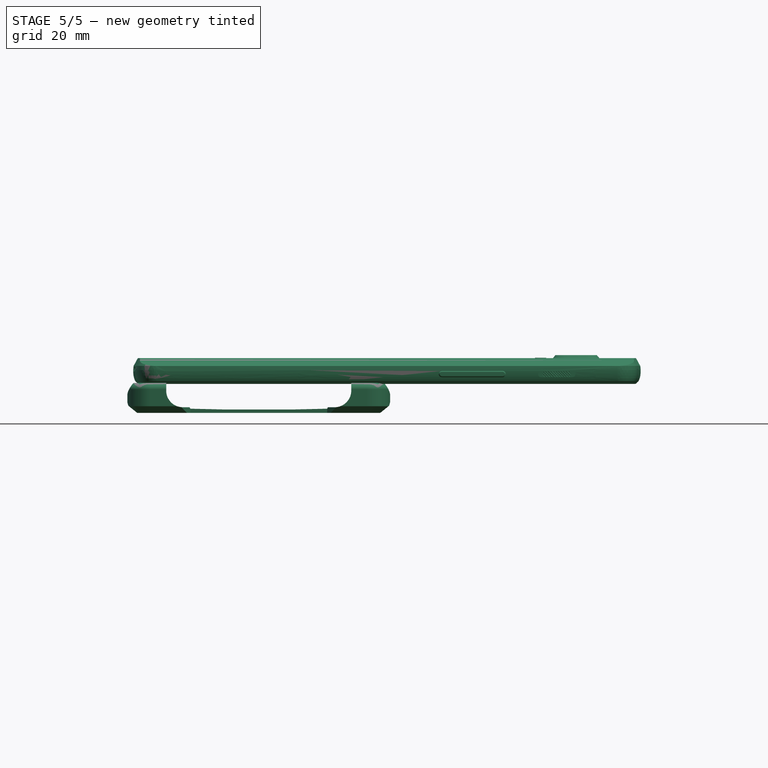
[diagram: stage 5 of 5 — front view after this stage's code; geometry added in this stage tinted green]
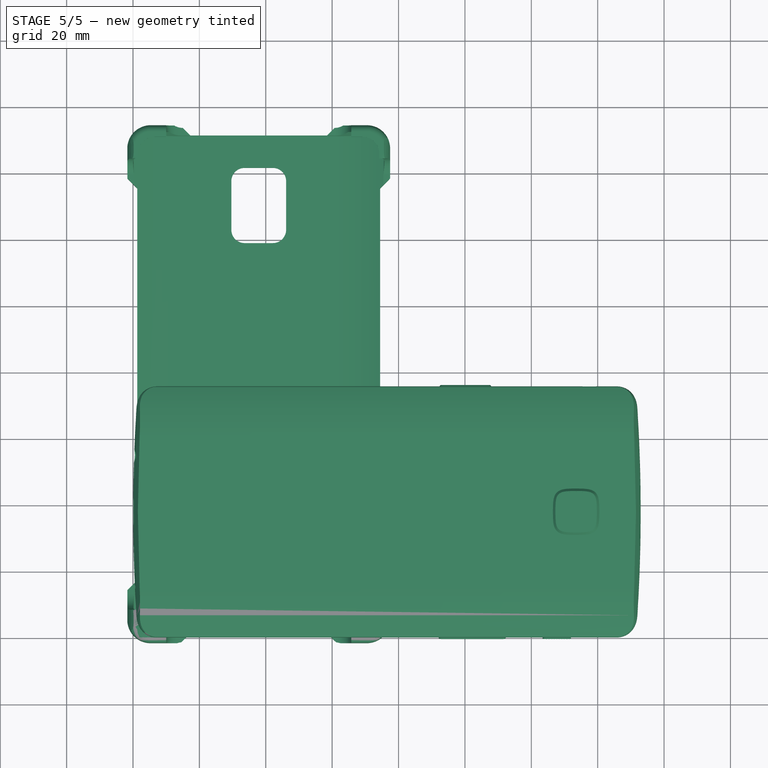
[diagram: stage 5 of 5 — top view after this stage's code; geometry added in this stage tinted green]
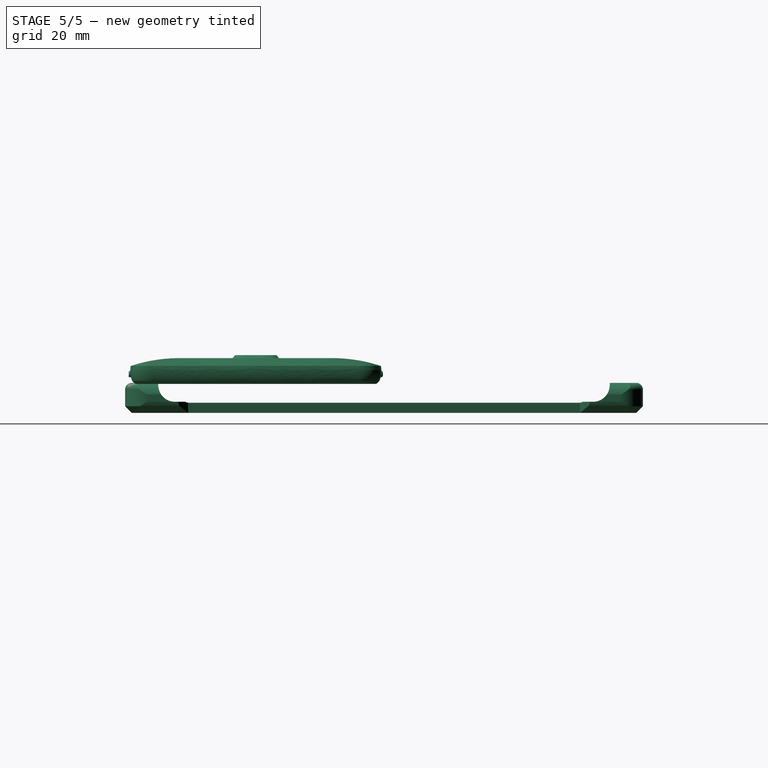
[diagram: stage 5 of 5 — right view after this stage's code; geometry added in this stage tinted green]
FEATURE [Sketcher::SketchObject] Sketch065
  MapMode = 5
  Placement = pos=(3.3e-11,37.875,0) rot=(0,0.707107,0.707107;3.14159rad)
  Support = -> [DatumPlane005]
  expr: Constraints[8] = Spreadsheet.HomeButtonBot
  expr: Constraints[7] = Spreadsheet.HomeButtonDepth
  expr: Constraints[5] = Spreadsheet.HomeButtonChamfer
  sketch-geometry (3):
    g0: LineSegment StartX=-4.8 StartY=0 StartZ=0 EndX=-5.1 EndY=0.45 EndZ=0
    g1: LineSegment StartX=-5.1 StartY=0.45 StartZ=0 EndX=-5.1 EndY=0 EndZ=0
    g2: LineSegment StartX=-5.1 StartY=0 StartZ=0 EndX=-4.8 EndY=0 EndZ=0
  constraints (9):
    c: PointOnObject(g0,g-1)
    c: Coincident(g0,g1)
    c: PointOnObject(g1,g-1)
    c: Coincident(g1,g2)
    c: Coincident(g2,g0)
    c: Distance(g2) = 0.3
    c: Vertical(g1)
    c: Distance(g1) = 0.45
    c: DistanceX(g1,g-1) = 5.1
FEATURE [PartDesign::SubtractivePipe] SubtractivePipe003
  AuxilleryCurvelinear = true
  AuxillerySpineTangent = false
  BaseFeature = -> Chamfer005
  Binormal = (0,0,0)
  Mode = 0
  Placement = pos=(0,0,0) rot=(0.57735,0.57735,0.57735;2.0944rad)
  Profile = -> Sketch065
  Refine = true
  Spine = -> Sketch062
  SpineTangent = false
  Transformation = 0
  Transition = 0
FEATURE [PartDesign::SubtractivePipe] SubtractivePipe004
  AuxilleryCurvelinear = true
  AuxillerySpineTangent = false
  BaseFeature = -> SubtractivePipe003
  Binormal = (0,0,0)
  Mode = 0
  Placement = pos=(0,0,0) rot=(0.57735,0.57735,0.57735;2.0944rad)
  Profile = -> Sketch055
  Spine = -> Sketch053 [Edge2]
  SpineTangent = false
  Transformation = 0
  Transition = 0
FEATURE [PartDesign::SubtractivePipe] SubtractivePipe005
  AuxilleryCurvelinear = true
  AuxillerySpineTangent = false
  BaseFeature = -> SubtractivePipe004
  Binormal = (0,0,0)
  Mode = 0
  Placement = pos=(0,0,0) rot=(0.57735,0.57735,0.57735;2.0944rad)
  Profile = -> Sketch054
  Spine = -> Sketch053 [Edge1]
  SpineTangent = false
  Transformation = 0
  Transition = 0
FEATURE [PartDesign::LinearPattern] LinearPattern001
  BaseFeature = -> SubtractivePipe005
  Direction = -> X_Axis002
  Length = 8.5
  Occurrences = 12
  Originals = -> [SubtractivePipe004,SubtractivePipe005]
  Placement = pos=(0,0,0) rot=(0.57735,0.57735,0.57735;2.0944rad)
  Reversed = true
  expr: Occurrences = Spreadsheet.NumRidges
  expr: Length = Spreadsheet.AlertLength
FEATURE [PartDesign::Body] Body002  label="OP004"
  Group = -> [Sketch036,Sketch039,Sketch037,Sketch038,DatumPlane003,DatumPlane004,DatumPlane005,DatumPlane,DatumPlane006,Sketch040,Sketch,Pad,SubtractivePipe,Sketch043,Pocket,Sketch044,Sketch046,Pocket003,Pocket001,Sketch045,Pocket002,LinearPattern,Sketch047,Pad001,Sketch048,Pocket004,Sketch049,Pocket005,Sketch050,Pad002,Sketch051,Pocket006,DatumPlane007,Sketch052,Pad003,DatumPlane008,Sketch053,DatumPlane009,+30 more]
  Origin = -> Origin002
  Tip = -> SubtractivePipe
FEATURE [Part::FeaturePython] Clone  label="BaseShape001"  # Draft clone (typed FeaturePython)
  AttacherType = Attacher::AttachEngine3D
  Fuse = false
  Objects = -> [SubtractivePipe]
  Scale = (1,1,1)
FEATURE [Part::FeaturePython] Clone003  label="Cut006"  # Draft clone (typed FeaturePython)
  AttacherType = Attacher::AttachEngine3D
  Fuse = false
  Objects = -> [Cut005]
  Scale = (1,1,1)
FEATURE [Part::Cut] Cut006  label="Cut007"
  Base = -> Clone003
  Refine = true
  Tool = -> Clone
FEATURE [Part::FeaturePython] Clone004  label="Cut008"  # Draft clone (typed FeaturePython)
  AttacherType = Attacher::AttachEngine3D
  Fuse = false
  Objects = -> [Cut006]
  Placement = pos=(0,0,0) rot=(1,0,0;4.71239rad)
  Scale = (1,1,1)
FEATURE [Part::Fillet] Fillet
  Base = -> Clone004
  Edges = 8 edges r=2: [Edge8,Edge82,Edge114,Edge123,Edge127,Edge134,Edge162,Edge166]
FEATURE [Part::Chamfer] Chamfer
  Base = -> Fillet
  Edges = 8 edges r=2: [Edge3,Edge12,Edge24,Edge26,Edge27,Edge29,Edge37,Edge38]
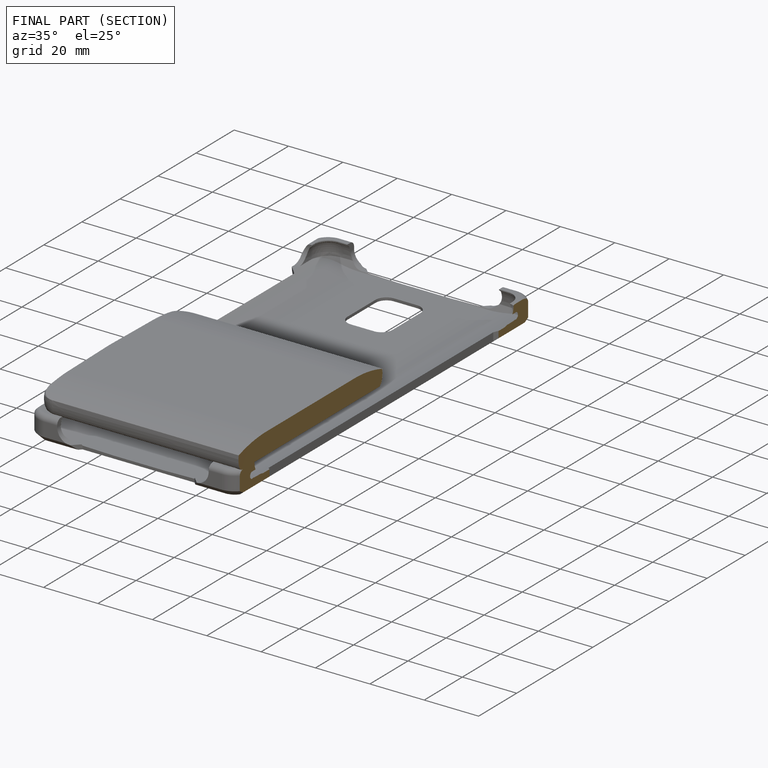
[diagram: finished part — half-section view (interior)]
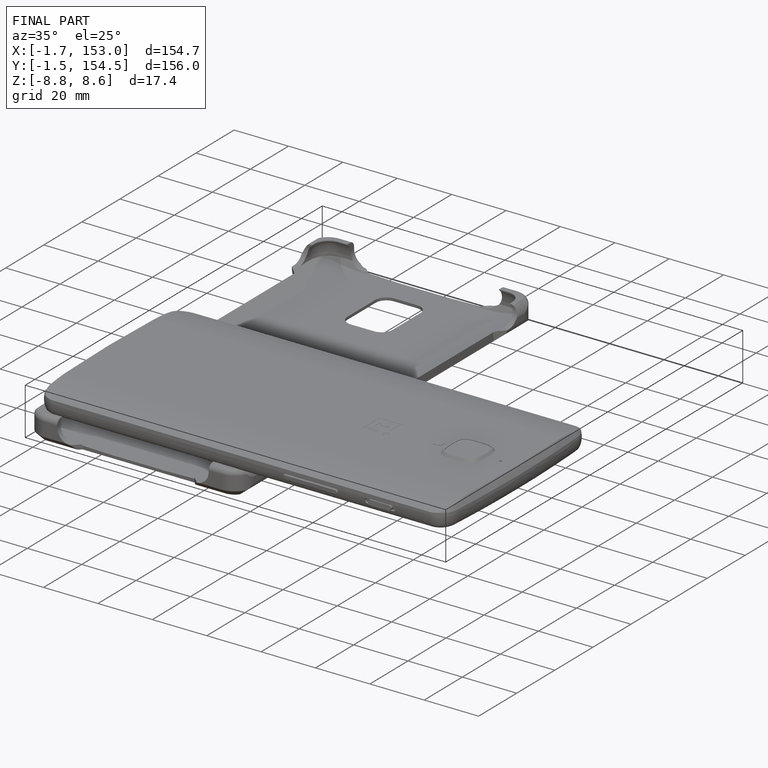
[diagram: finished part — iso view with bounding-box wireframe]
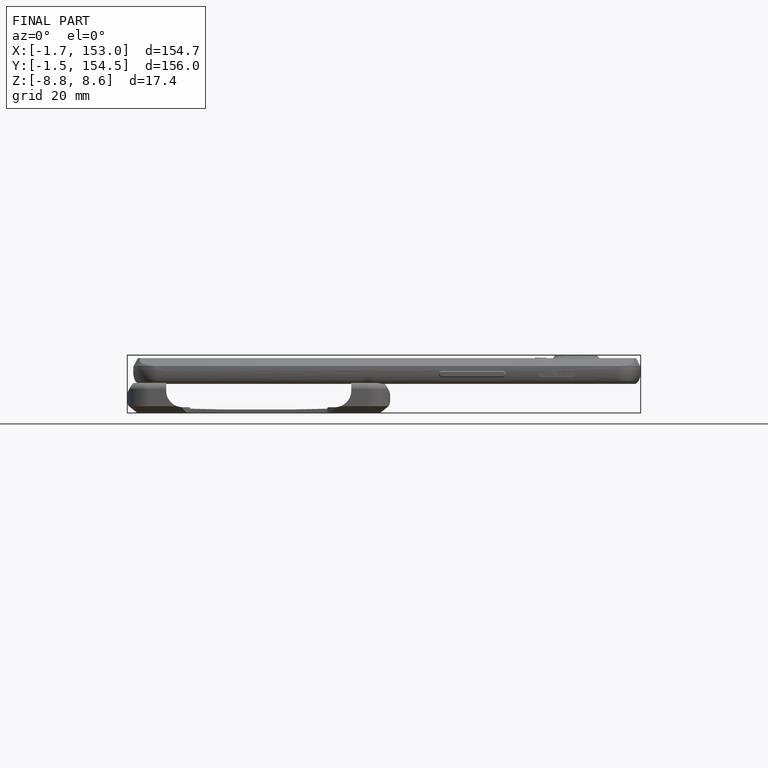
[diagram: finished part — front view with bounding-box wireframe]
